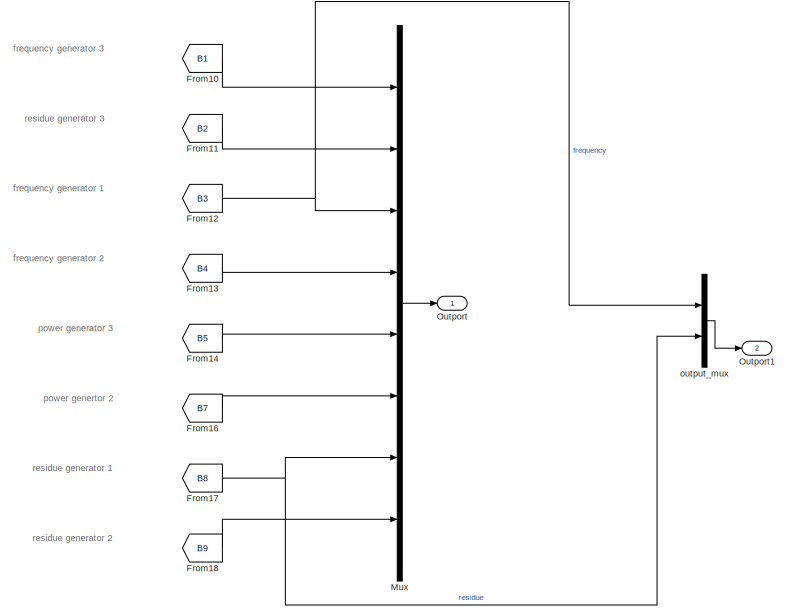
[diagram: root canvas - part 1/5, top right region]
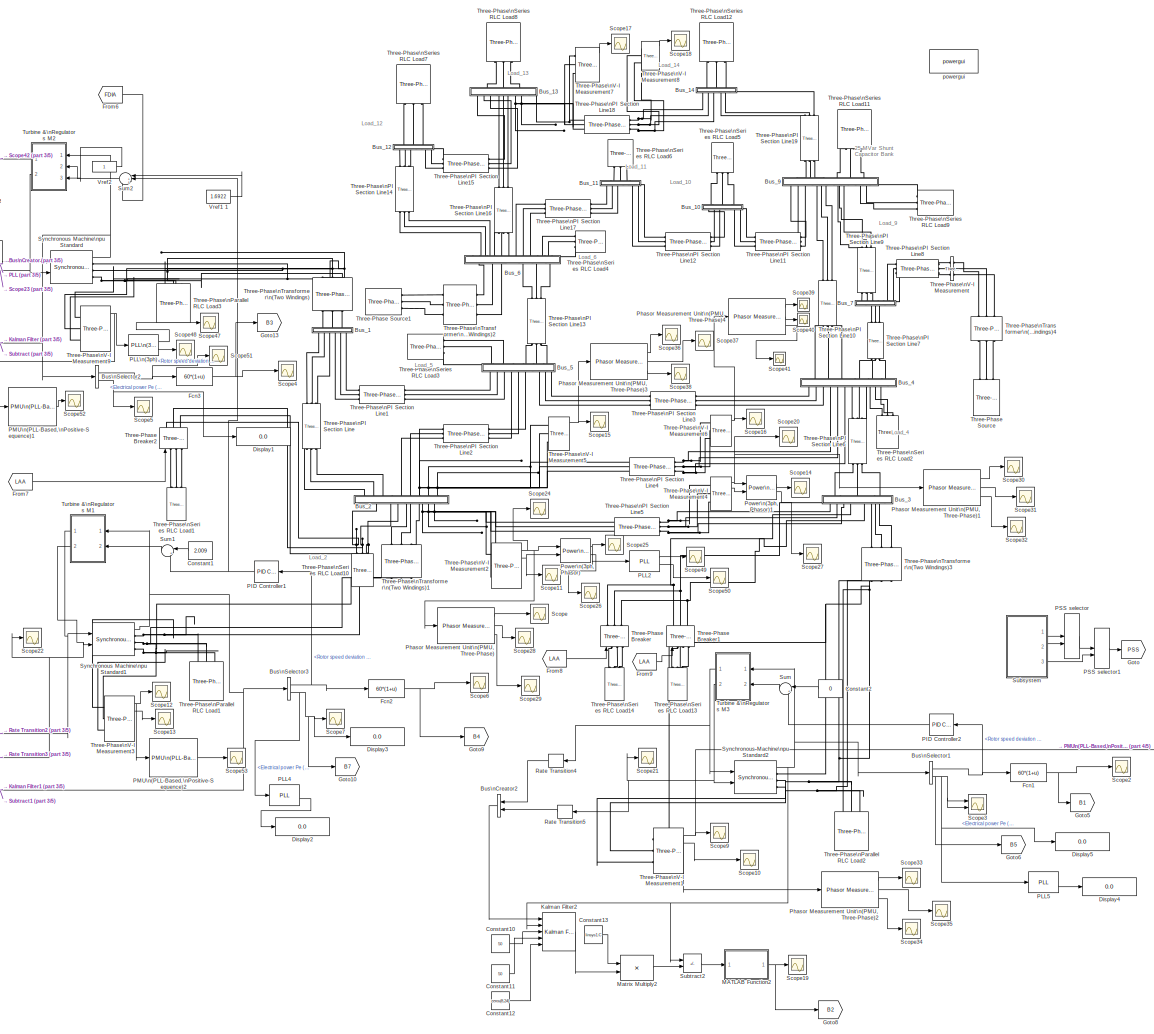
[diagram: root canvas - part 2/5, central region]
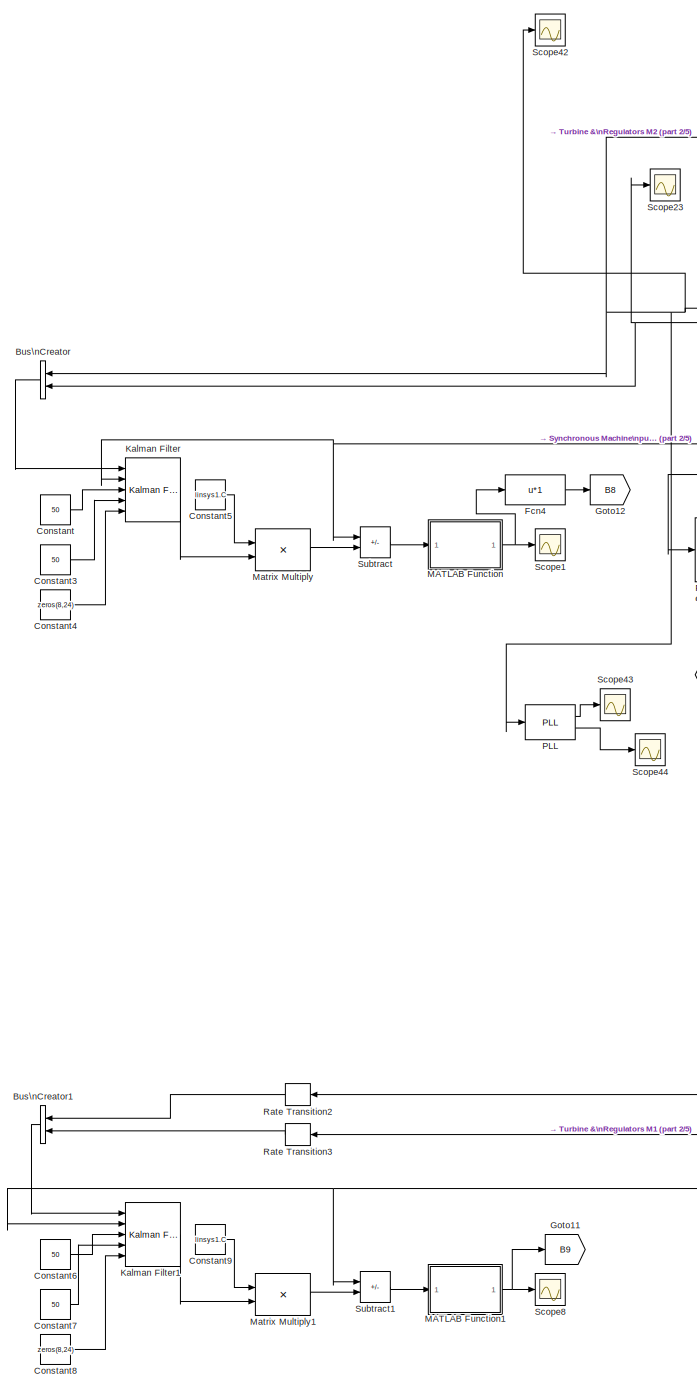
[diagram: root canvas - part 3/5, middle left region]
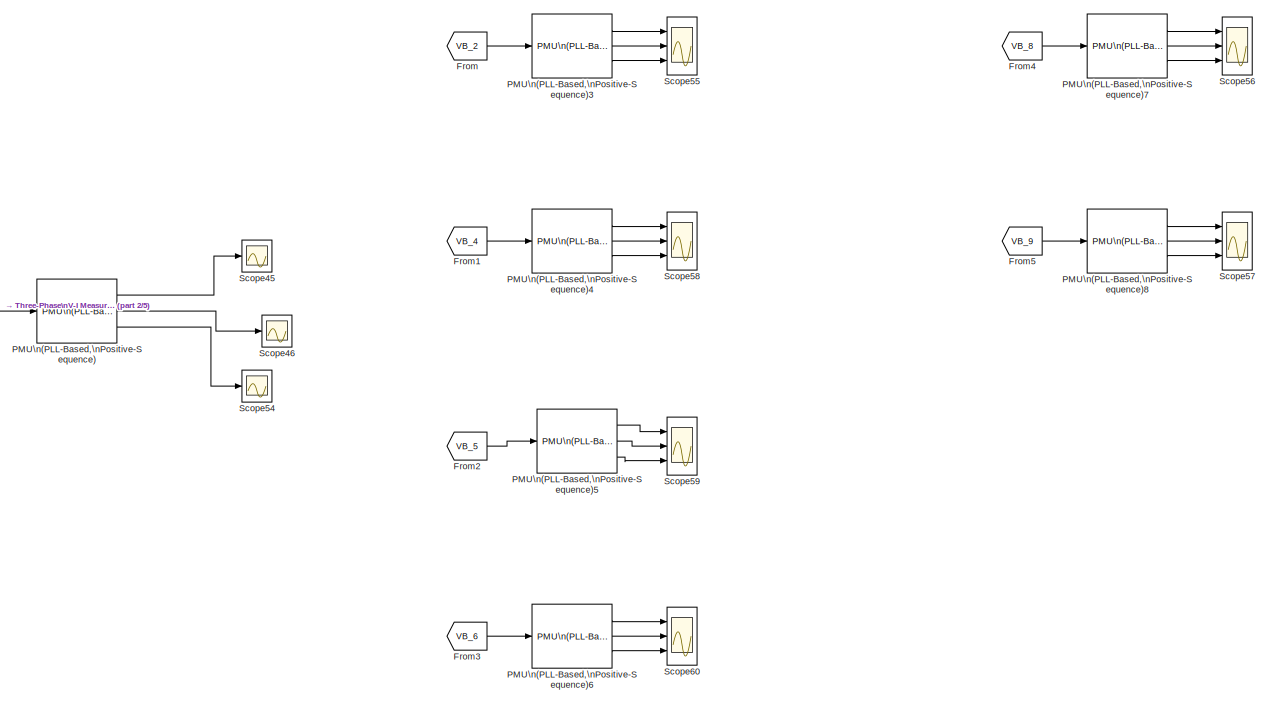
[diagram: root canvas - part 4/5, bottom right region]
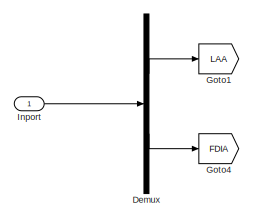
[diagram: root canvas - part 5/5, middle left region]
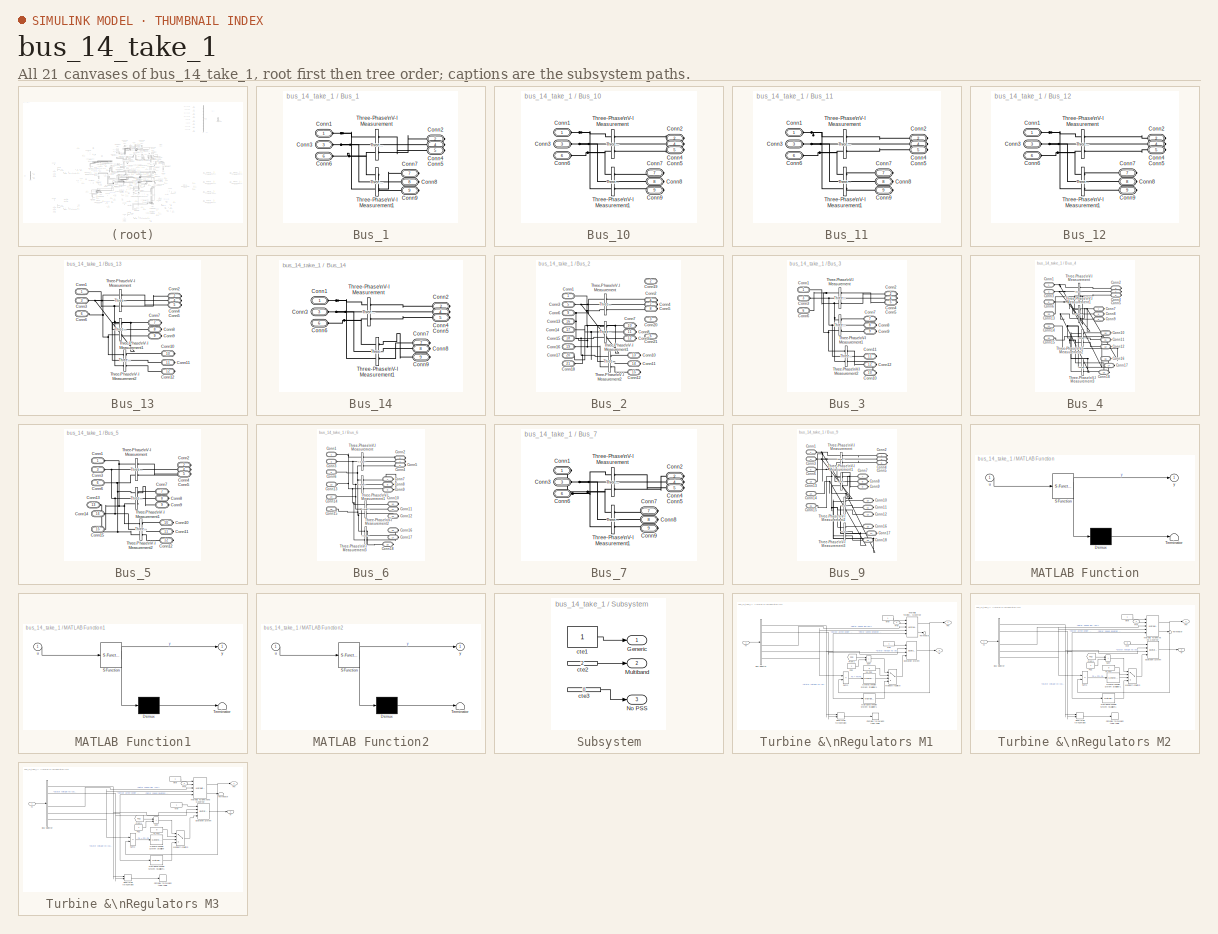
[diagram: thumbnail index - all 21 canvases of the model, root first then tree order]
MODEL bus_14_take_1
KIND model
BLOCK [BusCreator] Bus\nCreator
  DisplayOption = bar
  InheritFromInputs = on
  Inputs = 2
  NameLocation = top
  Ports = [2, 1]
  SID = 6
BLOCK [BusCreator] Bus\nCreator1
  DisplayOption = bar
  InheritFromInputs = on
  Inputs = 2
  NameLocation = top
  Ports = [2, 1]
  SID = 7
BLOCK [BusCreator] Bus\nCreator2
  DisplayOption = bar
  InheritFromInputs = on
  Inputs = 2
  NameLocation = top
  Ports = [2, 1]
  SID = 8
BLOCK [BusSelector] Bus\nSelector1
  OutputSignals = Mechanical.Rotor speed deviation  dw (pu),Mechanical.Electrical power  Pe (pu)
  Ports = [1, 2]
  SID = 9
BLOCK [BusSelector] Bus\nSelector2
  OutputSignals = Mechanical.Rotor speed deviation  dw (pu),Mechanical.Electrical power  Pe (pu)
  Ports = [1, 2]
  SID = 10
BLOCK [BusSelector] Bus\nSelector3
  OutputSignals = Mechanical.Rotor speed deviation  dw (pu),Mechanical.Electrical power  Pe (pu)
  Ports = [1, 2]
  SID = 11
BLOCK [SubSystem] Bus_1
  NameLocation = left
  Ports = [0, 0, 0, 0, 0, 3, 6]
  RequestExecContextInheritance = off
  SID = 12
BLOCK [PMIOPort] Bus_1/Conn1
  SID = 15
  Side = Left
BLOCK [PMIOPort] Bus_1/Conn2
  Port = 2
  SID = 16
  Side = Right
BLOCK [PMIOPort] Bus_1/Conn3
  Port = 3
  SID = 17
  Side = Left
BLOCK [PMIOPort] Bus_1/Conn4
  Port = 4
  SID = 18
  Side = Right
BLOCK [PMIOPort] Bus_1/Conn5
  Port = 5
  SID = 19
  Side = Right
BLOCK [PMIOPort] Bus_1/Conn6
  Port = 6
  SID = 20
  Side = Left
BLOCK [PMIOPort] Bus_1/Conn7
  Port = 7
  SID = 21
  Side = Right
BLOCK [PMIOPort] Bus_1/Conn8
  Port = 8
  SID = 22
  Side = Right
BLOCK [PMIOPort] Bus_1/Conn9
  Port = 9
  SID = 23
  Side = Right
BLOCK [Reference] Bus_1/Three-Phase\nV-I Measurement  REF=spsThreePhaseVIMeasurementLib/Three-Phase\nV-I Measurement
  CurrentMeasurement = yes
  Ipu = off
  LabelI = IB_1
  LabelV = VB_1
  OutputType = Complex
  PSBequivalent = 0
  Pbase = 100e6
  PhasorSimulation = off
  Ports = [0, 0, 0, 0, 0, 3, 3]
  RTWMemSecDataConstants = Inherit from model
  RTWMemSecDataInternal = Inherit from model
  RTWMemSecDataParameters = Inherit from model
  RTWMemSecFuncExecute = Inherit from model
  RTWMemSecFuncInitTerm = Inherit from model
  SID = 13
  SetLabelI = on
  SetLabelV = on
  SourceBlock = spsThreePhaseVIMeasurementLib/Three-Phase\nV-I Measurement
  SourceProductBaseCode = PS
  SourceType = Three-Phase VI Measurement
  Vbase = 500e3
  VoltageMeasurement = phase-to-phase
  Vpu = off
  VpuLL = off
BLOCK [Reference] Bus_1/Three-Phase\nV-I Measurement1  REF=spsThreePhaseVIMeasurementLib/Three-Phase\nV-I Measurement
  CurrentMeasurement = yes
  Ipu = off
  LabelI = I_B1
  LabelV = V_B1
  OutputType = Complex
  PSBequivalent = 0
  Pbase = 100e6
  PhasorSimulation = off
  Ports = [0, 0, 0, 0, 0, 3, 3]
  RTWMemSecDataConstants = Inherit from model
  RTWMemSecDataInternal = Inherit from model
  RTWMemSecDataParameters = Inherit from model
  RTWMemSecFuncExecute = Inherit from model
  RTWMemSecFuncInitTerm = Inherit from model
  SID = 14
  SetLabelI = on
  SetLabelV = on
  SourceBlock = spsThreePhaseVIMeasurementLib/Three-Phase\nV-I Measurement
  SourceProductBaseCode = PS
  SourceType = Three-Phase VI Measurement
  Vbase = 500e3
  VoltageMeasurement = phase-to-phase
  Vpu = off
  VpuLL = off
BLOCK [SubSystem] Bus_10
  NameLocation = left
  Ports = [0, 0, 0, 0, 0, 3, 6]
  RequestExecContextInheritance = off
  SID = 24
BLOCK [PMIOPort] Bus_10/Conn1
  SID = 27
  Side = Left
BLOCK [PMIOPort] Bus_10/Conn2
  Port = 2
  SID = 28
  Side = Right
BLOCK [PMIOPort] Bus_10/Conn3
  Port = 3
  SID = 29
  Side = Left
BLOCK [PMIOPort] Bus_10/Conn4
  Port = 4
  SID = 30
  Side = Right
BLOCK [PMIOPort] Bus_10/Conn5
  Port = 5
  SID = 31
  Side = Right
BLOCK [PMIOPort] Bus_10/Conn6
  Port = 6
  SID = 32
  Side = Left
BLOCK [PMIOPort] Bus_10/Conn7
  Port = 7
  SID = 33
  Side = Right
BLOCK [PMIOPort] Bus_10/Conn8
  Port = 8
  SID = 34
  Side = Right
BLOCK [PMIOPort] Bus_10/Conn9
  Port = 9
  SID = 35
  Side = Right
BLOCK [Reference] Bus_10/Three-Phase\nV-I Measurement  REF=spsThreePhaseVIMeasurementLib/Three-Phase\nV-I Measurement
  CurrentMeasurement = yes
  Ipu = off
  LabelI = IB_10
  LabelV = VB_10
  OutputType = Complex
  PSBequivalent = 0
  Pbase = 100e6
  PhasorSimulation = off
  Ports = [0, 0, 0, 0, 0, 3, 3]
  RTWMemSecDataConstants = Inherit from model
  RTWMemSecDataInternal = Inherit from model
  RTWMemSecDataParameters = Inherit from model
  RTWMemSecFuncExecute = Inherit from model
  RTWMemSecFuncInitTerm = Inherit from model
  SID = 25
  SetLabelI = on
  SetLabelV = on
  SourceBlock = spsThreePhaseVIMeasurementLib/Three-Phase\nV-I Measurement
  SourceProductBaseCode = PS
  SourceType = Three-Phase VI Measurement
  Vbase = 500e3
  VoltageMeasurement = phase-to-phase
  Vpu = off
  VpuLL = off
BLOCK [Reference] Bus_10/Three-Phase\nV-I Measurement1  REF=spsThreePhaseVIMeasurementLib/Three-Phase\nV-I Measurement
  CurrentMeasurement = yes
  Ipu = off
  LabelI = I_B10
  LabelV = V_B10
  OutputType = Complex
  PSBequivalent = 0
  Pbase = 100e6
  PhasorSimulation = off
  Ports = [0, 0, 0, 0, 0, 3, 3]
  RTWMemSecDataConstants = Inherit from model
  RTWMemSecDataInternal = Inherit from model
  RTWMemSecDataParameters = Inherit from model
  RTWMemSecFuncExecute = Inherit from model
  RTWMemSecFuncInitTerm = Inherit from model
  SID = 26
  SetLabelI = on
  SetLabelV = on
  SourceBlock = spsThreePhaseVIMeasurementLib/Three-Phase\nV-I Measurement
  SourceProductBaseCode = PS
  SourceType = Three-Phase VI Measurement
  Vbase = 500e3
  VoltageMeasurement = phase-to-phase
  Vpu = off
  VpuLL = off
BLOCK [SubSystem] Bus_11
  NameLocation = left
  Ports = [0, 0, 0, 0, 0, 3, 6]
  RequestExecContextInheritance = off
  SID = 36
BLOCK [PMIOPort] Bus_11/Conn1
  SID = 39
  Side = Left
BLOCK [PMIOPort] Bus_11/Conn2
  Port = 2
  SID = 40
  Side = Right
BLOCK [PMIOPort] Bus_11/Conn3
  Port = 3
  SID = 41
  Side = Left
BLOCK [PMIOPort] Bus_11/Conn4
  Port = 4
  SID = 42
  Side = Right
BLOCK [PMIOPort] Bus_11/Conn5
  Port = 5
  SID = 43
  Side = Right
BLOCK [PMIOPort] Bus_11/Conn6
  Port = 6
  SID = 44
  Side = Left
BLOCK [PMIOPort] Bus_11/Conn7
  Port = 7
  SID = 45
  Side = Right
BLOCK [PMIOPort] Bus_11/Conn8
  Port = 8
  SID = 46
  Side = Right
BLOCK [PMIOPort] Bus_11/Conn9
  Port = 9
  SID = 47
  Side = Right
BLOCK [Reference] Bus_11/Three-Phase\nV-I Measurement  REF=spsThreePhaseVIMeasurementLib/Three-Phase\nV-I Measurement
  CurrentMeasurement = yes
  Ipu = off
  LabelI = IB_11
  LabelV = VB_11
  OutputType = Complex
  PSBequivalent = 0
  Pbase = 100e6
  PhasorSimulation = off
  Ports = [0, 0, 0, 0, 0, 3, 3]
  RTWMemSecDataConstants = Inherit from model
  RTWMemSecDataInternal = Inherit from model
  RTWMemSecDataParameters = Inherit from model
  RTWMemSecFuncExecute = Inherit from model
  RTWMemSecFuncInitTerm = Inherit from model
  SID = 37
  SetLabelI = on
  SetLabelV = on
  SourceBlock = spsThreePhaseVIMeasurementLib/Three-Phase\nV-I Measurement
  SourceProductBaseCode = PS
  SourceType = Three-Phase VI Measurement
  Vbase = 500e3
  VoltageMeasurement = phase-to-phase
  Vpu = off
  VpuLL = off
BLOCK [Reference] Bus_11/Three-Phase\nV-I Measurement1  REF=spsThreePhaseVIMeasurementLib/Three-Phase\nV-I Measurement
  CurrentMeasurement = yes
  Ipu = off
  LabelI = I_B11
  LabelV = V_B11
  OutputType = Complex
  PSBequivalent = 0
  Pbase = 100e6
  PhasorSimulation = off
  Ports = [0, 0, 0, 0, 0, 3, 3]
  RTWMemSecDataConstants = Inherit from model
  RTWMemSecDataInternal = Inherit from model
  RTWMemSecDataParameters = Inherit from model
  RTWMemSecFuncExecute = Inherit from model
  RTWMemSecFuncInitTerm = Inherit from model
  SID = 38
  SetLabelI = on
  SetLabelV = on
  SourceBlock = spsThreePhaseVIMeasurementLib/Three-Phase\nV-I Measurement
  SourceProductBaseCode = PS
  SourceType = Three-Phase VI Measurement
  Vbase = 500e3
  VoltageMeasurement = phase-to-phase
  Vpu = off
  VpuLL = off
BLOCK [SubSystem] Bus_12
  NameLocation = left
  Ports = [0, 0, 0, 0, 0, 3, 6]
  RequestExecContextInheritance = off
  SID = 48
BLOCK [PMIOPort] Bus_12/Conn1
  SID = 51
  Side = Left
BLOCK [PMIOPort] Bus_12/Conn2
  Port = 2
  SID = 52
  Side = Right
BLOCK [PMIOPort] Bus_12/Conn3
  Port = 3
  SID = 53
  Side = Left
BLOCK [PMIOPort] Bus_12/Conn4
  Port = 4
  SID = 54
  Side = Right
BLOCK [PMIOPort] Bus_12/Conn5
  Port = 5
  SID = 55
  Side = Right
BLOCK [PMIOPort] Bus_12/Conn6
  Port = 6
  SID = 56
  Side = Left
BLOCK [PMIOPort] Bus_12/Conn7
  Port = 7
  SID = 57
  Side = Right
BLOCK [PMIOPort] Bus_12/Conn8
  Port = 8
  SID = 58
  Side = Right
BLOCK [PMIOPort] Bus_12/Conn9
  Port = 9
  SID = 59
  Side = Right
BLOCK [Reference] Bus_12/Three-Phase\nV-I Measurement  REF=spsThreePhaseVIMeasurementLib/Three-Phase\nV-I Measurement
  CurrentMeasurement = yes
  Ipu = off
  LabelI = IB_12
  LabelV = VB_12
  OutputType = Complex
  PSBequivalent = 0
  Pbase = 100e6
  PhasorSimulation = off
  Ports = [0, 0, 0, 0, 0, 3, 3]
  RTWMemSecDataConstants = Inherit from model
  RTWMemSecDataInternal = Inherit from model
  RTWMemSecDataParameters = Inherit from model
  RTWMemSecFuncExecute = Inherit from model
  RTWMemSecFuncInitTerm = Inherit from model
  SID = 49
  SetLabelI = on
  SetLabelV = on
  SourceBlock = spsThreePhaseVIMeasurementLib/Three-Phase\nV-I Measurement
  SourceProductBaseCode = PS
  SourceType = Three-Phase VI Measurement
  Vbase = 500e3
  VoltageMeasurement = phase-to-phase
  Vpu = off
  VpuLL = off
BLOCK [Reference] Bus_12/Three-Phase\nV-I Measurement1  REF=spsThreePhaseVIMeasurementLib/Three-Phase\nV-I Measurement
  CurrentMeasurement = yes
  Ipu = off
  LabelI = I_B12
  LabelV = V_B12
  OutputType = Complex
  PSBequivalent = 0
  Pbase = 100e6
  PhasorSimulation = off
  Ports = [0, 0, 0, 0, 0, 3, 3]
  RTWMemSecDataConstants = Inherit from model
  RTWMemSecDataInternal = Inherit from model
  RTWMemSecDataParameters = Inherit from model
  RTWMemSecFuncExecute = Inherit from model
  RTWMemSecFuncInitTerm = Inherit from model
  SID = 50
  SetLabelI = on
  SetLabelV = on
  SourceBlock = spsThreePhaseVIMeasurementLib/Three-Phase\nV-I Measurement
  SourceProductBaseCode = PS
  SourceType = Three-Phase VI Measurement
  Vbase = 500e3
  VoltageMeasurement = phase-to-phase
  Vpu = off
  VpuLL = off
BLOCK [SubSystem] Bus_13
  NameLocation = left
  Ports = [0, 0, 0, 0, 0, 3, 9]
  RequestExecContextInheritance = off
  SID = 60
BLOCK [PMIOPort] Bus_13/Conn1
  SID = 64
  Side = Left
BLOCK [PMIOPort] Bus_13/Conn10
  Port = 10
  SID = 73
  Side = Right
BLOCK [PMIOPort] Bus_13/Conn11
  Port = 11
  SID = 74
  Side = Right
BLOCK [PMIOPort] Bus_13/Conn12
  Port = 12
  SID = 75
  Side = Right
BLOCK [PMIOPort] Bus_13/Conn2
  Port = 2
  SID = 65
  Side = Right
BLOCK [PMIOPort] Bus_13/Conn3
  Port = 3
  SID = 66
  Side = Left
BLOCK [PMIOPort] Bus_13/Conn4
  Port = 4
  SID = 67
  Side = Right
BLOCK [PMIOPort] Bus_13/Conn5
  Port = 5
  SID = 68
  Side = Right
BLOCK [PMIOPort] Bus_13/Conn6
  Port = 6
  SID = 69
  Side = Left
BLOCK [PMIOPort] Bus_13/Conn7
  Port = 7
  SID = 70
  Side = Right
BLOCK [PMIOPort] Bus_13/Conn8
  Port = 8
  SID = 71
  Side = Right
BLOCK [PMIOPort] Bus_13/Conn9
  Port = 9
  SID = 72
  Side = Right
BLOCK [Reference] Bus_13/Three-Phase\nV-I Measurement  REF=spsThreePhaseVIMeasurementLib/Three-Phase\nV-I Measurement
  CurrentMeasurement = yes
  Ipu = off
  LabelI = IB_13
  LabelV = VB_13
  OutputType = Complex
  PSBequivalent = 0
  Pbase = 100e6
  PhasorSimulation = off
  Ports = [0, 0, 0, 0, 0, 3, 3]
  RTWMemSecDataConstants = Inherit from model
  RTWMemSecDataInternal = Inherit from model
  RTWMemSecDataParameters = Inherit from model
  RTWMemSecFuncExecute = Inherit from model
  RTWMemSecFuncInitTerm = Inherit from model
  SID = 61
  SetLabelI = on
  SetLabelV = on
  SourceBlock = spsThreePhaseVIMeasurementLib/Three-Phase\nV-I Measurement
  SourceProductBaseCode = PS
  SourceType = Three-Phase VI Measurement
  Vbase = 500e3
  VoltageMeasurement = phase-to-phase
  Vpu = off
  VpuLL = off
BLOCK [Reference] Bus_13/Three-Phase\nV-I Measurement1  REF=spsThreePhaseVIMeasurementLib/Three-Phase\nV-I Measurement
  CurrentMeasurement = yes
  Ipu = off
  LabelI = I_B13_13
  LabelV = V_B13_13
  OutputType = Complex
  PSBequivalent = 0
  Pbase = 100e6
  PhasorSimulation = off
  Ports = [0, 0, 0, 0, 0, 3, 3]
  RTWMemSecDataConstants = Inherit from model
  RTWMemSecDataInternal = Inherit from model
  RTWMemSecDataParameters = Inherit from model
  RTWMemSecFuncExecute = Inherit from model
  RTWMemSecFuncInitTerm = Inherit from model
  SID = 62
  SetLabelI = on
  SetLabelV = on
  SourceBlock = spsThreePhaseVIMeasurementLib/Three-Phase\nV-I Measurement
  SourceProductBaseCode = PS
  SourceType = Three-Phase VI Measurement
  Vbase = 500e3
  VoltageMeasurement = phase-to-phase
  Vpu = off
  VpuLL = off
BLOCK [Reference] Bus_13/Three-Phase\nV-I Measurement2  REF=spsThreePhaseVIMeasurementLib/Three-Phase\nV-I Measurement
  CurrentMeasurement = yes
  Ipu = off
  LabelI = I_B13
  LabelV = V_B13
  OutputType = Complex
  PSBequivalent = 0
  Pbase = 100e6
  PhasorSimulation = off
  Ports = [0, 0, 0, 0, 0, 3, 3]
  RTWMemSecDataConstants = Inherit from model
  RTWMemSecDataInternal = Inherit from model
  RTWMemSecDataParameters = Inherit from model
  RTWMemSecFuncExecute = Inherit from model
  RTWMemSecFuncInitTerm = Inherit from model
  SID = 63
  SetLabelI = on
  SetLabelV = on
  SourceBlock = spsThreePhaseVIMeasurementLib/Three-Phase\nV-I Measurement
  SourceProductBaseCode = PS
  SourceType = Three-Phase VI Measurement
  Vbase = 500e3
  VoltageMeasurement = phase-to-phase
  Vpu = off
  VpuLL = off
BLOCK [SubSystem] Bus_14
  NameLocation = left
  Ports = [0, 0, 0, 0, 0, 3, 6]
  RequestExecContextInheritance = off
  SID = 76
BLOCK [PMIOPort] Bus_14/Conn1
  SID = 79
  Side = Left
BLOCK [PMIOPort] Bus_14/Conn2
  Port = 2
  SID = 80
  Side = Right
BLOCK [PMIOPort] Bus_14/Conn3
  Port = 3
  SID = 81
  Side = Left
BLOCK [PMIOPort] Bus_14/Conn4
  Port = 4
  SID = 82
  Side = Right
BLOCK [PMIOPort] Bus_14/Conn5
  Port = 5
  SID = 83
  Side = Right
BLOCK [PMIOPort] Bus_14/Conn6
  Port = 6
  SID = 84
  Side = Left
BLOCK [PMIOPort] Bus_14/Conn7
  Port = 7
  SID = 85
  Side = Right
BLOCK [PMIOPort] Bus_14/Conn8
  Port = 8
  SID = 86
  Side = Right
BLOCK [PMIOPort] Bus_14/Conn9
  Port = 9
  SID = 87
  Side = Right
BLOCK [Reference] Bus_14/Three-Phase\nV-I Measurement  REF=spsThreePhaseVIMeasurementLib/Three-Phase\nV-I Measurement
  CurrentMeasurement = yes
  Ipu = off
  LabelI = IB_14
  LabelV = VB_14
  OutputType = Complex
  PSBequivalent = 0
  Pbase = 100e6
  PhasorSimulation = off
  Ports = [0, 0, 0, 0, 0, 3, 3]
  RTWMemSecDataConstants = Inherit from model
  RTWMemSecDataInternal = Inherit from model
  RTWMemSecDataParameters = Inherit from model
  RTWMemSecFuncExecute = Inherit from model
  RTWMemSecFuncInitTerm = Inherit from model
  SID = 77
  SetLabelI = on
  SetLabelV = on
  SourceBlock = spsThreePhaseVIMeasurementLib/Three-Phase\nV-I Measurement
  SourceProductBaseCode = PS
  SourceType = Three-Phase VI Measurement
  Vbase = 500e3
  VoltageMeasurement = phase-to-phase
  Vpu = off
  VpuLL = off
BLOCK [Reference] Bus_14/Three-Phase\nV-I Measurement1  REF=spsThreePhaseVIMeasurementLib/Three-Phase\nV-I Measurement
  CurrentMeasurement = yes
  Ipu = off
  LabelI = I_B14
  LabelV = V_B14
  OutputType = Complex
  PSBequivalent = 0
  Pbase = 100e6
  PhasorSimulation = off
  Ports = [0, 0, 0, 0, 0, 3, 3]
  RTWMemSecDataConstants = Inherit from model
  RTWMemSecDataInternal = Inherit from model
  RTWMemSecDataParameters = Inherit from model
  RTWMemSecFuncExecute = Inherit from model
  RTWMemSecFuncInitTerm = Inherit from model
  SID = 78
  SetLabelI = on
  SetLabelV = on
  SourceBlock = spsThreePhaseVIMeasurementLib/Three-Phase\nV-I Measurement
  SourceProductBaseCode = PS
  SourceType = Three-Phase VI Measurement
  Vbase = 500e3
  VoltageMeasurement = phase-to-phase
  Vpu = off
  VpuLL = off
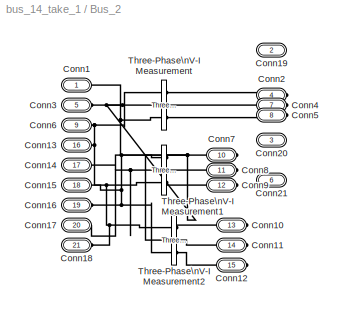
BLOCK [SubSystem] Bus_2
  NameLocation = left
  Ports = [0, 0, 0, 0, 0, 9, 12]
  RequestExecContextInheritance = off
  SID = 88
BLOCK [PMIOPort] Bus_2/Conn1
  SID = 92
  Side = Left
BLOCK [PMIOPort] Bus_2/Conn10
  Port = 13
  SID = 104
  Side = Right
BLOCK [PMIOPort] Bus_2/Conn11
  Port = 14
  SID = 105
  Side = Right
BLOCK [PMIOPort] Bus_2/Conn12
  Port = 15
  SID = 106
  Side = Right
BLOCK [PMIOPort] Bus_2/Conn13
  Port = 16
  SID = 107
  Side = Left
BLOCK [PMIOPort] Bus_2/Conn14
  Port = 17
  SID = 108
  Side = Left
BLOCK [PMIOPort] Bus_2/Conn15
  Port = 18
  SID = 109
  Side = Left
BLOCK [PMIOPort] Bus_2/Conn16
  Port = 19
  SID = 110
  Side = Left
BLOCK [PMIOPort] Bus_2/Conn17
  Port = 20
  SID = 111
  Side = Left
BLOCK [PMIOPort] Bus_2/Conn18
  Port = 21
  SID = 112
  Side = Left
BLOCK [PMIOPort] Bus_2/Conn19
  Port = 2
  SID = 93
  Side = Right
BLOCK [PMIOPort] Bus_2/Conn2
  Port = 4
  SID = 95
  Side = Right
BLOCK [PMIOPort] Bus_2/Conn20
  Port = 3
  SID = 94
  Side = Right
BLOCK [PMIOPort] Bus_2/Conn21
  Port = 6
  SID = 97
  Side = Right
BLOCK [PMIOPort] Bus_2/Conn3
  Port = 5
  SID = 96
  Side = Left
BLOCK [PMIOPort] Bus_2/Conn4
  Port = 7
  SID = 98
  Side = Right
BLOCK [PMIOPort] Bus_2/Conn5
  Port = 8
  SID = 99
  Side = Right
BLOCK [PMIOPort] Bus_2/Conn6
  Port = 9
  SID = 100
  Side = Left
BLOCK [PMIOPort] Bus_2/Conn7
  Port = 10
  SID = 101
  Side = Right
BLOCK [PMIOPort] Bus_2/Conn8
  Port = 11
  SID = 102
  Side = Right
BLOCK [PMIOPort] Bus_2/Conn9
  Port = 12
  SID = 103
  Side = Right
BLOCK [Reference] Bus_2/Three-Phase\nV-I Measurement  REF=spsThreePhaseVIMeasurementLib/Three-Phase\nV-I Measurement
  CurrentMeasurement = yes
  Ipu = off
  LabelI = IB_2
  LabelV = VB_2
  OutputType = Complex
  PSBequivalent = 0
  Pbase = 100e6
  PhasorSimulation = off
  Ports = [0, 0, 0, 0, 0, 3, 3]
  RTWMemSecDataConstants = Inherit from model
  RTWMemSecDataInternal = Inherit from model
  RTWMemSecDataParameters = Inherit from model
  RTWMemSecFuncExecute = Inherit from model
  RTWMemSecFuncInitTerm = Inherit from model
  SID = 89
  SetLabelI = on
  SetLabelV = on
  SourceBlock = spsThreePhaseVIMeasurementLib/Three-Phase\nV-I Measurement
  SourceProductBaseCode = PS
  SourceType = Three-Phase VI Measurement
  Vbase = 500e3
  VoltageMeasurement = phase-to-phase
  Vpu = off
  VpuLL = off
BLOCK [Reference] Bus_2/Three-Phase\nV-I Measurement1  REF=spsThreePhaseVIMeasurementLib/Three-Phase\nV-I Measurement
  CurrentMeasurement = yes
  Ipu = off
  LabelI = I_B22
  LabelV = V_B22
  OutputType = Complex
  PSBequivalent = 0
  Pbase = 100e6
  PhasorSimulation = off
  Ports = [0, 0, 0, 0, 0, 3, 3]
  RTWMemSecDataConstants = Inherit from model
  RTWMemSecDataInternal = Inherit from model
  RTWMemSecDataParameters = Inherit from model
  RTWMemSecFuncExecute = Inherit from model
  RTWMemSecFuncInitTerm = Inherit from model
  SID = 90
  SetLabelI = on
  SetLabelV = on
  SourceBlock = spsThreePhaseVIMeasurementLib/Three-Phase\nV-I Measurement
  SourceProductBaseCode = PS
  SourceType = Three-Phase VI Measurement
  Vbase = 500e3
  VoltageMeasurement = phase-to-phase
  Vpu = off
  VpuLL = off
BLOCK [Reference] Bus_2/Three-Phase\nV-I Measurement2  REF=spsThreePhaseVIMeasurementLib/Three-Phase\nV-I Measurement
  CurrentMeasurement = yes
  Ipu = off
  LabelI = I_B2
  LabelV = V_B2
  OutputType = Complex
  PSBequivalent = 0
  Pbase = 100e6
  PhasorSimulation = off
  Ports = [0, 0, 0, 0, 0, 3, 3]
  RTWMemSecDataConstants = Inherit from model
  RTWMemSecDataInternal = Inherit from model
  RTWMemSecDataParameters = Inherit from model
  RTWMemSecFuncExecute = Inherit from model
  RTWMemSecFuncInitTerm = Inherit from model
  SID = 91
  SetLabelI = on
  SetLabelV = on
  SourceBlock = spsThreePhaseVIMeasurementLib/Three-Phase\nV-I Measurement
  SourceProductBaseCode = PS
  SourceType = Three-Phase VI Measurement
  Vbase = 500e3
  VoltageMeasurement = phase-to-phase
  Vpu = off
  VpuLL = off
BLOCK [SubSystem] Bus_3
  NameLocation = left
  Ports = [0, 0, 0, 0, 0, 3, 9]
  RequestExecContextInheritance = off
  SID = 113
BLOCK [PMIOPort] Bus_3/Conn1
  SID = 117
  Side = Left
BLOCK [PMIOPort] Bus_3/Conn10
  Port = 10
  SID = 126
  Side = Right
BLOCK [PMIOPort] Bus_3/Conn11
  Port = 11
  SID = 127
  Side = Right
BLOCK [PMIOPort] Bus_3/Conn12
  Port = 12
  SID = 128
  Side = Right
BLOCK [PMIOPort] Bus_3/Conn2
  Port = 2
  SID = 118
  Side = Right
BLOCK [PMIOPort] Bus_3/Conn3
  Port = 3
  SID = 119
  Side = Left
BLOCK [PMIOPort] Bus_3/Conn4
  Port = 4
  SID = 120
  Side = Right
BLOCK [PMIOPort] Bus_3/Conn5
  Port = 5
  SID = 121
  Side = Right
BLOCK [PMIOPort] Bus_3/Conn6
  Port = 6
  SID = 122
  Side = Left
BLOCK [PMIOPort] Bus_3/Conn7
  Port = 7
  SID = 123
  Side = Right
BLOCK [PMIOPort] Bus_3/Conn8
  Port = 8
  SID = 124
  Side = Right
BLOCK [PMIOPort] Bus_3/Conn9
  Port = 9
  SID = 125
  Side = Right
BLOCK [Reference] Bus_3/Three-Phase\nV-I Measurement  REF=spsThreePhaseVIMeasurementLib/Three-Phase\nV-I Measurement
  CurrentMeasurement = yes
  Ipu = off
  LabelI = IB_3
  LabelV = VB_3
  OutputType = Complex
  PSBequivalent = 0
  Pbase = 100e6
  PhasorSimulation = off
  Ports = [0, 0, 0, 0, 0, 3, 3]
  RTWMemSecDataConstants = Inherit from model
  RTWMemSecDataInternal = Inherit from model
  RTWMemSecDataParameters = Inherit from model
  RTWMemSecFuncExecute = Inherit from model
  RTWMemSecFuncInitTerm = Inherit from model
  SID = 114
  SetLabelI = on
  SetLabelV = on
  SourceBlock = spsThreePhaseVIMeasurementLib/Three-Phase\nV-I Measurement
  SourceProductBaseCode = PS
  SourceType = Three-Phase VI Measurement
  Vbase = 500e3
  VoltageMeasurement = phase-to-phase
  Vpu = off
  VpuLL = off
BLOCK [Reference] Bus_3/Three-Phase\nV-I Measurement1  REF=spsThreePhaseVIMeasurementLib/Three-Phase\nV-I Measurement
  CurrentMeasurement = yes
  Ipu = off
  LabelI = I_B33
  LabelV = V_B33
  OutputType = Complex
  PSBequivalent = 0
  Pbase = 100e6
  PhasorSimulation = off
  Ports = [0, 0, 0, 0, 0, 3, 3]
  RTWMemSecDataConstants = Inherit from model
  RTWMemSecDataInternal = Inherit from model
  RTWMemSecDataParameters = Inherit from model
  RTWMemSecFuncExecute = Inherit from model
  RTWMemSecFuncInitTerm = Inherit from model
  SID = 115
  SetLabelI = on
  SetLabelV = on
  SourceBlock = spsThreePhaseVIMeasurementLib/Three-Phase\nV-I Measurement
  SourceProductBaseCode = PS
  SourceType = Three-Phase VI Measurement
  Vbase = 500e3
  VoltageMeasurement = phase-to-phase
  Vpu = off
  VpuLL = off
BLOCK [Reference] Bus_3/Three-Phase\nV-I Measurement2  REF=spsThreePhaseVIMeasurementLib/Three-Phase\nV-I Measurement
  CurrentMeasurement = yes
  Ipu = off
  LabelI = I_B3
  LabelV = V_B3
  OutputType = Complex
  PSBequivalent = 0
  Pbase = 100e6
  PhasorSimulation = off
  Ports = [0, 0, 0, 0, 0, 3, 3]
  RTWMemSecDataConstants = Inherit from model
  RTWMemSecDataInternal = Inherit from model
  RTWMemSecDataParameters = Inherit from model
  RTWMemSecFuncExecute = Inherit from model
  RTWMemSecFuncInitTerm = Inherit from model
  SID = 116
  SetLabelI = on
  SetLabelV = on
  SourceBlock = spsThreePhaseVIMeasurementLib/Three-Phase\nV-I Measurement
  SourceProductBaseCode = PS
  SourceType = Three-Phase VI Measurement
  Vbase = 500e3
  VoltageMeasurement = phase-to-phase
  Vpu = off
  VpuLL = off
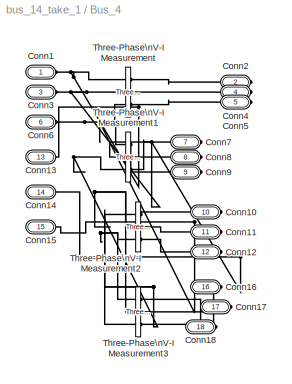
BLOCK [SubSystem] Bus_4
  NameLocation = left
  Ports = [0, 0, 0, 0, 0, 6, 12]
  RequestExecContextInheritance = off
  SID = 129
BLOCK [PMIOPort] Bus_4/Conn1
  SID = 134
  Side = Left
BLOCK [PMIOPort] Bus_4/Conn10
  Port = 10
  SID = 143
  Side = Right
BLOCK [PMIOPort] Bus_4/Conn11
  Port = 11
  SID = 144
  Side = Right
BLOCK [PMIOPort] Bus_4/Conn12
  Port = 12
  SID = 145
  Side = Right
BLOCK [PMIOPort] Bus_4/Conn13
  Port = 13
  SID = 146
  Side = Left
BLOCK [PMIOPort] Bus_4/Conn14
  Port = 14
  SID = 147
  Side = Left
BLOCK [PMIOPort] Bus_4/Conn15
  Port = 15
  SID = 148
  Side = Left
BLOCK [PMIOPort] Bus_4/Conn16
  Port = 16
  SID = 149
  Side = Right
BLOCK [PMIOPort] Bus_4/Conn17
  Port = 17
  SID = 150
  Side = Right
BLOCK [PMIOPort] Bus_4/Conn18
  Port = 18
  SID = 151
  Side = Right
BLOCK [PMIOPort] Bus_4/Conn2
  Port = 2
  SID = 135
  Side = Right
BLOCK [PMIOPort] Bus_4/Conn3
  Port = 3
  SID = 136
  Side = Left
BLOCK [PMIOPort] Bus_4/Conn4
  Port = 4
  SID = 137
  Side = Right
BLOCK [PMIOPort] Bus_4/Conn5
  Port = 5
  SID = 138
  Side = Right
BLOCK [PMIOPort] Bus_4/Conn6
  Port = 6
  SID = 139
  Side = Left
BLOCK [PMIOPort] Bus_4/Conn7
  Port = 7
  SID = 140
  Side = Right
BLOCK [PMIOPort] Bus_4/Conn8
  Port = 8
  SID = 141
  Side = Right
BLOCK [PMIOPort] Bus_4/Conn9
  Port = 9
  SID = 142
  Side = Right
BLOCK [Reference] Bus_4/Three-Phase\nV-I Measurement  REF=spsThreePhaseVIMeasurementLib/Three-Phase\nV-I Measurement
  CurrentMeasurement = yes
  Ipu = off
  LabelI = IB_4
  LabelV = VB_4
  OutputType = Complex
  PSBequivalent = 0
  Pbase = 100e6
  PhasorSimulation = off
  Ports = [0, 0, 0, 0, 0, 3, 3]
  RTWMemSecDataConstants = Inherit from model
  RTWMemSecDataInternal = Inherit from model
  RTWMemSecDataParameters = Inherit from model
  RTWMemSecFuncExecute = Inherit from model
  RTWMemSecFuncInitTerm = Inherit from model
  SID = 130
  SetLabelI = on
  SetLabelV = on
  SourceBlock = spsThreePhaseVIMeasurementLib/Three-Phase\nV-I Measurement
  SourceProductBaseCode = PS
  SourceType = Three-Phase VI Measurement
  Vbase = 500e3
  VoltageMeasurement = phase-to-phase
  Vpu = off
  VpuLL = off
BLOCK [Reference] Bus_4/Three-Phase\nV-I Measurement1  REF=spsThreePhaseVIMeasurementLib/Three-Phase\nV-I Measurement
  CurrentMeasurement = yes
  Ipu = off
  LabelI = I_B44
  LabelV = V_B44
  OutputType = Complex
  PSBequivalent = 0
  Pbase = 100e6
  PhasorSimulation = off
  Ports = [0, 0, 0, 0, 0, 3, 3]
  RTWMemSecDataConstants = Inherit from model
  RTWMemSecDataInternal = Inherit from model
  RTWMemSecDataParameters = Inherit from model
  RTWMemSecFuncExecute = Inherit from model
  RTWMemSecFuncInitTerm = Inherit from model
  SID = 131
  SetLabelI = on
  SetLabelV = on
  SourceBlock = spsThreePhaseVIMeasurementLib/Three-Phase\nV-I Measurement
  SourceProductBaseCode = PS
  SourceType = Three-Phase VI Measurement
  Vbase = 500e3
  VoltageMeasurement = phase-to-phase
  Vpu = off
  VpuLL = off
BLOCK [Reference] Bus_4/Three-Phase\nV-I Measurement2  REF=spsThreePhaseVIMeasurementLib/Three-Phase\nV-I Measurement
  CurrentMeasurement = yes
  Ipu = off
  LabelI = I_B4
  LabelV = V_B4
  OutputType = Complex
  PSBequivalent = 0
  Pbase = 100e6
  PhasorSimulation = off
  Ports = [0, 0, 0, 0, 0, 3, 3]
  RTWMemSecDataConstants = Inherit from model
  RTWMemSecDataInternal = Inherit from model
  RTWMemSecDataParameters = Inherit from model
  RTWMemSecFuncExecute = Inherit from model
  RTWMemSecFuncInitTerm = Inherit from model
  SID = 132
  SetLabelI = on
  SetLabelV = on
  SourceBlock = spsThreePhaseVIMeasurementLib/Three-Phase\nV-I Measurement
  SourceProductBaseCode = PS
  SourceType = Three-Phase VI Measurement
  Vbase = 500e3
  VoltageMeasurement = phase-to-phase
  Vpu = off
  VpuLL = off
BLOCK [Reference] Bus_4/Three-Phase\nV-I Measurement3  REF=spsThreePhaseVIMeasurementLib/Three-Phase\nV-I Measurement
  CurrentMeasurement = yes
  Ipu = off
  LabelI = I_B4_4
  LabelV = V_B4_4
  OutputType = Complex
  PSBequivalent = 0
  Pbase = 100e6
  PhasorSimulation = off
  Ports = [0, 0, 0, 0, 0, 3, 3]
  RTWMemSecDataConstants = Inherit from model
  RTWMemSecDataInternal = Inherit from model
  RTWMemSecDataParameters = Inherit from model
  RTWMemSecFuncExecute = Inherit from model
  RTWMemSecFuncInitTerm = Inherit from model
  SID = 133
  SetLabelI = on
  SetLabelV = on
  SourceBlock = spsThreePhaseVIMeasurementLib/Three-Phase\nV-I Measurement
  SourceProductBaseCode = PS
  SourceType = Three-Phase VI Measurement
  Vbase = 500e3
  VoltageMeasurement = phase-to-phase
  Vpu = off
  VpuLL = off
BLOCK [SubSystem] Bus_5
  NameLocation = left
  Ports = [0, 0, 0, 0, 0, 6, 9]
  RequestExecContextInheritance = off
  SID = 152
BLOCK [PMIOPort] Bus_5/Conn1
  SID = 156
  Side = Left
BLOCK [PMIOPort] Bus_5/Conn10
  Port = 10
  SID = 165
  Side = Right
BLOCK [PMIOPort] Bus_5/Conn11
  Port = 11
  SID = 166
  Side = Right
BLOCK [PMIOPort] Bus_5/Conn12
  Port = 12
  SID = 167
  Side = Right
BLOCK [PMIOPort] Bus_5/Conn13
  Port = 13
  SID = 168
  Side = Left
BLOCK [PMIOPort] Bus_5/Conn14
  Port = 14
  SID = 169
  Side = Left
BLOCK [PMIOPort] Bus_5/Conn15
  Port = 15
  SID = 170
  Side = Left
BLOCK [PMIOPort] Bus_5/Conn2
  Port = 2
  SID = 157
  Side = Right
BLOCK [PMIOPort] Bus_5/Conn3
  Port = 3
  SID = 158
  Side = Left
BLOCK [PMIOPort] Bus_5/Conn4
  Port = 4
  SID = 159
  Side = Right
BLOCK [PMIOPort] Bus_5/Conn5
  Port = 5
  SID = 160
  Side = Right
BLOCK [PMIOPort] Bus_5/Conn6
  Port = 6
  SID = 161
  Side = Left
BLOCK [PMIOPort] Bus_5/Conn7
  Port = 7
  SID = 162
  Side = Right
BLOCK [PMIOPort] Bus_5/Conn8
  Port = 8
  SID = 163
  Side = Right
BLOCK [PMIOPort] Bus_5/Conn9
  Port = 9
  SID = 164
  Side = Right
BLOCK [Reference] Bus_5/Three-Phase\nV-I Measurement  REF=spsThreePhaseVIMeasurementLib/Three-Phase\nV-I Measurement
  CurrentMeasurement = yes
  Ipu = off
  LabelI = IB_5
  LabelV = VB_5
  OutputType = Complex
  PSBequivalent = 0
  Pbase = 100e6
  PhasorSimulation = off
  Ports = [0, 0, 0, 0, 0, 3, 3]
  RTWMemSecDataConstants = Inherit from model
  RTWMemSecDataInternal = Inherit from model
  RTWMemSecDataParameters = Inherit from model
  RTWMemSecFuncExecute = Inherit from model
  RTWMemSecFuncInitTerm = Inherit from model
  SID = 153
  SetLabelI = on
  SetLabelV = on
  SourceBlock = spsThreePhaseVIMeasurementLib/Three-Phase\nV-I Measurement
  SourceProductBaseCode = PS
  SourceType = Three-Phase VI Measurement
  Vbase = 500e3
  VoltageMeasurement = phase-to-phase
  Vpu = off
  VpuLL = off
BLOCK [Reference] Bus_5/Three-Phase\nV-I Measurement1  REF=spsThreePhaseVIMeasurementLib/Three-Phase\nV-I Measurement
  CurrentMeasurement = yes
  Ipu = off
  LabelI = I_B55
  LabelV = V_B55
  OutputType = Complex
  PSBequivalent = 0
  Pbase = 100e6
  PhasorSimulation = off
  Ports = [0, 0, 0, 0, 0, 3, 3]
  RTWMemSecDataConstants = Inherit from model
  RTWMemSecDataInternal = Inherit from model
  RTWMemSecDataParameters = Inherit from model
  RTWMemSecFuncExecute = Inherit from model
  RTWMemSecFuncInitTerm = Inherit from model
  SID = 154
  SetLabelI = on
  SetLabelV = on
  SourceBlock = spsThreePhaseVIMeasurementLib/Three-Phase\nV-I Measurement
  SourceProductBaseCode = PS
  SourceType = Three-Phase VI Measurement
  Vbase = 500e3
  VoltageMeasurement = phase-to-phase
  Vpu = off
  VpuLL = off
BLOCK [Reference] Bus_5/Three-Phase\nV-I Measurement2  REF=spsThreePhaseVIMeasurementLib/Three-Phase\nV-I Measurement
  CurrentMeasurement = yes
  Ipu = off
  LabelI = I_B5
  LabelV = V_B5
  OutputType = Complex
  PSBequivalent = 0
  Pbase = 100e6
  PhasorSimulation = off
  Ports = [0, 0, 0, 0, 0, 3, 3]
  RTWMemSecDataConstants = Inherit from model
  RTWMemSecDataInternal = Inherit from model
  RTWMemSecDataParameters = Inherit from model
  RTWMemSecFuncExecute = Inherit from model
  RTWMemSecFuncInitTerm = Inherit from model
  SID = 155
  SetLabelI = on
  SetLabelV = on
  SourceBlock = spsThreePhaseVIMeasurementLib/Three-Phase\nV-I Measurement
  SourceProductBaseCode = PS
  SourceType = Three-Phase VI Measurement
  Vbase = 500e3
  VoltageMeasurement = phase-to-phase
  Vpu = off
  VpuLL = off
BLOCK [SubSystem] Bus_6
  NameLocation = right
  Ports = [0, 0, 0, 0, 0, 6, 12]
  RequestExecContextInheritance = off
  SID = 171
BLOCK [PMIOPort] Bus_6/Conn1
  SID = 176
  Side = Left
BLOCK [PMIOPort] Bus_6/Conn10
  Port = 10
  SID = 185
  Side = Right
BLOCK [PMIOPort] Bus_6/Conn11
  Port = 11
  SID = 186
  Side = Right
BLOCK [PMIOPort] Bus_6/Conn12
  Port = 12
  SID = 187
  Side = Right
BLOCK [PMIOPort] Bus_6/Conn13
  Port = 13
  SID = 188
  Side = Left
BLOCK [PMIOPort] Bus_6/Conn14
  Port = 14
  SID = 189
  Side = Left
BLOCK [PMIOPort] Bus_6/Conn15
  Port = 15
  SID = 190
  Side = Left
BLOCK [PMIOPort] Bus_6/Conn16
  Port = 16
  SID = 191
  Side = Right
BLOCK [PMIOPort] Bus_6/Conn17
  Port = 17
  SID = 192
  Side = Right
BLOCK [PMIOPort] Bus_6/Conn18
  Port = 18
  SID = 193
  Side = Right
BLOCK [PMIOPort] Bus_6/Conn2
  Port = 2
  SID = 177
  Side = Right
BLOCK [PMIOPort] Bus_6/Conn3
  Port = 3
  SID = 178
  Side = Left
BLOCK [PMIOPort] Bus_6/Conn4
  Port = 4
  SID = 179
  Side = Right
BLOCK [PMIOPort] Bus_6/Conn5
  Port = 5
  SID = 180
  Side = Right
BLOCK [PMIOPort] Bus_6/Conn6
  Port = 6
  SID = 181
  Side = Left
BLOCK [PMIOPort] Bus_6/Conn7
  Port = 7
  SID = 182
  Side = Right
BLOCK [PMIOPort] Bus_6/Conn8
  Port = 8
  SID = 183
  Side = Right
BLOCK [PMIOPort] Bus_6/Conn9
  Port = 9
  SID = 184
  Side = Right
BLOCK [Reference] Bus_6/Three-Phase\nV-I Measurement  REF=spsThreePhaseVIMeasurementLib/Three-Phase\nV-I Measurement
  CurrentMeasurement = yes
  Ipu = off
  LabelI = IB_6
  LabelV = VB_6
  OutputType = Complex
  PSBequivalent = 0
  Pbase = 100e6
  PhasorSimulation = off
  Ports = [0, 0, 0, 0, 0, 3, 3]
  RTWMemSecDataConstants = Inherit from model
  RTWMemSecDataInternal = Inherit from model
  RTWMemSecDataParameters = Inherit from model
  RTWMemSecFuncExecute = Inherit from model
  RTWMemSecFuncInitTerm = Inherit from model
  SID = 172
  SetLabelI = on
  SetLabelV = on
  SourceBlock = spsThreePhaseVIMeasurementLib/Three-Phase\nV-I Measurement
  SourceProductBaseCode = PS
  SourceType = Three-Phase VI Measurement
  Vbase = 500e3
  VoltageMeasurement = phase-to-phase
  Vpu = off
  VpuLL = off
BLOCK [Reference] Bus_6/Three-Phase\nV-I Measurement1  REF=spsThreePhaseVIMeasurementLib/Three-Phase\nV-I Measurement
  CurrentMeasurement = yes
  Ipu = off
  LabelI = I_B66
  LabelV = V_B66
  OutputType = Complex
  PSBequivalent = 0
  Pbase = 100e6
  PhasorSimulation = off
  Ports = [0, 0, 0, 0, 0, 3, 3]
  RTWMemSecDataConstants = Inherit from model
  RTWMemSecDataInternal = Inherit from model
  RTWMemSecDataParameters = Inherit from model
  RTWMemSecFuncExecute = Inherit from model
  RTWMemSecFuncInitTerm = Inherit from model
  SID = 173
  SetLabelI = on
  SetLabelV = on
  SourceBlock = spsThreePhaseVIMeasurementLib/Three-Phase\nV-I Measurement
  SourceProductBaseCode = PS
  SourceType = Three-Phase VI Measurement
  Vbase = 500e3
  VoltageMeasurement = phase-to-phase
  Vpu = off
  VpuLL = off
BLOCK [Reference] Bus_6/Three-Phase\nV-I Measurement2  REF=spsThreePhaseVIMeasurementLib/Three-Phase\nV-I Measurement
  CurrentMeasurement = yes
  Ipu = off
  LabelI = I_B6
  LabelV = V_B6
  OutputType = Complex
  PSBequivalent = 0
  Pbase = 100e6
  PhasorSimulation = off
  Ports = [0, 0, 0, 0, 0, 3, 3]
  RTWMemSecDataConstants = Inherit from model
  RTWMemSecDataInternal = Inherit from model
  RTWMemSecDataParameters = Inherit from model
  RTWMemSecFuncExecute = Inherit from model
  RTWMemSecFuncInitTerm = Inherit from model
  SID = 174
  SetLabelI = on
  SetLabelV = on
  SourceBlock = spsThreePhaseVIMeasurementLib/Three-Phase\nV-I Measurement
  SourceProductBaseCode = PS
  SourceType = Three-Phase VI Measurement
  Vbase = 500e3
  VoltageMeasurement = phase-to-phase
  Vpu = off
  VpuLL = off
BLOCK [Reference] Bus_6/Three-Phase\nV-I Measurement3  REF=spsThreePhaseVIMeasurementLib/Three-Phase\nV-I Measurement
  CurrentMeasurement = yes
  Ipu = off
  LabelI = I_B6_6
  LabelV = V_B6_6
  OutputType = Complex
  PSBequivalent = 0
  Pbase = 100e6
  PhasorSimulation = off
  Ports = [0, 0, 0, 0, 0, 3, 3]
  RTWMemSecDataConstants = Inherit from model
  RTWMemSecDataInternal = Inherit from model
  RTWMemSecDataParameters = Inherit from model
  RTWMemSecFuncExecute = Inherit from model
  RTWMemSecFuncInitTerm = Inherit from model
  SID = 175
  SetLabelI = on
  SetLabelV = on
  SourceBlock = spsThreePhaseVIMeasurementLib/Three-Phase\nV-I Measurement
  SourceProductBaseCode = PS
  SourceType = Three-Phase VI Measurement
  Vbase = 500e3
  VoltageMeasurement = phase-to-phase
  Vpu = off
  VpuLL = off
BLOCK [SubSystem] Bus_7
  NameLocation = right
  Ports = [0, 0, 0, 0, 0, 3, 6]
  RequestExecContextInheritance = off
  SID = 194
BLOCK [PMIOPort] Bus_7/Conn1
  SID = 197
  Side = Left
BLOCK [PMIOPort] Bus_7/Conn2
  Port = 2
  SID = 198
  Side = Right
BLOCK [PMIOPort] Bus_7/Conn3
  Port = 3
  SID = 199
  Side = Left
BLOCK [PMIOPort] Bus_7/Conn4
  Port = 4
  SID = 200
  Side = Right
BLOCK [PMIOPort] Bus_7/Conn5
  Port = 5
  SID = 201
  Side = Right
BLOCK [PMIOPort] Bus_7/Conn6
  Port = 6
  SID = 202
  Side = Left
BLOCK [PMIOPort] Bus_7/Conn7
  Port = 7
  SID = 203
  Side = Right
BLOCK [PMIOPort] Bus_7/Conn8
  Port = 8
  SID = 204
  Side = Right
BLOCK [PMIOPort] Bus_7/Conn9
  Port = 9
  SID = 205
  Side = Right
BLOCK [Reference] Bus_7/Three-Phase\nV-I Measurement  REF=spsThreePhaseVIMeasurementLib/Three-Phase\nV-I Measurement
  CurrentMeasurement = yes
  Ipu = off
  LabelI = IB_7
  LabelV = VB_7
  OutputType = Complex
  PSBequivalent = 0
  Pbase = 100e6
  PhasorSimulation = off
  Ports = [0, 0, 0, 0, 0, 3, 3]
  RTWMemSecDataConstants = Inherit from model
  RTWMemSecDataInternal = Inherit from model
  RTWMemSecDataParameters = Inherit from model
  RTWMemSecFuncExecute = Inherit from model
  RTWMemSecFuncInitTerm = Inherit from model
  SID = 195
  SetLabelI = on
  SetLabelV = on
  SourceBlock = spsThreePhaseVIMeasurementLib/Three-Phase\nV-I Measurement
  SourceProductBaseCode = PS
  SourceType = Three-Phase VI Measurement
  Vbase = 500e3
  VoltageMeasurement = phase-to-phase
  Vpu = off
  VpuLL = off
BLOCK [Reference] Bus_7/Three-Phase\nV-I Measurement1  REF=spsThreePhaseVIMeasurementLib/Three-Phase\nV-I Measurement
  CurrentMeasurement = yes
  Ipu = off
  LabelI = I_B7
  LabelV = V_B7
  OutputType = Complex
  PSBequivalent = 0
  Pbase = 100e6
  PhasorSimulation = off
  Ports = [0, 0, 0, 0, 0, 3, 3]
  RTWMemSecDataConstants = Inherit from model
  RTWMemSecDataInternal = Inherit from model
  RTWMemSecDataParameters = Inherit from model
  RTWMemSecFuncExecute = Inherit from model
  RTWMemSecFuncInitTerm = Inherit from model
  SID = 196
  SetLabelI = on
  SetLabelV = on
  SourceBlock = spsThreePhaseVIMeasurementLib/Three-Phase\nV-I Measurement
  SourceProductBaseCode = PS
  SourceType = Three-Phase VI Measurement
  Vbase = 500e3
  VoltageMeasurement = phase-to-phase
  Vpu = off
  VpuLL = off
BLOCK [SubSystem] Bus_9
  NameLocation = left
  Ports = [0, 0, 0, 0, 0, 6, 12]
  RequestExecContextInheritance = off
  SID = 206
BLOCK [PMIOPort] Bus_9/Conn1
  SID = 211
  Side = Left
BLOCK [PMIOPort] Bus_9/Conn10
  Port = 10
  SID = 220
  Side = Right
BLOCK [PMIOPort] Bus_9/Conn11
  Port = 11
  SID = 221
  Side = Right
BLOCK [PMIOPort] Bus_9/Conn12
  Port = 12
  SID = 222
  Side = Right
BLOCK [PMIOPort] Bus_9/Conn13
  Port = 13
  SID = 223
  Side = Left
BLOCK [PMIOPort] Bus_9/Conn14
  Port = 14
  SID = 224
  Side = Left
BLOCK [PMIOPort] Bus_9/Conn15
  Port = 15
  SID = 225
  Side = Left
BLOCK [PMIOPort] Bus_9/Conn16
  Port = 16
  SID = 226
  Side = Right
BLOCK [PMIOPort] Bus_9/Conn17
  Port = 17
  SID = 227
  Side = Right
BLOCK [PMIOPort] Bus_9/Conn18
  Port = 18
  SID = 228
  Side = Right
BLOCK [PMIOPort] Bus_9/Conn2
  Port = 2
  SID = 212
  Side = Right
BLOCK [PMIOPort] Bus_9/Conn3
  Port = 3
  SID = 213
  Side = Left
BLOCK [PMIOPort] Bus_9/Conn4
  Port = 4
  SID = 214
  Side = Right
BLOCK [PMIOPort] Bus_9/Conn5
  Port = 5
  SID = 215
  Side = Right
BLOCK [PMIOPort] Bus_9/Conn6
  Port = 6
  SID = 216
  Side = Left
BLOCK [PMIOPort] Bus_9/Conn7
  Port = 7
  SID = 217
  Side = Right
BLOCK [PMIOPort] Bus_9/Conn8
  Port = 8
  SID = 218
  Side = Right
BLOCK [PMIOPort] Bus_9/Conn9
  Port = 9
  SID = 219
  Side = Right
BLOCK [Reference] Bus_9/Three-Phase\nV-I Measurement  REF=spsThreePhaseVIMeasurementLib/Three-Phase\nV-I Measurement
  CurrentMeasurement = yes
  Ipu = off
  LabelI = IB_9
  LabelV = VB_9
  OutputType = Complex
  PSBequivalent = 0
  Pbase = 100e6
  PhasorSimulation = off
  Ports = [0, 0, 0, 0, 0, 3, 3]
  RTWMemSecDataConstants = Inherit from model
  RTWMemSecDataInternal = Inherit from model
  RTWMemSecDataParameters = Inherit from model
  RTWMemSecFuncExecute = Inherit from model
  RTWMemSecFuncInitTerm = Inherit from model
  SID = 207
  SetLabelI = on
  SetLabelV = on
  SourceBlock = spsThreePhaseVIMeasurementLib/Three-Phase\nV-I Measurement
  SourceProductBaseCode = PS
  SourceType = Three-Phase VI Measurement
  Vbase = 500e3
  VoltageMeasurement = phase-to-phase
  Vpu = off
  VpuLL = off
BLOCK [Reference] Bus_9/Three-Phase\nV-I Measurement1  REF=spsThreePhaseVIMeasurementLib/Three-Phase\nV-I Measurement
  CurrentMeasurement = yes
  Ipu = off
  LabelI = I_B9_9
  LabelV = V_B9_9
  OutputType = Complex
  PSBequivalent = 0
  Pbase = 100e6
  PhasorSimulation = off
  Ports = [0, 0, 0, 0, 0, 3, 3]
  RTWMemSecDataConstants = Inherit from model
  RTWMemSecDataInternal = Inherit from model
  RTWMemSecDataParameters = Inherit from model
  RTWMemSecFuncExecute = Inherit from model
  RTWMemSecFuncInitTerm = Inherit from model
  SID = 208
  SetLabelI = on
  SetLabelV = on
  SourceBlock = spsThreePhaseVIMeasurementLib/Three-Phase\nV-I Measurement
  SourceProductBaseCode = PS
  SourceType = Three-Phase VI Measurement
  Vbase = 500e3
  VoltageMeasurement = phase-to-phase
  Vpu = off
  VpuLL = off
BLOCK [Reference] Bus_9/Three-Phase\nV-I Measurement2  REF=spsThreePhaseVIMeasurementLib/Three-Phase\nV-I Measurement
  CurrentMeasurement = yes
  Ipu = off
  LabelI = I_B9
  LabelV = V_B9
  OutputType = Complex
  PSBequivalent = 0
  Pbase = 100e6
  PhasorSimulation = off
  Ports = [0, 0, 0, 0, 0, 3, 3]
  RTWMemSecDataConstants = Inherit from model
  RTWMemSecDataInternal = Inherit from model
  RTWMemSecDataParameters = Inherit from model
  RTWMemSecFuncExecute = Inherit from model
  RTWMemSecFuncInitTerm = Inherit from model
  SID = 209
  SetLabelI = on
  SetLabelV = on
  SourceBlock = spsThreePhaseVIMeasurementLib/Three-Phase\nV-I Measurement
  SourceProductBaseCode = PS
  SourceType = Three-Phase VI Measurement
  Vbase = 500e3
  VoltageMeasurement = phase-to-phase
  Vpu = off
  VpuLL = off
BLOCK [Reference] Bus_9/Three-Phase\nV-I Measurement3  REF=spsThreePhaseVIMeasurementLib/Three-Phase\nV-I Measurement
  CurrentMeasurement = yes
  Ipu = off
  LabelI = I_B9__9
  LabelV = V_B9__9
  OutputType = Complex
  PSBequivalent = 0
  Pbase = 100e6
  PhasorSimulation = off
  Ports = [0, 0, 0, 0, 0, 3, 3]
  RTWMemSecDataConstants = Inherit from model
  RTWMemSecDataInternal = Inherit from model
  RTWMemSecDataParameters = Inherit from model
  RTWMemSecFuncExecute = Inherit from model
  RTWMemSecFuncInitTerm = Inherit from model
  SID = 210
  SetLabelI = on
  SetLabelV = on
  SourceBlock = spsThreePhaseVIMeasurementLib/Three-Phase\nV-I Measurement
  SourceProductBaseCode = PS
  SourceType = Three-Phase VI Measurement
  Vbase = 500e3
  VoltageMeasurement = phase-to-phase
  Vpu = off
  VpuLL = off
BLOCK [Constant] Constant
  SID = 229
  Value = 50
BLOCK [Constant] Constant1
  NameLocation = top
  SID = 230
  Value = 2.009
BLOCK [Constant] Constant10
  SID = 231
  Value = 50
BLOCK [Constant] Constant11
  SID = 232
  Value = 50
BLOCK [Constant] Constant12
  SID = 233
  Value = zeros(8,24)
BLOCK [Constant] Constant13
  SID = 234
  Value = linsys1.C
BLOCK [Constant] Constant2
  NameLocation = top
  SID = 235
  Value = 0
BLOCK [Constant] Constant3
  SID = 236
  Value = 50
BLOCK [Constant] Constant4
  SID = 237
  Value = zeros(8,24)
BLOCK [Constant] Constant5
  SID = 238
  Value = linsys1.C
BLOCK [Constant] Constant6
  SID = 239
  Value = 50
BLOCK [Constant] Constant7
  SID = 240
  Value = 50
BLOCK [Constant] Constant8
  SID = 241
  Value = zeros(8,24)
BLOCK [Constant] Constant9
  SID = 242
  Value = linsys1.C
BLOCK [Demux] Demux
  Outputs = 2
  Ports = [1, 2]
  SID = 518
BLOCK [Display] Display1
  Decimation = 1
  Ports = [1]
  SID = 243
BLOCK [Display] Display2
  Decimation = 1
  Ports = [1]
  SID = 244
BLOCK [Display] Display3
  Decimation = 1
  Ports = [1]
  SID = 245
BLOCK [Display] Display4
  Commented = on
  Decimation = 1
  Ports = [1]
  SID = 246
BLOCK [Display] Display5
  Decimation = 1
  Ports = [1]
  SID = 247
BLOCK [Fcn] Fcn1
  Expr = 60*(1+u)
  SID = 248
BLOCK [Fcn] Fcn2
  Expr = 60*(1+u)
  SID = 249
BLOCK [Fcn] Fcn3
  Expr = 60*(1+u)
  SID = 250
BLOCK [Fcn] Fcn4
  Expr = u*1
  SID = 517
BLOCK [From] From
  Commented = on
  GotoTag = VB_2
  SID = 251
  TagVisibility = global
BLOCK [From] From1
  Commented = on
  GotoTag = VB_4
  SID = 252
  TagVisibility = global
BLOCK [From] From10
  GotoTag = B1
  SID = 543
BLOCK [From] From11
  GotoTag = B2
  SID = 544
BLOCK [From] From12
  GotoTag = B3
  SID = 545
BLOCK [From] From13
  GotoTag = B4
  SID = 546
BLOCK [From] From14
  GotoTag = B5
  SID = 547
BLOCK [From] From16
  GotoTag = B7
  SID = 549
BLOCK [From] From17
  GotoTag = B8
  SID = 550
BLOCK [From] From18
  GotoTag = B9
  SID = 551
BLOCK [From] From2
  Commented = on
  GotoTag = VB_5
  SID = 253
  TagVisibility = global
BLOCK [From] From3
  Commented = on
  GotoTag = VB_6
  SID = 254
  TagVisibility = global
BLOCK [From] From4
  Commented = on
  GotoTag = VB_8
  SID = 255
  TagVisibility = global
BLOCK [From] From5
  Commented = on
  GotoTag = VB_9
  SID = 256
  TagVisibility = global
BLOCK [From] From6
  GotoTag = FDIA
  SID = 524
BLOCK [From] From7
  GotoTag = LAA
  SID = 526
BLOCK [From] From8
  GotoTag = LAA
  SID = 527
BLOCK [From] From9
  GotoTag = LAA
  SID = 528
BLOCK [Goto] Goto
  GotoTag = PSS
  SID = 257
  TagVisibility = global
BLOCK [Goto] Goto1
  GotoTag = LAA
  SID = 520
BLOCK [Goto] Goto10
  GotoTag = B7
  SID = 537
BLOCK [Goto] Goto11
  GotoTag = B9
  SID = 538
BLOCK [Goto] Goto12
  GotoTag = B8
  SID = 539
BLOCK [Goto] Goto13
  GotoTag = B3
  SID = 540
BLOCK [Goto] Goto4
  GotoTag = FDIA
  SID = 523
BLOCK [Goto] Goto5
  GotoTag = B1
  SID = 532
BLOCK [Goto] Goto6
  GotoTag = B5
  SID = 533
BLOCK [Goto] Goto8
  GotoTag = B2
  SID = 535
BLOCK [Goto] Goto9
  GotoTag = B4
  SID = 536
BLOCK [Inport] Inport
  SID = 529
BLOCK [Reference] Kalman Filter  REF=ctrlSharedLib/Kalman Filter
  A = linsys1.A
  AddEnablePort = off
  AddInputPort = on
  B = linsys1.B
  C = linsys1.C
  D = linsys1.D
  ExternalReset = None
  G = 1
  H = 0
  InitialEstimateSource = Dialog
  ModelSource = Individual A, B, C, D matrices
  ModelSourceVariable = ss(0.95,1,1,0,1)
  N = 0
  NumberOfInputs = 1
  NumberOfOutputs = 1
  NumberOfProcessNoiseInputs = 1
  NumberOfStates = 1
  OutputEstimatedY = off
  OutputP = off
  P0 = 10
  Ports = [5, 1]
  Q = 0.05
  R = 1
  RTWMemSecDataConstants = Inherit from model
  RTWMemSecDataInternal = Inherit from model
  RTWMemSecDataParameters = Inherit from model
  RTWMemSecFuncExecute = Inherit from model
  RTWMemSecFuncInitTerm = Inherit from model
  SID = 258
  SourceBlock = ctrlSharedLib/Kalman Filter
  SourceProductBaseCode = CT,ID
  SourceType = ctrlKalmanFilter
  TimeDomain = Discrete-Time
  TimeInvariantG = on
  TimeInvariantH = on
  TimeInvariantN = off
  TimeInvariantQ = off
  TimeInvariantR = off
  Ts = -1
  UseCurrentEstimator = on
  UseGH = off
  UseK = off
  X0 = 0
BLOCK [Reference] Kalman Filter1  REF=ctrlSharedLib/Kalman Filter
  A = linsys1.A
  AddEnablePort = off
  AddInputPort = on
  B = linsys1.B
  C = linsys1.C
  D = linsys1.D
  ExternalReset = None
  G = 1
  H = 0
  InitialEstimateSource = Dialog
  ModelSource = Individual A, B, C, D matrices
  ModelSourceVariable = ss(0.95,1,1,0,1)
  N = 0
  NumberOfInputs = 1
  NumberOfOutputs = 1
  NumberOfProcessNoiseInputs = 1
  NumberOfStates = 1
  OutputEstimatedY = off
  OutputP = off
  P0 = 10
  Ports = [5, 1]
  Q = 0.05
  R = 1
  RTWMemSecDataConstants = Inherit from model
  RTWMemSecDataInternal = Inherit from model
  RTWMemSecDataParameters = Inherit from model
  RTWMemSecFuncExecute = Inherit from model
  RTWMemSecFuncInitTerm = Inherit from model
  SID = 259
  SourceBlock = ctrlSharedLib/Kalman Filter
  SourceProductBaseCode = CT,ID
  SourceType = ctrlKalmanFilter
  TimeDomain = Discrete-Time
  TimeInvariantG = on
  TimeInvariantH = on
  TimeInvariantN = off
  TimeInvariantQ = off
  TimeInvariantR = off
  Ts = -1
  UseCurrentEstimator = on
  UseGH = off
  UseK = off
  X0 = 0
BLOCK [Reference] Kalman Filter2  REF=ctrlSharedLib/Kalman Filter
  A = linsys1.A
  AddEnablePort = off
  AddInputPort = on
  B = linsys1.B
  C = linsys1.C
  D = linsys1.D
  ExternalReset = None
  G = 1
  H = 0
  InitialEstimateSource = Dialog
  ModelSource = Individual A, B, C, D matrices
  ModelSourceVariable = ss(0.95,1,1,0,1)
  N = 0
  NumberOfInputs = 1
  NumberOfOutputs = 1
  NumberOfProcessNoiseInputs = 1
  NumberOfStates = 1
  OutputEstimatedY = off
  OutputP = off
  P0 = 10
  Ports = [5, 1]
  Q = 0.05
  R = 1
  RTWMemSecDataConstants = Inherit from model
  RTWMemSecDataInternal = Inherit from model
  RTWMemSecDataParameters = Inherit from model
  RTWMemSecFuncExecute = Inherit from model
  RTWMemSecFuncInitTerm = Inherit from model
  SID = 260
  SourceBlock = ctrlSharedLib/Kalman Filter
  SourceProductBaseCode = CT,ID
  SourceType = ctrlKalmanFilter
  TimeDomain = Discrete-Time
  TimeInvariantG = on
  TimeInvariantH = on
  TimeInvariantN = off
  TimeInvariantQ = off
  TimeInvariantR = off
  Ts = -1
  UseCurrentEstimator = on
  UseGH = off
  UseK = off
  X0 = 0
BLOCK [SubSystem] MATLAB Function
  ErrorFcn = Stateflow.Translate.translate
  PermitHierarchicalResolution = ExplicitOnly
  Ports = [1, 1]
  RequestExecContextInheritance = off
  SFBlockType = MATLAB Function
  SID = 261
  TreatAsAtomicUnit = on
BLOCK [Demux] MATLAB Function/ Demux 
  Outputs = 1
  Ports = [1, 1]
  SID = 261::35
BLOCK [S-Function] MATLAB Function/ SFunction 
  EnableBusSupport = on
  FunctionName = sf_sfun
  PortCounts = [1 2]
  Ports = [1, 2]
  SFcnIsStateOwnerBlock = off
  SFunctionDeploymentMode = off
  SID = 261::34
  Tag = Stateflow S-Function 2
BLOCK [Terminator] MATLAB Function/ Terminator 
  SID = 261::36
BLOCK [Inport] MATLAB Function/u
  SID = 261::1
BLOCK [Outport] MATLAB Function/y
  SID = 261::5
  VectorParamsAs1DForOutWhenUnconnected = off
BLOCK [SubSystem] MATLAB Function1
  ErrorFcn = Stateflow.Translate.translate
  PermitHierarchicalResolution = ExplicitOnly
  Ports = [1, 1]
  RequestExecContextInheritance = off
  SFBlockType = MATLAB Function
  SID = 262
  TreatAsAtomicUnit = on
BLOCK [Demux] MATLAB Function1/ Demux 
  Outputs = 1
  Ports = [1, 1]
  SID = 262::35
BLOCK [S-Function] MATLAB Function1/ SFunction 
  EnableBusSupport = on
  FunctionName = sf_sfun
  PortCounts = [1 2]
  Ports = [1, 2]
  SFcnIsStateOwnerBlock = off
  SFunctionDeploymentMode = off
  SID = 262::34
  Tag = Stateflow S-Function 1
BLOCK [Terminator] MATLAB Function1/ Terminator 
  SID = 262::36
BLOCK [Inport] MATLAB Function1/u
  SID = 262::1
BLOCK [Outport] MATLAB Function1/y
  SID = 262::5
  VectorParamsAs1DForOutWhenUnconnected = off
BLOCK [SubSystem] MATLAB Function2
  ErrorFcn = Stateflow.Translate.translate
  PermitHierarchicalResolution = ExplicitOnly
  Ports = [1, 1]
  RequestExecContextInheritance = off
  SFBlockType = MATLAB Function
  SID = 263
  TreatAsAtomicUnit = on
BLOCK [Demux] MATLAB Function2/ Demux 
  Outputs = 1
  Ports = [1, 1]
  SID = 263::35
BLOCK [S-Function] MATLAB Function2/ SFunction 
  EnableBusSupport = on
  FunctionName = sf_sfun
  PortCounts = [1 2]
  Ports = [1, 2]
  SFcnIsStateOwnerBlock = off
  SFunctionDeploymentMode = off
  SID = 263::34
  Tag = Stateflow S-Function 5
BLOCK [Terminator] MATLAB Function2/ Terminator 
  SID = 263::36
BLOCK [Inport] MATLAB Function2/u
  SID = 263::1
BLOCK [Outport] MATLAB Function2/y
  SID = 263::5
  VectorParamsAs1DForOutWhenUnconnected = off
BLOCK [Product] Matrix Multiply
  Multiplication = Matrix(*)
  Ports = [2, 1]
  SID = 264
BLOCK [Product] Matrix Multiply1
  Multiplication = Matrix(*)
  Ports = [2, 1]
  SID = 265
BLOCK [Product] Matrix Multiply2
  Multiplication = Matrix(*)
  Ports = [2, 1]
  SID = 266
BLOCK [Mux] Mux
  DisplayOption = bar
  Inputs = 8
  Ports = [8, 1]
  SID = 542
BLOCK [Outport] Outport
  SID = 552
BLOCK [Outport] Outport1
  Port = 2
  SID = 567
BLOCK [Reference] PID Controller1  REF=pid_lib/PID Controller
  AWVariant = Passthrough
  AntiWindupMode = none
  Controller = PID
  ControllerParametersSource = internal
  D = 0
  DGainOutDataTypeStr = Inherit: Inherit via internal rule
  DOutMax = []
  DOutMin = []
  DParamDataTypeStr = Inherit: Inherit via internal rule
  DParamMax = []
  DParamMin = []
  DProdOutDataTypeStr = Inherit: Inherit via internal rule
  DVariant = InternalParameters
  DerivativeFilterVariant = ForwardEulerFilter
  DifferentiatorICPrevScaledInput = 0
  DifferentiatorOutDataTypeStr = Inherit: Inherit via internal rule
  DifferentiatorOutMax = []
  DifferentiatorOutMin = []
  DivideOutDataTypeStr = Inherit: Inherit via internal rule
  DivideOutMax = []
  DivideOutMin = []
  ExternalReset = none
  ExternalResetVariant = Disabled
  ExternalSaturationOutDataTypeStr = Inherit: Same as second input
  FdbkBlocksVariant = Forward
  FilterContinuousStateAttributes = ''
  FilterDiffDenAccumDataTypeStr = Inherit: Inherit via internal rule
  FilterDiffDenProductOutputDataTypeStr = Inherit: Inherit via internal rule
  FilterDiffNumAccumDataTypeStr = Inherit: Inherit via internal rule
  FilterDiffNumProductOutputDataTypeStr = Inherit: Inherit via internal rule
  FilterDiffOutCoefDataTypeStr = Inherit: Inherit via internal rule
  FilterDiffOutCoefMax = []
  FilterDiffOutCoefMin = []
  FilterICVariant = InternalICsFilter
  FilterMethod = Forward Euler
  FilterOutDataTypeStr = Inherit: Inherit via internal rule
  FilterOutMax = []
  FilterOutMin = []
  FilterRTWStateStorageClass = Auto
  FilterStateMustResolveToSignalObject = off
  Form = Parallel
  I = 10
  IGainOutDataTypeStr = Inherit: Inherit via internal rule
  IOutMax = []
  IOutMin = []
  IParamDataTypeStr = Inherit: Inherit via internal rule
  IParamMax = []
  IParamMin = []
  IProdOutDataTypeStr = Inherit: Inherit via internal rule
  IVariant = InternalParameters
  IdealPFdbkVariant = Disabled
  IdealPVariant = Disabled
  IgnoreLimit = off
  InitialConditionForFilter = 0
  InitialConditionForIntegrator = 0
  InitialConditionSetting = Auto
  InitialConditionSource = internal
  IntegratorContinuousStateAttributes = ''
  IntegratorICVariant = InternalICs
  IntegratorMethod = Forward Euler
  IntegratorOutDataTypeStr = Inherit: Inherit via internal rule
  IntegratorOutMax = []
  IntegratorOutMin = []
  IntegratorRTWStateStorageClass = Auto
  IntegratorStateMustResolveToSignalObject = off
  IntegratorVariant = Discrete
  Kb = 1
  KbOutDataTypeStr = Inherit: Inherit via internal rule
  KbOutMax = []
  KbOutMin = []
  KbParamDataTypeStr = Inherit: Inherit via internal rule
  KbParamMax = []
  KbParamMin = []
  Kt = 1
  KtOutDataTypeStr = Inherit: Inherit via internal rule
  KtOutMax = []
  KtOutMin = []
  KtParamDataTypeStr = Inherit: Inherit via internal rule
  KtParamMax = []
  KtParamMin = []
  LimitOutput = off
  LinearizeAsGain = on
  LockScale = off
  LowerSaturationLimit = -inf
  N = 100
  NCopyVariant = Disabled
  NGainOutDataTypeStr = Inherit: Inherit via internal rule
  NOutMax = []
  NOutMin = []
  NParamDataTypeStr = Inherit: Inherit via internal rule
  NParamMax = []
  NParamMin = []
  NProdOutDataTypeStr = Inherit: Inherit via internal rule
  NTsProdOutDataTypeStr = Inherit: Inherit via internal rule
  NTsProdOutMax = []
  NTsProdOutMin = []
  NVariant = InternalParameters
  NameLocation = top
  P = -2.009
  PCopyVariant = Disabled
  PGainOutDataTypeStr = Inherit: Inherit via internal rule
  POutMax = []
  POutMin = []
  PParamDataTypeStr = Inherit: Inherit via internal rule
  PParamMax = []
  PParamMin = []
  PProdOutDataTypeStr = Inherit: Inherit via internal rule
  ParallelPVariant = InternalParameters
  Ports = [1, 1]
  RTWMemSecDataConstants = Inherit from model
  RTWMemSecDataInternal = Inherit from model
  RTWMemSecDataParameters = Inherit from model
  RTWMemSecFuncExecute = Inherit from model
  RTWMemSecFuncInitTerm = Inherit from model
  ReciprocalOutDataTypeStr = Inherit: Inherit via internal rule
  ReciprocalOutMax = []
  ReciprocalOutMin = []
  RndMeth = Floor
  SID = 267
  SampleTime = -1
  SatFdbkVariant = Disabled
  SatLimitsSource = internal
  SatVariant = Disabled
  SaturateOnIntegerOverflow = off
  SaturationOutDataTypeStr = Inherit: Same as input
  SaturationOutMax = []
  SaturationOutMin = []
  SourceBlock = pid_lib/PID Controller
  SourceProductBaseCode = SL
  SourceType = PID 1dof
  SumAccumDataTypeStr = Inherit: Inherit via internal rule
  SumDAccumDataTypeStr = Inherit: Inherit via internal rule
  SumDOutDataTypeStr = Inherit: Inherit via internal rule
  SumDOutMax = []
  SumDOutMin = []
  SumDenAccumDataTypeStr = Inherit: Inherit via internal rule
  SumDenOutDataTypeStr = Inherit: Inherit via internal rule
  SumDenOutMax = []
  SumDenOutMin = []
  SumFdbkVariant = Disabled
  SumI1AccumDataTypeStr = Inherit: Inherit via internal rule
  SumI1OutDataTypeStr = Inherit: Inherit via internal rule
  SumI1OutMax = []
  SumI1OutMin = []
  SumI2AccumDataTypeStr = Inherit: Inherit via internal rule
  SumI2OutDataTypeStr = Inherit: Inherit via internal rule
  SumI2OutMax = []
  SumI2OutMin = []
  SumI3AccumDataTypeStr = Inherit: Inherit via internal rule
  SumI3OutDataTypeStr = Inherit: Inherit via internal rule
  SumI3OutMax = []
  SumI3OutMin = []
  SumI4AccumDataTypeStr = Inherit: Inherit via internal rule
  SumI4OutDataTypeStr = Inherit: Inherit via internal rule
  SumI4OutMax = []
  SumI4OutMin = []
  SumNumAccumDataTypeStr = Inherit: Inherit via internal rule
  SumNumOutDataTypeStr = Inherit: Inherit via internal rule
  SumNumOutMax = []
  SumNumOutMin = []
  SumOutDataTypeStr = Inherit: Inherit via internal rule
  SumOutMax = []
  SumOutMin = []
  SumVariant = Sum_PID
  TRSumVariant = Passthrough
  TRVariant = Disabled
  TimeDomain = Discrete-time
  TrackingMode = off
  TsampFilterVariant = InternalTs
  TsampIntegralVariant = Passthrough
  TsampNgainVariant = Passthrough
  TunerSelectOption = Frequency Response Based
  UdiffTsProdOutDataTypeStr = Inherit: Inherit via internal rule
  UdiffTsProdOutMax = []
  UdiffTsProdOutMin = []
  UintegralTsProdOutDataTypeStr = Inherit: Inherit via internal rule
  UintegralTsProdOutMax = []
  UintegralTsProdOutMin = []
  UngainTsProdOutDataTypeStr = Inherit: Inherit via internal rule
  UngainTsProdOutMax = []
  UngainTsProdOutMin = []
  UpperSaturationLimit = inf
  UseExternalTs = off
  UseFilter = on
  ZeroCross = on
BLOCK [Reference] PID Controller2  REF=pid_lib/PID Controller
  AWVariant = Passthrough
  AntiWindupMode = none
  Controller = PID
  ControllerParametersSource = internal
  D = 0
  DGainOutDataTypeStr = Inherit: Inherit via internal rule
  DOutMax = []
  DOutMin = []
  DParamDataTypeStr = Inherit: Inherit via internal rule
  DParamMax = []
  DParamMin = []
  DProdOutDataTypeStr = Inherit: Inherit via internal rule
  DVariant = InternalParameters
  DerivativeFilterVariant = ForwardEulerFilter
  DifferentiatorICPrevScaledInput = 0
  DifferentiatorOutDataTypeStr = Inherit: Inherit via internal rule
  DifferentiatorOutMax = []
  DifferentiatorOutMin = []
  DivideOutDataTypeStr = Inherit: Inherit via internal rule
  DivideOutMax = []
  DivideOutMin = []
  ExternalReset = none
  ExternalResetVariant = Disabled
  ExternalSaturationOutDataTypeStr = Inherit: Same as second input
  FdbkBlocksVariant = Forward
  FilterContinuousStateAttributes = ''
  FilterDiffDenAccumDataTypeStr = Inherit: Inherit via internal rule
  FilterDiffDenProductOutputDataTypeStr = Inherit: Inherit via internal rule
  FilterDiffNumAccumDataTypeStr = Inherit: Inherit via internal rule
  FilterDiffNumProductOutputDataTypeStr = Inherit: Inherit via internal rule
  FilterDiffOutCoefDataTypeStr = Inherit: Inherit via internal rule
  FilterDiffOutCoefMax = []
  FilterDiffOutCoefMin = []
  FilterICVariant = InternalICsFilter
  FilterMethod = Forward Euler
  FilterOutDataTypeStr = Inherit: Inherit via internal rule
  FilterOutMax = []
  FilterOutMin = []
  FilterRTWStateStorageClass = Auto
  FilterStateMustResolveToSignalObject = off
  Form = Parallel
  I = 10
  IGainOutDataTypeStr = Inherit: Inherit via internal rule
  IOutMax = []
  IOutMin = []
  IParamDataTypeStr = Inherit: Inherit via internal rule
  IParamMax = []
  IParamMin = []
  IProdOutDataTypeStr = Inherit: Inherit via internal rule
  IVariant = InternalParameters
  IdealPFdbkVariant = Disabled
  IdealPVariant = Disabled
  IgnoreLimit = off
  InitialConditionForFilter = 0
  InitialConditionForIntegrator = 0
  InitialConditionSetting = Auto
  InitialConditionSource = internal
  IntegratorContinuousStateAttributes = ''
  IntegratorICVariant = InternalICs
  IntegratorMethod = Forward Euler
  IntegratorOutDataTypeStr = Inherit: Inherit via internal rule
  IntegratorOutMax = []
  IntegratorOutMin = []
  IntegratorRTWStateStorageClass = Auto
  IntegratorStateMustResolveToSignalObject = off
  IntegratorVariant = Discrete
  Kb = 1
  KbOutDataTypeStr = Inherit: Inherit via internal rule
  KbOutMax = []
  KbOutMin = []
  KbParamDataTypeStr = Inherit: Inherit via internal rule
  KbParamMax = []
  KbParamMin = []
  Kt = 1
  KtOutDataTypeStr = Inherit: Inherit via internal rule
  KtOutMax = []
  KtOutMin = []
  KtParamDataTypeStr = Inherit: Inherit via internal rule
  KtParamMax = []
  KtParamMin = []
  LimitOutput = off
  LinearizeAsGain = on
  LockScale = off
  LowerSaturationLimit = -inf
  N = 100
  NCopyVariant = Disabled
  NGainOutDataTypeStr = Inherit: Inherit via internal rule
  NOutMax = []
  NOutMin = []
  NParamDataTypeStr = Inherit: Inherit via internal rule
  NParamMax = []
  NParamMin = []
  NProdOutDataTypeStr = Inherit: Inherit via internal rule
  NTsProdOutDataTypeStr = Inherit: Inherit via internal rule
  NTsProdOutMax = []
  NTsProdOutMin = []
  NVariant = InternalParameters
  NameLocation = top
  P = -2
  PCopyVariant = Disabled
  PGainOutDataTypeStr = Inherit: Inherit via internal rule
  POutMax = []
  POutMin = []
  PParamDataTypeStr = Inherit: Inherit via internal rule
  PParamMax = []
  PParamMin = []
  PProdOutDataTypeStr = Inherit: Inherit via internal rule
  ParallelPVariant = InternalParameters
  Ports = [1, 1]
  RTWMemSecDataConstants = Inherit from model
  RTWMemSecDataInternal = Inherit from model
  RTWMemSecDataParameters = Inherit from model
  RTWMemSecFuncExecute = Inherit from model
  RTWMemSecFuncInitTerm = Inherit from model
  ReciprocalOutDataTypeStr = Inherit: Inherit via internal rule
  ReciprocalOutMax = []
  ReciprocalOutMin = []
  RndMeth = Floor
  SID = 268
  SampleTime = -1
  SatFdbkVariant = Disabled
  SatLimitsSource = internal
  SatVariant = Disabled
  SaturateOnIntegerOverflow = off
  SaturationOutDataTypeStr = Inherit: Same as input
  SaturationOutMax = []
  SaturationOutMin = []
  SourceBlock = pid_lib/PID Controller
  SourceProductBaseCode = SL
  SourceType = PID 1dof
  SumAccumDataTypeStr = Inherit: Inherit via internal rule
  SumDAccumDataTypeStr = Inherit: Inherit via internal rule
  SumDOutDataTypeStr = Inherit: Inherit via internal rule
  SumDOutMax = []
  SumDOutMin = []
  SumDenAccumDataTypeStr = Inherit: Inherit via internal rule
  SumDenOutDataTypeStr = Inherit: Inherit via internal rule
  SumDenOutMax = []
  SumDenOutMin = []
  SumFdbkVariant = Disabled
  SumI1AccumDataTypeStr = Inherit: Inherit via internal rule
  SumI1OutDataTypeStr = Inherit: Inherit via internal rule
  SumI1OutMax = []
  SumI1OutMin = []
  SumI2AccumDataTypeStr = Inherit: Inherit via internal rule
  SumI2OutDataTypeStr = Inherit: Inherit via internal rule
  SumI2OutMax = []
  SumI2OutMin = []
  SumI3AccumDataTypeStr = Inherit: Inherit via internal rule
  SumI3OutDataTypeStr = Inherit: Inherit via internal rule
  SumI3OutMax = []
  SumI3OutMin = []
  SumI4AccumDataTypeStr = Inherit: Inherit via internal rule
  SumI4OutDataTypeStr = Inherit: Inherit via internal rule
  SumI4OutMax = []
  SumI4OutMin = []
  SumNumAccumDataTypeStr = Inherit: Inherit via internal rule
  SumNumOutDataTypeStr = Inherit: Inherit via internal rule
  SumNumOutMax = []
  SumNumOutMin = []
  SumOutDataTypeStr = Inherit: Inherit via internal rule
  SumOutMax = []
  SumOutMin = []
  SumVariant = Sum_PID
  TRSumVariant = Passthrough
  TRVariant = Disabled
  TimeDomain = Discrete-time
  TrackingMode = off
  TsampFilterVariant = InternalTs
  TsampIntegralVariant = Passthrough
  TsampNgainVariant = Passthrough
  TunerSelectOption = Transfer Function Based (PID Tuner App)
  UdiffTsProdOutDataTypeStr = Inherit: Inherit via internal rule
  UdiffTsProdOutMax = []
  UdiffTsProdOutMin = []
  UintegralTsProdOutDataTypeStr = Inherit: Inherit via internal rule
  UintegralTsProdOutMax = []
  UintegralTsProdOutMin = []
  UngainTsProdOutDataTypeStr = Inherit: Inherit via internal rule
  UngainTsProdOutMax = []
  UngainTsProdOutMin = []
  UpperSaturationLimit = inf
  UseExternalTs = off
  UseFilter = on
  ZeroCross = on
BLOCK [Reference] PLL  REF=spsPLLLib/PLL
  AGC = on
  Commented = on
  FilterCutOffFreq = 25
  Fmin = 45
  MaxRateChangeFreq = 12
  ParK = [180, 3200, 1]
  Par_Init = [0, 60]
  Ports = [1, 2]
  RTWMemSecDataConstants = Inherit from model
  RTWMemSecDataInternal = Inherit from model
  RTWMemSecDataParameters = Inherit from model
  RTWMemSecFuncExecute = Inherit from model
  RTWMemSecFuncInitTerm = Inherit from model
  SID = 269
  SourceBlock = spsPLLLib/PLL
  SourceProductBaseCode = PS
  SourceType = PLL
  TcD = 1e-4
  Ts = 0
BLOCK [Reference] PLL2  REF=spsPLLLib/PLL
  AGC = on
  Commented = on
  FilterCutOffFreq = 25
  Fmin = 45
  MaxRateChangeFreq = 12
  ParK = [180, 3200, 1]
  Par_Init = [0, 60]
  Ports = [1, 2]
  RTWMemSecDataConstants = Inherit from model
  RTWMemSecDataInternal = Inherit from model
  RTWMemSecDataParameters = Inherit from model
  RTWMemSecFuncExecute = Inherit from model
  RTWMemSecFuncInitTerm = Inherit from model
  SID = 271
  SourceBlock = spsPLLLib/PLL
  SourceProductBaseCode = PS
  SourceType = PLL
  TcD = 1e-4
  Ts = 0
BLOCK [Reference] PLL4  REF=spsPLLLib/PLL
  AGC = on
  Commented = on
  FilterCutOffFreq = 25
  Fmin = 45
  MaxRateChangeFreq = 12
  ParK = [180, 3200, 1]
  Par_Init = [0, 60]
  Ports = [1, 2]
  RTWMemSecDataConstants = Inherit from model
  RTWMemSecDataInternal = Inherit from model
  RTWMemSecDataParameters = Inherit from model
  RTWMemSecFuncExecute = Inherit from model
  RTWMemSecFuncInitTerm = Inherit from model
  SID = 272
  SourceBlock = spsPLLLib/PLL
  SourceProductBaseCode = PS
  SourceType = PLL
  TcD = 1e-4
  Ts = 0
BLOCK [Reference] PLL5  REF=spsPLLLib/PLL
  AGC = on
  Commented = on
  FilterCutOffFreq = 25
  Fmin = 45
  MaxRateChangeFreq = 12
  ParK = [180, 3200, 1]
  Par_Init = [0, 60]
  Ports = [1, 2]
  RTWMemSecDataConstants = Inherit from model
  RTWMemSecDataInternal = Inherit from model
  RTWMemSecDataParameters = Inherit from model
  RTWMemSecFuncExecute = Inherit from model
  RTWMemSecFuncInitTerm = Inherit from model
  SID = 273
  SourceBlock = spsPLLLib/PLL
  SourceProductBaseCode = PS
  SourceType = PLL
  TcD = 1e-4
  Ts = 0
BLOCK [Reference] PLL\n(3ph)  REF=spsPLL3phLib/PLL\n(3ph)
  AGC = on
  Commented = on
  FilterCutOffFreq = 25
  Fmin = 45
  MaxRateChangeFreq = 12
  ParK = [180, 3200, 1]
  Par_Init = [0, 60]
  Ports = [1, 2]
  RTWMemSecDataConstants = Inherit from model
  RTWMemSecDataInternal = Inherit from model
  RTWMemSecDataParameters = Inherit from model
  RTWMemSecFuncExecute = Inherit from model
  RTWMemSecFuncInitTerm = Inherit from model
  SID = 270
  SourceBlock = spsPLL3phLib/PLL\n(3ph)
  SourceProductBaseCode = PS
  SourceType = PLL (3ph)
  TcD = 1e-4
  Ts = 0
BLOCK [Reference] PMU\n(PLL-Based,\nPositive-Sequence)  REF=spsPMUPLLBasedPositiveSequenceLib/PMU\n(PLL-Based,\nPositive-Sequence)
  Commented = on
  Ports = [1, 3]
  RTWMemSecDataConstants = Inherit from model
  RTWMemSecDataInternal = Inherit from model
  RTWMemSecDataParameters = Inherit from model
  RTWMemSecFuncExecute = Inherit from model
  RTWMemSecFuncInitTerm = Inherit from model
  SID = 274
  SourceBlock = spsPMUPLLBasedPositiveSequenceLib/PMU\n(PLL-Based,\nPositive-Sequence)
  SourceProductBaseCode = PS
  SourceType = PMU (PLL-Based, Positive-Sequence)
  nominalFrequency = 60
  reportingFactor = 1
  samplingRate = 64
BLOCK [Reference] PMU\n(PLL-Based,\nPositive-Sequence)1  REF=spsPMUPLLBasedPositiveSequenceLib/PMU\n(PLL-Based,\nPositive-Sequence)
  Commented = on
  Ports = [1, 3]
  RTWMemSecDataConstants = Inherit from model
  RTWMemSecDataInternal = Inherit from model
  RTWMemSecDataParameters = Inherit from model
  RTWMemSecFuncExecute = Inherit from model
  RTWMemSecFuncInitTerm = Inherit from model
  SID = 275
  SourceBlock = spsPMUPLLBasedPositiveSequenceLib/PMU\n(PLL-Based,\nPositive-Sequence)
  SourceProductBaseCode = PS
  SourceType = PMU (PLL-Based, Positive-Sequence)
  nominalFrequency = 60
  reportingFactor = 1
  samplingRate = 64
BLOCK [Reference] PMU\n(PLL-Based,\nPositive-Sequence)2  REF=spsPMUPLLBasedPositiveSequenceLib/PMU\n(PLL-Based,\nPositive-Sequence)
  Commented = on
  Ports = [1, 3]
  RTWMemSecDataConstants = Inherit from model
  RTWMemSecDataInternal = Inherit from model
  RTWMemSecDataParameters = Inherit from model
  RTWMemSecFuncExecute = Inherit from model
  RTWMemSecFuncInitTerm = Inherit from model
  SID = 276
  SourceBlock = spsPMUPLLBasedPositiveSequenceLib/PMU\n(PLL-Based,\nPositive-Sequence)
  SourceProductBaseCode = PS
  SourceType = PMU (PLL-Based, Positive-Sequence)
  nominalFrequency = 60
  reportingFactor = 1
  samplingRate = 64
BLOCK [Reference] PMU\n(PLL-Based,\nPositive-Sequence)3  REF=spsPMUPLLBasedPositiveSequenceLib/PMU\n(PLL-Based,\nPositive-Sequence)
  Commented = on
  Ports = [1, 3]
  RTWMemSecDataConstants = Inherit from model
  RTWMemSecDataInternal = Inherit from model
  RTWMemSecDataParameters = Inherit from model
  RTWMemSecFuncExecute = Inherit from model
  RTWMemSecFuncInitTerm = Inherit from model
  SID = 277
  SourceBlock = spsPMUPLLBasedPositiveSequenceLib/PMU\n(PLL-Based,\nPositive-Sequence)
  SourceProductBaseCode = PS
  SourceType = PMU (PLL-Based, Positive-Sequence)
  nominalFrequency = 60
  reportingFactor = 1
  samplingRate = 64
BLOCK [Reference] PMU\n(PLL-Based,\nPositive-Sequence)4  REF=spsPMUPLLBasedPositiveSequenceLib/PMU\n(PLL-Based,\nPositive-Sequence)
  Commented = on
  Ports = [1, 3]
  RTWMemSecDataConstants = Inherit from model
  RTWMemSecDataInternal = Inherit from model
  RTWMemSecDataParameters = Inherit from model
  RTWMemSecFuncExecute = Inherit from model
  RTWMemSecFuncInitTerm = Inherit from model
  SID = 278
  SourceBlock = spsPMUPLLBasedPositiveSequenceLib/PMU\n(PLL-Based,\nPositive-Sequence)
  SourceProductBaseCode = PS
  SourceType = PMU (PLL-Based, Positive-Sequence)
  nominalFrequency = 60
  reportingFactor = 1
  samplingRate = 64
BLOCK [Reference] PMU\n(PLL-Based,\nPositive-Sequence)5  REF=spsPMUPLLBasedPositiveSequenceLib/PMU\n(PLL-Based,\nPositive-Sequence)
  Commented = on
  Ports = [1, 3]
  RTWMemSecDataConstants = Inherit from model
  RTWMemSecDataInternal = Inherit from model
  RTWMemSecDataParameters = Inherit from model
  RTWMemSecFuncExecute = Inherit from model
  RTWMemSecFuncInitTerm = Inherit from model
  SID = 279
  SourceBlock = spsPMUPLLBasedPositiveSequenceLib/PMU\n(PLL-Based,\nPositive-Sequence)
  SourceProductBaseCode = PS
  SourceType = PMU (PLL-Based, Positive-Sequence)
  nominalFrequency = 60
  reportingFactor = 1
  samplingRate = 64
BLOCK [Reference] PMU\n(PLL-Based,\nPositive-Sequence)6  REF=spsPMUPLLBasedPositiveSequenceLib/PMU\n(PLL-Based,\nPositive-Sequence)
  Commented = on
  Ports = [1, 3]
  RTWMemSecDataConstants = Inherit from model
  RTWMemSecDataInternal = Inherit from model
  RTWMemSecDataParameters = Inherit from model
  RTWMemSecFuncExecute = Inherit from model
  RTWMemSecFuncInitTerm = Inherit from model
  SID = 280
  SourceBlock = spsPMUPLLBasedPositiveSequenceLib/PMU\n(PLL-Based,\nPositive-Sequence)
  SourceProductBaseCode = PS
  SourceType = PMU (PLL-Based, Positive-Sequence)
  nominalFrequency = 60
  reportingFactor = 1
  samplingRate = 64
BLOCK [Reference] PMU\n(PLL-Based,\nPositive-Sequence)7  REF=spsPMUPLLBasedPositiveSequenceLib/PMU\n(PLL-Based,\nPositive-Sequence)
  Commented = on
  Ports = [1, 3]
  RTWMemSecDataConstants = Inherit from model
  RTWMemSecDataInternal = Inherit from model
  RTWMemSecDataParameters = Inherit from model
  RTWMemSecFuncExecute = Inherit from model
  RTWMemSecFuncInitTerm = Inherit from model
  SID = 281
  SourceBlock = spsPMUPLLBasedPositiveSequenceLib/PMU\n(PLL-Based,\nPositive-Sequence)
  SourceProductBaseCode = PS
  SourceType = PMU (PLL-Based, Positive-Sequence)
  nominalFrequency = 60
  reportingFactor = 1
  samplingRate = 64
BLOCK [Reference] PMU\n(PLL-Based,\nPositive-Sequence)8  REF=spsPMUPLLBasedPositiveSequenceLib/PMU\n(PLL-Based,\nPositive-Sequence)
  Commented = on
  Ports = [1, 3]
  RTWMemSecDataConstants = Inherit from model
  RTWMemSecDataInternal = Inherit from model
  RTWMemSecDataParameters = Inherit from model
  RTWMemSecFuncExecute = Inherit from model
  RTWMemSecFuncInitTerm = Inherit from model
  SID = 282
  SourceBlock = spsPMUPLLBasedPositiveSequenceLib/PMU\n(PLL-Based,\nPositive-Sequence)
  SourceProductBaseCode = PS
  SourceType = PMU (PLL-Based, Positive-Sequence)
  nominalFrequency = 60
  reportingFactor = 1
  samplingRate = 64
BLOCK [ManualSwitch] PSS selector
  CurrentSetting = 0
  SID = 283
BLOCK [ManualSwitch] PSS selector1
  SID = 284
BLOCK [Reference] Phasor Measurement Unit\n(PMU, Three-Phase)  REF=eePMU/Phasor Measurement Unit\n(PMU, Three-Phase)
  Commented = on
  Nsr = 64
  Ports = [1, 3]
  RTWMemSecDataConstants = Inherit from model
  RTWMemSecDataInternal = Inherit from model
  RTWMemSecDataParameters = Inherit from model
  RTWMemSecFuncExecute = Inherit from model
  RTWMemSecFuncInitTerm = Inherit from model
  SID = 285
  SourceBlock = eePMU/Phasor Measurement Unit\n(PMU, Three-Phase)
  SourceProductBaseCode = PS
  SourceType = Phasor Measurement Unit (PMU, Three-Phase)
  frequency = 60
  k = 1
BLOCK [Reference] Phasor Measurement Unit\n(PMU, Three-Phase)1  REF=eePMU/Phasor Measurement Unit\n(PMU, Three-Phase)
  Commented = on
  Nsr = 64
  Ports = [1, 3]
  RTWMemSecDataConstants = Inherit from model
  RTWMemSecDataInternal = Inherit from model
  RTWMemSecDataParameters = Inherit from model
  RTWMemSecFuncExecute = Inherit from model
  RTWMemSecFuncInitTerm = Inherit from model
  SID = 286
  SourceBlock = eePMU/Phasor Measurement Unit\n(PMU, Three-Phase)
  SourceProductBaseCode = PS
  SourceType = Phasor Measurement Unit (PMU, Three-Phase)
  frequency = 60
  k = 1
BLOCK [Reference] Phasor Measurement Unit\n(PMU, Three-Phase)2  REF=eePMU/Phasor Measurement Unit\n(PMU, Three-Phase)
  Commented = on
  Nsr = 64
  Ports = [1, 3]
  RTWMemSecDataConstants = Inherit from model
  RTWMemSecDataInternal = Inherit from model
  RTWMemSecDataParameters = Inherit from model
  RTWMemSecFuncExecute = Inherit from model
  RTWMemSecFuncInitTerm = Inherit from model
  SID = 287
  SourceBlock = eePMU/Phasor Measurement Unit\n(PMU, Three-Phase)
  SourceProductBaseCode = PS
  SourceType = Phasor Measurement Unit (PMU, Three-Phase)
  frequency = 60
  k = 1
BLOCK [Reference] Phasor Measurement Unit\n(PMU, Three-Phase)3  REF=eePMU/Phasor Measurement Unit\n(PMU, Three-Phase)
  Commented = on
  Nsr = 64
  Ports = [1, 3]
  RTWMemSecDataConstants = Inherit from model
  RTWMemSecDataInternal = Inherit from model
  RTWMemSecDataParameters = Inherit from model
  RTWMemSecFuncExecute = Inherit from model
  RTWMemSecFuncInitTerm = Inherit from model
  SID = 288
  SourceBlock = eePMU/Phasor Measurement Unit\n(PMU, Three-Phase)
  SourceProductBaseCode = PS
  SourceType = Phasor Measurement Unit (PMU, Three-Phase)
  frequency = 60
  k = 1
BLOCK [Reference] Phasor Measurement Unit\n(PMU, Three-Phase)4  REF=eePMU/Phasor Measurement Unit\n(PMU, Three-Phase)
  Commented = on
  Nsr = 64
  Ports = [1, 3]
  RTWMemSecDataConstants = Inherit from model
  RTWMemSecDataInternal = Inherit from model
  RTWMemSecDataParameters = Inherit from model
  RTWMemSecFuncExecute = Inherit from model
  RTWMemSecFuncInitTerm = Inherit from model
  SID = 289
  SourceBlock = eePMU/Phasor Measurement Unit\n(PMU, Three-Phase)
  SourceProductBaseCode = PS
  SourceType = Phasor Measurement Unit (PMU, Three-Phase)
  frequency = 60
  k = 1
BLOCK [Reference] Power\n(3ph, Phasor)  REF=spsPower3phPhasorLib/Power\n(3ph, Phasor)
  Ports = [2, 2]
  RTWMemSecDataConstants = Inherit from model
  RTWMemSecDataInternal = Inherit from model
  RTWMemSecDataParameters = Inherit from model
  RTWMemSecFuncExecute = Inherit from model
  RTWMemSecFuncInitTerm = Inherit from model
  SID = 290
  SourceBlock = spsPower3phPhasorLib/Power\n(3ph, Phasor)
  SourceProductBaseCode = PS
  SourceType = Power (3ph, Phasor)
BLOCK [Reference] Power\n(3ph, Phasor)1  REF=spsPower3phPhasorLib/Power\n(3ph, Phasor)
  Ports = [2, 2]
  RTWMemSecDataConstants = Inherit from model
  RTWMemSecDataInternal = Inherit from model
  RTWMemSecDataParameters = Inherit from model
  RTWMemSecFuncExecute = Inherit from model
  RTWMemSecFuncInitTerm = Inherit from model
  SID = 291
  SourceBlock = spsPower3phPhasorLib/Power\n(3ph, Phasor)
  SourceProductBaseCode = PS
  SourceType = Power (3ph, Phasor)
BLOCK [RateTransition] Rate Transition2
  NameLocation = top
  SID = 292
BLOCK [RateTransition] Rate Transition3
  NameLocation = top
  SID = 293
BLOCK [RateTransition] Rate Transition4
  NameLocation = top
  SID = 294
BLOCK [RateTransition] Rate Transition5
  NameLocation = top
  SID = 295
BLOCK [Scope] Scope
  Commented = on
  Floating = off
  NumInputPorts = 1
  Ports = [1]
  SID = 296
  ScopeSpecificationString = Simulink.scopes.TimeScopeBlockCfg('CurrentConfiguration', extmgr.ConfigurationSet(extmgr.Configuration('Core','General UI',true),extmgr.Configuration('Core','Source UI',true),extmgr.Configuration('Sources','WiredSimulink',true,'DataLoggingVariableName','ScopeData1'),extmgr.Configuration('Visuals','Time Domain',true,'SerializedDisplays',{struct('MinYLimReal','-52060.40781','MaxYLimReal','5851.15642...<+1483ch>
BLOCK [Scope] Scope1
  Commented = on
  Floating = off
  NumInputPorts = 1
  Ports = [1]
  SID = 297
  ScopeSpecificationString = Simulink.scopes.TimeScopeBlockCfg('CurrentConfiguration', extmgr.ConfigurationSet(extmgr.Configuration('Core','General UI',true),extmgr.Configuration('Core','Source UI',true),extmgr.Configuration('Sources','WiredSimulink',true,'DataLoggingVariableName','ScopeData2'),extmgr.Configuration('Visuals','Time Domain',true,'SerializedDisplays',{struct('MinYLimReal','11.54666','MaxYLimReal','37.03587','YLa...<+1455ch>
BLOCK [Scope] Scope10
  Commented = on
  Floating = off
  NumInputPorts = 1
  Ports = [1]
  SID = 298
  ScopeSpecificationString = Simulink.scopes.TimeScopeBlockCfg('CurrentConfiguration', extmgr.ConfigurationSet(extmgr.Configuration('Core','General UI',true),extmgr.Configuration('Core','Source UI',true),extmgr.Configuration('Sources','WiredSimulink',true,'DataLoggingVariableName','ScopeData3'),extmgr.Configuration('Visuals','Time Domain',true,'SerializedDisplays',{struct('MinYLimReal','-1.00000','MaxYLimReal','1.00000','YLab...<+1547ch>
BLOCK [Scope] Scope11
  Commented = on
  Floating = off
  NumInputPorts = 1
  Ports = [1]
  SID = 299
  ScopeSpecificationString = Simulink.scopes.TimeScopeBlockCfg('CurrentConfiguration', extmgr.ConfigurationSet(extmgr.Configuration('Core','General UI',true),extmgr.Configuration('Core','Source UI',true),extmgr.Configuration('Sources','WiredSimulink',true,'DataLoggingVariableName','ScopeData4'),extmgr.Configuration('Visuals','Time Domain',true,'SerializedDisplays',{struct('MinYLimReal','-0.00000000000028','MaxYLimReal','0.000...<+1619ch>
BLOCK [Scope] Scope12
  Commented = on
  Floating = off
  NumInputPorts = 1
  Ports = [1]
  SID = 300
  ScopeSpecificationString = Simulink.scopes.TimeScopeBlockCfg('CurrentConfiguration', extmgr.ConfigurationSet(extmgr.Configuration('Core','General UI',true),extmgr.Configuration('Core','Source UI',true),extmgr.Configuration('Sources','WiredSimulink',true,'DataLoggingVariableName','ScopeData5'),extmgr.Configuration('Visuals','Time Domain',true,'SerializedDisplays',{struct('MinYLimReal','-157800.4304','MaxYLimReal','142928.104...<+1562ch>
BLOCK [Scope] Scope13
  Commented = on
  Floating = off
  NumInputPorts = 1
  Ports = [1]
  SID = 301
  ScopeSpecificationString = Simulink.scopes.TimeScopeBlockCfg('CurrentConfiguration', extmgr.ConfigurationSet(extmgr.Configuration('Core','General UI',true),extmgr.Configuration('Core','Source UI',true),extmgr.Configuration('Sources','WiredSimulink',true,'DataLoggingVariableName','ScopeData6'),extmgr.Configuration('Visuals','Time Domain',true,'SerializedDisplays',{struct('MinYLimReal','-1.00000','MaxYLimReal','1.00000','YLab...<+1505ch>
BLOCK [Scope] Scope14
  Commented = on
  Floating = off
  NumInputPorts = 1
  Ports = [1]
  SID = 302
  ScopeSpecificationString = Simulink.scopes.TimeScopeBlockCfg('CurrentConfiguration', extmgr.ConfigurationSet(extmgr.Configuration('Core','General UI',true),extmgr.Configuration('Core','Source UI',true),extmgr.Configuration('Sources','WiredSimulink',true,'DataLoggingVariableName','ScopeData7'),extmgr.Configuration('Visuals','Time Domain',true,'SerializedDisplays',{struct('MinYLimReal','-0.0000000028','MaxYLimReal','0.0000000...<+1492ch>
BLOCK [Scope] Scope15
  Commented = on
  Floating = off
  NumInputPorts = 1
  Ports = [1]
  SID = 303
  ScopeSpecificationString = Simulink.scopes.TimeScopeBlockCfg('CurrentConfiguration', extmgr.ConfigurationSet(extmgr.Configuration('Core','General UI',true),extmgr.Configuration('Core','Source UI',true),extmgr.Configuration('Sources','WiredSimulink',true,'DataLoggingVariableName','ScopeData8'),extmgr.Configuration('Visuals','Time Domain',true,'SerializedDisplays',{struct('MinYLimReal','-217256.75061','MaxYLimReal','235305.92...<+1566ch>
BLOCK [Scope] Scope16
  Commented = on
  Floating = off
  NumInputPorts = 1
  Ports = [1]
  SID = 304
  ScopeSpecificationString = Simulink.scopes.TimeScopeBlockCfg('CurrentConfiguration', extmgr.ConfigurationSet(extmgr.Configuration('Core','General UI',true),extmgr.Configuration('Core','Source UI',true),extmgr.Configuration('Sources','WiredSimulink',true,'DataLoggingVariableName','ScopeData9'),extmgr.Configuration('Visuals','Time Domain',true,'SerializedDisplays',{struct('MinYLimReal','-189687.11838','MaxYLimReal','230254.16...<+1566ch>
BLOCK [Scope] Scope17
  Commented = on
  Floating = off
  NumInputPorts = 1
  Ports = [1]
  SID = 305
  ScopeSpecificationString = Simulink.scopes.TimeScopeBlockCfg('CurrentConfiguration', extmgr.ConfigurationSet(extmgr.Configuration('Core','General UI',true),extmgr.Configuration('Core','Source UI',true),extmgr.Configuration('Sources','WiredSimulink',true,'DataLoggingVariableName','ScopeData10'),extmgr.Configuration('Visuals','Time Domain',true,'SerializedDisplays',{struct('MinYLimReal','-238274.20504','MaxYLimReal','234686.5...<+1567ch>
BLOCK [Scope] Scope18
  Commented = on
  Floating = off
  NumInputPorts = 1
  Ports = [1]
  SID = 306
  ScopeSpecificationString = Simulink.scopes.TimeScopeBlockCfg('CurrentConfiguration', extmgr.ConfigurationSet(extmgr.Configuration('Core','General UI',true),extmgr.Configuration('Core','Source UI',true),extmgr.Configuration('Sources','WiredSimulink',true,'DataLoggingVariableName','ScopeData11'),extmgr.Configuration('Visuals','Time Domain',true,'SerializedDisplays',{struct('MinYLimReal','-241139.70519','MaxYLimReal','235136.1...<+1567ch>
BLOCK [Scope] Scope19
  Commented = on
  Floating = off
  NumInputPorts = 1
  Ports = [1]
  SID = 307
  ScopeSpecificationString = Simulink.scopes.TimeScopeBlockCfg('CurrentConfiguration', extmgr.ConfigurationSet(extmgr.Configuration('Core','General UI',true),extmgr.Configuration('Core','Source UI',true),extmgr.Configuration('Sources','WiredSimulink',true,'DataLoggingVariableName','ScopeData12'),extmgr.Configuration('Visuals','Time Domain',true,'SerializedDisplays',{struct('MinYLimReal','1.54199','MaxYLimReal','13.44763','YLa...<+1449ch>
BLOCK [Scope] Scope2
  Commented = on
  Floating = off
  NumInputPorts = 1
  Ports = [1]
  SID = 308
  ScopeSpecificationString = Simulink.scopes.TimeScopeBlockCfg('CurrentConfiguration', extmgr.ConfigurationSet(extmgr.Configuration('Core','General UI',true),extmgr.Configuration('Core','Source UI',true),extmgr.Configuration('Sources','WiredSimulink',true,'DataLoggingVariableName','ScopeData13'),extmgr.Configuration('Visuals','Time Domain',true,'SerializedDisplays',{struct('MinYLimReal','57.25083','MaxYLimReal','63.098','YLab...<+1435ch>
BLOCK [Scope] Scope20
  Commented = on
  Floating = off
  NumInputPorts = 1
  Ports = [1]
  SID = 309
  ScopeSpecificationString = Simulink.scopes.TimeScopeBlockCfg('CurrentConfiguration', extmgr.ConfigurationSet(extmgr.Configuration('Core','General UI',true),extmgr.Configuration('Core','Source UI',true),extmgr.Configuration('Sources','WiredSimulink',true,'DataLoggingVariableName','ScopeData14'),extmgr.Configuration('Visuals','Time Domain',true,'SerializedDisplays',{struct('MinYLimReal','-206187.2674','MaxYLimReal','242973.15...<+1584ch>
BLOCK [Scope] Scope21
  Commented = on
  Floating = off
  NumInputPorts = 1
  Ports = [1]
  SID = 310
  ScopeSpecificationString = Simulink.scopes.TimeScopeBlockCfg('CurrentConfiguration', extmgr.ConfigurationSet(extmgr.Configuration('Core','General UI',true,'FigureColor',[1 1 1]),extmgr.Configuration('Core','Source UI',true),extmgr.Configuration('Sources','WiredSimulink',true,'DataLoggingVariableName','ScopeData15'),extmgr.Configuration('Visuals','Time Domain',true,'SerializedDisplays',{struct('MinYLimReal','0.75958','MaxYLi...<+1555ch>
BLOCK [Scope] Scope22
  Commented = on
  Floating = off
  NumInputPorts = 1
  Ports = [1]
  SID = 311
  ScopeSpecificationString = Simulink.scopes.TimeScopeBlockCfg('CurrentConfiguration', extmgr.ConfigurationSet(extmgr.Configuration('Core','General UI',true),extmgr.Configuration('Core','Source UI',true),extmgr.Configuration('Sources','WiredSimulink',true,'DataLoggingVariableName','ScopeData16'),extmgr.Configuration('Visuals','Time Domain',true,'SerializedDisplays',{struct('MinYLimReal','2.33601','MaxYLimReal','7.51844','YLab...<+1454ch>
BLOCK [Scope] Scope23
  Commented = on
  Floating = off
  NumInputPorts = 1
  Ports = [1]
  SID = 312
  ScopeSpecificationString = Simulink.scopes.TimeScopeBlockCfg('CurrentConfiguration', extmgr.ConfigurationSet(extmgr.Configuration('Core','General UI',true),extmgr.Configuration('Core','Source UI',true),extmgr.Configuration('Sources','WiredSimulink',true,'DataLoggingVariableName','ScopeData17'),extmgr.Configuration('Visuals','Time Domain',true,'SerializedDisplays',{struct('MinYLimReal','1.7799','MaxYLimReal','7.58036','YLabe...<+1431ch>
BLOCK [Scope] Scope24
  Commented = on
  Floating = off
  NumInputPorts = 1
  Ports = [1]
  SID = 313
  ScopeSpecificationString = Simulink.scopes.TimeScopeBlockCfg('CurrentConfiguration', extmgr.ConfigurationSet(extmgr.Configuration('Core','General UI',true,'FigureColor',[1 1 1]),extmgr.Configuration('Core','Source UI',true),extmgr.Configuration('Sources','WiredSimulink',true,'DataLoggingVariableName','ScopeData18'),extmgr.Configuration('Visuals','Time Domain',true,'SerializedDisplays',{struct('MinYLimReal','-217256.75061','...<+1746ch>
BLOCK [Scope] Scope25
  Commented = on
  Floating = off
  NumInputPorts = 1
  Ports = [1]
  SID = 314
  ScopeSpecificationString = Simulink.scopes.TimeScopeBlockCfg('CurrentConfiguration', extmgr.ConfigurationSet(extmgr.Configuration('Core','General UI',true),extmgr.Configuration('Core','Source UI',true),extmgr.Configuration('Sources','WiredSimulink',true,'DataLoggingVariableName','ScopeData19'),extmgr.Configuration('Visuals','Time Domain',true,'SerializedDisplays',{struct('MinYLimReal','-0.000000009','MaxYLimReal','0.0000000...<+1480ch>
BLOCK [Scope] Scope26
  Commented = on
  Floating = off
  NumInputPorts = 1
  Ports = [1]
  SID = 315
  ScopeSpecificationString = Simulink.scopes.TimeScopeBlockCfg('CurrentConfiguration', extmgr.ConfigurationSet(extmgr.Configuration('Core','General UI',true),extmgr.Configuration('Core','Source UI',true),extmgr.Configuration('Sources','WiredSimulink',true,'DataLoggingVariableName','ScopeData20'),extmgr.Configuration('Visuals','Time Domain',true,'SerializedDisplays',{struct('MinYLimReal','-1.00000','MaxYLimReal','1.00000','YLa...<+1453ch>
BLOCK [Scope] Scope27
  Commented = on
  Floating = off
  NumInputPorts = 1
  Ports = [1]
  SID = 316
  ScopeSpecificationString = Simulink.scopes.TimeScopeBlockCfg('CurrentConfiguration', extmgr.ConfigurationSet(extmgr.Configuration('Core','General UI',true),extmgr.Configuration('Core','Source UI',true),extmgr.Configuration('Sources','WiredSimulink',true,'DataLoggingVariableName','ScopeData21'),extmgr.Configuration('Visuals','Time Domain',true,'SerializedDisplays',{struct('MinYLimReal','-419139.1378','MaxYLimReal','518465.56...<+1489ch>
BLOCK [Scope] Scope28
  Commented = on
  Floating = off
  NumInputPorts = 1
  Ports = [1]
  SID = 317
  ScopeSpecificationString = Simulink.scopes.TimeScopeBlockCfg('CurrentConfiguration', extmgr.ConfigurationSet(extmgr.Configuration('Core','General UI',true),extmgr.Configuration('Core','Source UI',true),extmgr.Configuration('Sources','WiredSimulink',true,'DataLoggingVariableName','ScopeData22'),extmgr.Configuration('Visuals','Time Domain',true,'SerializedDisplays',{struct('MinYLimReal','-224.98373','MaxYLimReal','224.96184',...<+1489ch>
BLOCK [Scope] Scope29
  Commented = on
  Floating = off
  NumInputPorts = 1
  Ports = [1]
  SID = 318
  ScopeSpecificationString = Simulink.scopes.TimeScopeBlockCfg('CurrentConfiguration', extmgr.ConfigurationSet(extmgr.Configuration('Core','General UI',true),extmgr.Configuration('Core','Source UI',true),extmgr.Configuration('Sources','WiredSimulink',true,'DataLoggingVariableName','ScopeData23'),extmgr.Configuration('Visuals','Time Domain',true,'SerializedDisplays',{struct('MinYLimReal','-10945.29468','MaxYLimReal','98507.652...<+1486ch>
BLOCK [Scope] Scope3
  Commented = on
  Floating = off
  NumInputPorts = 2
  Ports = [2]
  SID = 319
  ScopeSpecificationString = Simulink.scopes.TimeScopeBlockCfg('CurrentConfiguration', extmgr.ConfigurationSet(extmgr.Configuration('Core','General UI',true),extmgr.Configuration('Core','Source UI',true),extmgr.Configuration('Sources','WiredSimulink',true,'DataLoggingVariableName','ScopeData24'),extmgr.Configuration('Visuals','Time Domain',true,'SerializedDisplays',{struct('MinYLimReal','-3.27598','MaxYLimReal','3.58609','YLa...<+1488ch>
BLOCK [Scope] Scope30
  Commented = on
  Floating = off
  NumInputPorts = 1
  Ports = [1]
  SID = 320
  ScopeSpecificationString = Simulink.scopes.TimeScopeBlockCfg('CurrentConfiguration', extmgr.ConfigurationSet(extmgr.Configuration('Core','General UI',true),extmgr.Configuration('Core','Source UI',true),extmgr.Configuration('Sources','WiredSimulink',true,'DataLoggingVariableName','ScopeData25'),extmgr.Configuration('Visuals','Time Domain',true,'SerializedDisplays',{struct('MinYLimReal','-2226.01667','MaxYLimReal','1585.04978...<+1498ch>
BLOCK [Scope] Scope31
  Commented = on
  Floating = off
  NumInputPorts = 1
  Ports = [1]
  SID = 321
  ScopeSpecificationString = Simulink.scopes.TimeScopeBlockCfg('CurrentConfiguration', extmgr.ConfigurationSet(extmgr.Configuration('Core','General UI',true),extmgr.Configuration('Core','Source UI',true),extmgr.Configuration('Sources','WiredSimulink',true,'DataLoggingVariableName','ScopeData26'),extmgr.Configuration('Visuals','Time Domain',true,'SerializedDisplays',{struct('MinYLimReal','-224.91707','MaxYLimReal','224.97996',...<+1471ch>
BLOCK [Scope] Scope32
  Commented = on
  Floating = off
  NumInputPorts = 1
  Ports = [1]
  SID = 322
  ScopeSpecificationString = Simulink.scopes.TimeScopeBlockCfg('CurrentConfiguration', extmgr.ConfigurationSet(extmgr.Configuration('Core','General UI',true),extmgr.Configuration('Core','Source UI',true),extmgr.Configuration('Sources','WiredSimulink',true,'DataLoggingVariableName','ScopeData27'),extmgr.Configuration('Visuals','Time Domain',true,'SerializedDisplays',{struct('MinYLimReal','-199.54302','MaxYLimReal','1795.8872',...<+1490ch>
BLOCK [Scope] Scope33
  Commented = on
  Floating = off
  NumInputPorts = 1
  Ports = [1]
  SID = 323
  ScopeSpecificationString = Simulink.scopes.TimeScopeBlockCfg('CurrentConfiguration', extmgr.ConfigurationSet(extmgr.Configuration('Core','General UI',true),extmgr.Configuration('Core','Source UI',true),extmgr.Configuration('Sources','WiredSimulink',true,'DataLoggingVariableName','ScopeData28'),extmgr.Configuration('Visuals','Time Domain',true,'SerializedDisplays',{struct('MinYLimReal','-84171.55228','MaxYLimReal','9419.0613...<+1504ch>
BLOCK [Scope] Scope34
  Commented = on
  Floating = off
  NumInputPorts = 1
  Ports = [1]
  SID = 324
  ScopeSpecificationString = Simulink.scopes.TimeScopeBlockCfg('CurrentConfiguration', extmgr.ConfigurationSet(extmgr.Configuration('Core','General UI',true),extmgr.Configuration('Core','Source UI',true),extmgr.Configuration('Sources','WiredSimulink',true,'DataLoggingVariableName','ScopeData29'),extmgr.Configuration('Visuals','Time Domain',true,'SerializedDisplays',{struct('MinYLimReal','-5232.01594','MaxYLimReal','47088.1434...<+1502ch>
BLOCK [Scope] Scope35
  Commented = on
  Floating = off
  NumInputPorts = 1
  Ports = [1]
  SID = 325
  ScopeSpecificationString = Simulink.scopes.TimeScopeBlockCfg('CurrentConfiguration', extmgr.ConfigurationSet(extmgr.Configuration('Core','General UI',true),extmgr.Configuration('Core','Source UI',true),extmgr.Configuration('Sources','WiredSimulink',true,'DataLoggingVariableName','ScopeData30'),extmgr.Configuration('Visuals','Time Domain',true,'SerializedDisplays',{struct('MinYLimReal','-224.87659','MaxYLimReal','224.65942',...<+1471ch>
BLOCK [Scope] Scope36
  Commented = on
  Floating = off
  NumInputPorts = 1
  Ports = [1]
  SID = 326
  ScopeSpecificationString = Simulink.scopes.TimeScopeBlockCfg('CurrentConfiguration', extmgr.ConfigurationSet(extmgr.Configuration('Core','General UI',true),extmgr.Configuration('Core','Source UI',true),extmgr.Configuration('Sources','WiredSimulink',true,'DataLoggingVariableName','ScopeData31'),extmgr.Configuration('Visuals','Time Domain',true,'SerializedDisplays',{struct('MinYLimReal','-52060.40781','MaxYLimReal','5851.1564...<+1485ch>
BLOCK [Scope] Scope37
  Commented = on
  Floating = off
  NumInputPorts = 1
  Ports = [1]
  SID = 327
  ScopeSpecificationString = Simulink.scopes.TimeScopeBlockCfg('CurrentConfiguration', extmgr.ConfigurationSet(extmgr.Configuration('Core','General UI',true),extmgr.Configuration('Core','Source UI',true),extmgr.Configuration('Sources','WiredSimulink',true,'DataLoggingVariableName','ScopeData32'),extmgr.Configuration('Visuals','Time Domain',true,'SerializedDisplays',{struct('MinYLimReal','-224.97831','MaxYLimReal','224.91311',...<+1473ch>
BLOCK [Scope] Scope38
  Commented = on
  Floating = off
  NumInputPorts = 1
  Ports = [1]
  SID = 328
  ScopeSpecificationString = Simulink.scopes.TimeScopeBlockCfg('CurrentConfiguration', extmgr.ConfigurationSet(extmgr.Configuration('Core','General UI',true),extmgr.Configuration('Core','Source UI',true),extmgr.Configuration('Sources','WiredSimulink',true,'DataLoggingVariableName','ScopeData33'),extmgr.Configuration('Visuals','Time Domain',true),extmgr.Configuration('Tools','Plot Navigation',true),extmgr.Configuration('Tools'...<+41ch>
BLOCK [Scope] Scope39
  Commented = on
  Floating = off
  NumInputPorts = 1
  Ports = [1]
  SID = 329
  ScopeSpecificationString = Simulink.scopes.TimeScopeBlockCfg('CurrentConfiguration', extmgr.ConfigurationSet(extmgr.Configuration('Core','General UI',true),extmgr.Configuration('Core','Source UI',true),extmgr.Configuration('Sources','WiredSimulink',true,'DataLoggingVariableName','ScopeData34'),extmgr.Configuration('Visuals','Time Domain',true,'SerializedDisplays',{struct('MinYLimReal','-150289.1095','MaxYLimReal','16765.456...<+1490ch>
BLOCK [Scope] Scope4
  Floating = off
  NumInputPorts = 1
  Ports = [1]
  SID = 330
  ScopeSpecificationString = Simulink.scopes.TimeScopeBlockCfg('CurrentConfiguration', extmgr.ConfigurationSet(extmgr.Configuration('Core','General UI',true),extmgr.Configuration('Core','Source UI',true),extmgr.Configuration('Sources','WiredSimulink',true,'DataLoggingVariableName','ScopeData35'),extmgr.Configuration('Visuals','Time Domain',true,'SerializedDisplays',{struct('MinYLimReal','59.32649','MaxYLimReal','60.42672','YL...<+1440ch>
BLOCK [Scope] Scope40
  Commented = on
  Floating = off
  NumInputPorts = 1
  Ports = [1]
  SID = 331
  ScopeSpecificationString = Simulink.scopes.TimeScopeBlockCfg('CurrentConfiguration', extmgr.ConfigurationSet(extmgr.Configuration('Core','General UI',true),extmgr.Configuration('Core','Source UI',true),extmgr.Configuration('Sources','WiredSimulink',true,'DataLoggingVariableName','ScopeData36'),extmgr.Configuration('Visuals','Time Domain',true,'SerializedDisplays',{struct('MinYLimReal','-224.90982','MaxYLimReal','224.93317',...<+1472ch>
BLOCK [Scope] Scope41
  Commented = on
  Floating = off
  NumInputPorts = 1
  Ports = [1]
  SID = 332
  ScopeSpecificationString = Simulink.scopes.TimeScopeBlockCfg('CurrentConfiguration', extmgr.ConfigurationSet(extmgr.Configuration('Core','General UI',true),extmgr.Configuration('Core','Source UI',true),extmgr.Configuration('Sources','WiredSimulink',true,'DataLoggingVariableName','ScopeData37'),extmgr.Configuration('Visuals','Time Domain',true,'SerializedDisplays',{struct('MinYLimReal','-10489.89598','MaxYLimReal','94409.063...<+1488ch>
BLOCK [Scope] Scope42
  Commented = on
  Floating = off
  NumInputPorts = 1
  Ports = [1]
  SID = 333
  ScopeSpecificationString = Simulink.scopes.TimeScopeBlockCfg('CurrentConfiguration', extmgr.ConfigurationSet(extmgr.Configuration('Core','General UI',true),extmgr.Configuration('Core','Source UI',true),extmgr.Configuration('Sources','WiredSimulink',true,'DataLoggingVariableName','ScopeData38'),extmgr.Configuration('Visuals','Time Domain',true,'SerializedDisplays',{struct('MinYLimReal','0.93212','MaxYLimReal','2.09936','YLab...<+1414ch>
BLOCK [Scope] Scope43
  Commented = on
  Floating = off
  NumInputPorts = 1
  Ports = [1]
  SID = 334
  ScopeSpecificationString = Simulink.scopes.TimeScopeBlockCfg('CurrentConfiguration', extmgr.ConfigurationSet(extmgr.Configuration('Core','General UI',true),extmgr.Configuration('Core','Source UI',true),extmgr.Configuration('Sources','WiredSimulink',true,'DataLoggingVariableName','ScopeData39'),extmgr.Configuration('Visuals','Time Domain',true),extmgr.Configuration('Tools','Plot Navigation',true),extmgr.Configuration('Tools'...<+41ch>
BLOCK [Scope] Scope44
  Commented = on
  Floating = off
  NumInputPorts = 1
  Ports = [1]
  SID = 335
  ScopeSpecificationString = Simulink.scopes.TimeScopeBlockCfg('CurrentConfiguration', extmgr.ConfigurationSet(extmgr.Configuration('Core','General UI',true),extmgr.Configuration('Core','Source UI',true),extmgr.Configuration('Sources','WiredSimulink',true,'DataLoggingVariableName','ScopeData40'),extmgr.Configuration('Visuals','Time Domain',true),extmgr.Configuration('Tools','Plot Navigation',true),extmgr.Configuration('Tools'...<+41ch>
BLOCK [Scope] Scope45
  Commented = on
  Floating = off
  NumInputPorts = 1
  Ports = [1]
  SID = 336
  ScopeSpecificationString = Simulink.scopes.TimeScopeBlockCfg('CurrentConfiguration', extmgr.ConfigurationSet(extmgr.Configuration('Core','General UI',true),extmgr.Configuration('Core','Source UI',true),extmgr.Configuration('Sources','WiredSimulink',true,'DataLoggingVariableName','ScopeData41'),extmgr.Configuration('Visuals','Time Domain',true),extmgr.Configuration('Tools','Plot Navigation',true),extmgr.Configuration('Tools'...<+41ch>
BLOCK [Scope] Scope46
  Commented = on
  Floating = off
  NumInputPorts = 1
  Ports = [1]
  SID = 337
  ScopeSpecificationString = Simulink.scopes.TimeScopeBlockCfg('CurrentConfiguration', extmgr.ConfigurationSet(extmgr.Configuration('Core','General UI',true,'FigureColor',[1 1 1]),extmgr.Configuration('Core','Source UI',true),extmgr.Configuration('Sources','WiredSimulink',true,'DataLoggingVariableName','ScopeData42'),extmgr.Configuration('Visuals','Time Domain',true,'SerializedDisplays',{struct('MinYLimReal','-224.96122','Max...<+1582ch>
BLOCK [Scope] Scope47
  Commented = on
  Floating = off
  NumInputPorts = 1
  Ports = [1]
  SID = 338
  ScopeSpecificationString = Simulink.scopes.TimeScopeBlockCfg('CurrentConfiguration', extmgr.ConfigurationSet(extmgr.Configuration('Core','General UI',true),extmgr.Configuration('Core','Source UI',true),extmgr.Configuration('Sources','WiredSimulink',true,'DataLoggingVariableName','ScopeData43'),extmgr.Configuration('Visuals','Time Domain',true,'SerializedDisplays',{struct('MinYLimReal','59.44145','MaxYLimReal','65.02692','YL...<+1429ch>
BLOCK [Scope] Scope48
  Commented = on
  Floating = off
  NumInputPorts = 1
  Ports = [1]
  SID = 339
  ScopeSpecificationString = Simulink.scopes.TimeScopeBlockCfg('CurrentConfiguration', extmgr.ConfigurationSet(extmgr.Configuration('Core','General UI',true),extmgr.Configuration('Core','Source UI',true),extmgr.Configuration('Sources','WiredSimulink',true,'DataLoggingVariableName','ScopeData44'),extmgr.Configuration('Visuals','Time Domain',true,'SerializedDisplays',{struct('MinYLimReal','-0.7854','MaxYLimReal','7.06858','YLab...<+1440ch>
BLOCK [Scope] Scope49
  Commented = on
  Floating = off
  NumInputPorts = 1
  Ports = [1]
  SID = 340
  ScopeSpecificationString = Simulink.scopes.TimeScopeBlockCfg('CurrentConfiguration', extmgr.ConfigurationSet(extmgr.Configuration('Core','General UI',true),extmgr.Configuration('Core','Source UI',true),extmgr.Configuration('Sources','WiredSimulink',true,'DataLoggingVariableName','ScopeData45'),extmgr.Configuration('Visuals','Time Domain',true,'SerializedDisplays',{struct('MinYLimReal','57.83041','MaxYLimReal','60.27614','YL...<+1424ch>
BLOCK [Scope] Scope5
  Commented = on
  Floating = off
  NumInputPorts = 1
  Ports = [1]
  SID = 341
  ScopeSpecificationString = Simulink.scopes.TimeScopeBlockCfg('CurrentConfiguration', extmgr.ConfigurationSet(extmgr.Configuration('Core','General UI',true),extmgr.Configuration('Core','Source UI',true),extmgr.Configuration('Sources','WiredSimulink',true,'DataLoggingVariableName','ScopeData46'),extmgr.Configuration('Visuals','Time Domain',true,'SerializedDisplays',{struct('MinYLimReal','-2.00967','MaxYLimReal','3.23584','YLa...<+1458ch>
BLOCK [Scope] Scope50
  Commented = on
  Floating = off
  NumInputPorts = 1
  Ports = [1]
  SID = 342
  ScopeSpecificationString = Simulink.scopes.TimeScopeBlockCfg('CurrentConfiguration', extmgr.ConfigurationSet(extmgr.Configuration('Core','General UI',true),extmgr.Configuration('Core','Source UI',true),extmgr.Configuration('Sources','WiredSimulink',true,'DataLoggingVariableName','ScopeData47'),extmgr.Configuration('Visuals','Time Domain',true,'SerializedDisplays',{struct('MinYLimReal','-0.7854','MaxYLimReal','7.06858','YLab...<+1416ch>
BLOCK [Scope] Scope51
  Commented = on
  Floating = off
  NumInputPorts = 1
  Ports = [1]
  SID = 343
  ScopeSpecificationString = Simulink.scopes.TimeScopeBlockCfg('CurrentConfiguration', extmgr.ConfigurationSet(extmgr.Configuration('Core','General UI',true),extmgr.Configuration('Core','Source UI',true),extmgr.Configuration('Sources','WiredSimulink',true,'DataLoggingVariableName','ScopeData48'),extmgr.Configuration('Visuals','Time Domain',true,'SerializedDisplays',{struct('MinYLimReal','-0.01082','MaxYLimReal','0.09325','YLa...<+1444ch>
BLOCK [Scope] Scope52
  Commented = on
  Floating = off
  NumInputPorts = 1
  Ports = [1]
  SID = 344
  ScopeSpecificationString = Simulink.scopes.TimeScopeBlockCfg('CurrentConfiguration', extmgr.ConfigurationSet(extmgr.Configuration('Core','General UI',true,'FigureColor',[1 1 1]),extmgr.Configuration('Core','Source UI',true),extmgr.Configuration('Sources','WiredSimulink',true,'DataLoggingVariableName','ScopeData49'),extmgr.Configuration('Visuals','Time Domain',true,'SerializedDisplays',{struct('MinYLimReal','-224.95698','Max...<+1583ch>
BLOCK [Scope] Scope53
  Commented = on
  Floating = off
  NumInputPorts = 1
  Ports = [1]
  SID = 345
  ScopeSpecificationString = Simulink.scopes.TimeScopeBlockCfg('CurrentConfiguration', extmgr.ConfigurationSet(extmgr.Configuration('Core','General UI',true,'FigureColor',[1 1 1]),extmgr.Configuration('Core','Source UI',true),extmgr.Configuration('Sources','WiredSimulink',true,'DataLoggingVariableName','ScopeData50'),extmgr.Configuration('Visuals','Time Domain',true,'SerializedDisplays',{struct('MinYLimReal','-1.00000','MaxYL...<+1585ch>
BLOCK [Scope] Scope54
  Commented = on
  Floating = off
  NumInputPorts = 1
  Ports = [1]
  SID = 346
  ScopeSpecificationString = Simulink.scopes.TimeScopeBlockCfg('CurrentConfiguration', extmgr.ConfigurationSet(extmgr.Configuration('Core','General UI',true),extmgr.Configuration('Core','Source UI',true),extmgr.Configuration('Sources','WiredSimulink',true,'DataLoggingVariableName','ScopeData51'),extmgr.Configuration('Visuals','Time Domain',true,'SerializedDisplays',{struct('MinYLimReal','57.45823','MaxYLimReal','60.33732','YL...<+1454ch>
BLOCK [Scope] Scope55
  Commented = on
  Floating = off
  NumInputPorts = 3
  Ports = [3]
  SID = 347
  ScopeSpecificationString = Simulink.scopes.TimeScopeBlockCfg('CurrentConfiguration', extmgr.ConfigurationSet(extmgr.Configuration('Core','General UI',true),extmgr.Configuration('Core','Source UI',true),extmgr.Configuration('Sources','WiredSimulink',true,'DataLoggingVariableName','ScopeData52'),extmgr.Configuration('Visuals','Time Domain',true,'SerializedDisplays',{struct('MinYLimReal','-8084.46797','MaxYLimReal','72770.2116...<+2899ch>
BLOCK [Scope] Scope56
  Commented = on
  Floating = off
  NumInputPorts = 3
  Ports = [3]
  SID = 348
  ScopeSpecificationString = Simulink.scopes.TimeScopeBlockCfg('CurrentConfiguration', extmgr.ConfigurationSet(extmgr.Configuration('Core','General UI',true),extmgr.Configuration('Core','Source UI',true),extmgr.Configuration('Sources','WiredSimulink',true,'DataLoggingVariableName','ScopeData53'),extmgr.Configuration('Visuals','Time Domain',true,'SerializedDisplays',{struct('MinYLimReal','-32718.5036','MaxYLimReal','294476.532...<+2900ch>
BLOCK [Scope] Scope57
  Commented = on
  Floating = off
  NumInputPorts = 3
  Ports = [3]
  SID = 349
  ScopeSpecificationString = Simulink.scopes.TimeScopeBlockCfg('CurrentConfiguration', extmgr.ConfigurationSet(extmgr.Configuration('Core','General UI',true),extmgr.Configuration('Core','Source UI',true),extmgr.Configuration('Sources','WiredSimulink',true,'DataLoggingVariableName','ScopeData54'),extmgr.Configuration('Visuals','Time Domain',true,'SerializedDisplays',{struct('MinYLimReal','-15797.31659','MaxYLimReal','142185.84...<+2900ch>
BLOCK [Scope] Scope58
  Commented = on
  Floating = off
  NumInputPorts = 3
  Ports = [3]
  SID = 350
  ScopeSpecificationString = Simulink.scopes.TimeScopeBlockCfg('CurrentConfiguration', extmgr.ConfigurationSet(extmgr.Configuration('Core','General UI',true),extmgr.Configuration('Core','Source UI',true),extmgr.Configuration('Sources','WiredSimulink',true,'DataLoggingVariableName','ScopeData55'),extmgr.Configuration('Visuals','Time Domain',true,'SerializedDisplays',{struct('MinYLimReal','-25632.86968','MaxYLimReal','230705.82...<+2904ch>
BLOCK [Scope] Scope59
  Commented = on
  Floating = off
  NumInputPorts = 3
  Ports = [3]
  SID = 351
  ScopeSpecificationString = Simulink.scopes.TimeScopeBlockCfg('CurrentConfiguration', extmgr.ConfigurationSet(extmgr.Configuration('Core','General UI',true),extmgr.Configuration('Core','Source UI',true),extmgr.Configuration('Sources','WiredSimulink',true,'DataLoggingVariableName','ScopeData56'),extmgr.Configuration('Visuals','Time Domain',true,'SerializedDisplays',{struct('MinYLimReal','-8520.83139','MaxYLimReal','76697.4824...<+2900ch>
BLOCK [Scope] Scope6
  Commented = on
  Floating = off
  NumInputPorts = 1
  Ports = [1]
  SID = 352
  ScopeSpecificationString = Simulink.scopes.TimeScopeBlockCfg('CurrentConfiguration', extmgr.ConfigurationSet(extmgr.Configuration('Core','General UI',true),extmgr.Configuration('Core','Source UI',true),extmgr.Configuration('Sources','WiredSimulink',true,'DataLoggingVariableName','ScopeData57'),extmgr.Configuration('Visuals','Time Domain',true,'SerializedDisplays',{struct('MinYLimReal','58.87636','MaxYLimReal','69.65034','YL...<+1441ch>
BLOCK [Scope] Scope60
  Commented = on
  Floating = off
  NumInputPorts = 3
  Ports = [3]
  SID = 353
  ScopeSpecificationString = Simulink.scopes.TimeScopeBlockCfg('CurrentConfiguration', extmgr.ConfigurationSet(extmgr.Configuration('Core','General UI',true),extmgr.Configuration('Core','Source UI',true),extmgr.Configuration('Sources','WiredSimulink',true,'DataLoggingVariableName','ScopeData58'),extmgr.Configuration('Visuals','Time Domain',true,'SerializedDisplays',{struct('MinYLimReal','-26022.81437','MaxYLimReal','234215.32...<+2898ch>
BLOCK [Scope] Scope7
  Commented = on
  Floating = off
  NumInputPorts = 1
  Ports = [1]
  SID = 354
  ScopeSpecificationString = Simulink.scopes.TimeScopeBlockCfg('CurrentConfiguration', extmgr.ConfigurationSet(extmgr.Configuration('Core','General UI',true),extmgr.Configuration('Core','Source UI',true),extmgr.Configuration('Sources','WiredSimulink',true,'DataLoggingVariableName','ScopeData59'),extmgr.Configuration('Visuals','Time Domain',true,'SerializedDisplays',{struct('MinYLimReal','-1.69373','MaxYLimReal','2.81476','YLa...<+1458ch>
BLOCK [Scope] Scope8
  Commented = on
  Floating = off
  NumInputPorts = 1
  Ports = [1]
  SID = 355
  ScopeSpecificationString = Simulink.scopes.TimeScopeBlockCfg('CurrentConfiguration', extmgr.ConfigurationSet(extmgr.Configuration('Core','General UI',true),extmgr.Configuration('Core','Source UI',true),extmgr.Configuration('Sources','WiredSimulink',true,'DataLoggingVariableName','ScopeData60'),extmgr.Configuration('Visuals','Time Domain',true,'SerializedDisplays',{struct('MinYLimReal','-1.93085','MaxYLimReal','61.52306','YL...<+1455ch>
BLOCK [Scope] Scope9
  Commented = on
  Floating = off
  NumInputPorts = 1
  Ports = [1]
  SID = 356
  ScopeSpecificationString = Simulink.scopes.TimeScopeBlockCfg('CurrentConfiguration', extmgr.ConfigurationSet(extmgr.Configuration('Core','General UI',true),extmgr.Configuration('Core','Source UI',true),extmgr.Configuration('Sources','WiredSimulink',true),extmgr.Configuration('Visuals','Time Domain',true,'SerializedDisplays',{struct('MinYLimReal','-130301.40599','MaxYLimReal','156196.20415','YLabelReal','','MinYLimMag','    ...<+1546ch>
BLOCK [SubSystem] Subsystem
  Ports = [0, 3]
  RequestExecContextInheritance = off
  SID = 357
BLOCK [Outport] Subsystem/Generic
  SID = 361
  VectorParamsAs1DForOutWhenUnconnected = off
BLOCK [Outport] Subsystem/Multiband
  Port = 2
  SID = 362
  VectorParamsAs1DForOutWhenUnconnected = off
BLOCK [Outport] Subsystem/No PSS
  Port = 3
  SID = 363
  VectorParamsAs1DForOutWhenUnconnected = off
BLOCK [Constant] Subsystem/cte1
  SID = 358
BLOCK [Constant] Subsystem/cte2
  SID = 359
  Value = 2
BLOCK [Constant] Subsystem/cte3
  SID = 360
  Value = 0
BLOCK [Sum] Subtract
  IconShape = rectangular
  Inputs = +-
  Ports = [2, 1]
  SID = 364
BLOCK [Sum] Subtract1
  IconShape = rectangular
  Inputs = +-
  Ports = [2, 1]
  SID = 365
BLOCK [Sum] Subtract2
  IconShape = rectangular
  Inputs = +-
  Ports = [2, 1]
  SID = 366
BLOCK [Sum] Sum
  Inputs = |++
  NameLocation = top
  Ports = [2, 1]
  SID = 367
BLOCK [Sum] Sum1
  Inputs = |++
  NameLocation = top
  Ports = [2, 1]
  SID = 368
BLOCK [Sum] Sum2
  Inputs = |++-
  NameLocation = top
  Ports = [3, 1]
  SID = 369
BLOCK [Reference] Synchronous Machine\npu Standard  REF=spsSynchronousMachinepuStandardLib/Synchronous Machine\npu Standard
  BusType = swing
  InitialConditions = [0 -55.1684 1.72023 1.72023 1.72023 -10.3587 -130.359 109.641 2.41694]
  IterativeDiscreteModel = Trapezoidal non iterative
  IterativeModel = Trapezoidal non iterative
  LoadFlowParameters = [1 0 0 0 0]
  MeasurementBus = off
  Mechanical = [ 3.7 0  32]
  MechanicalLoad = Mechanical power Pm
  NominalParameters = [90E6  146280   60 ]
  PLF = 0
  PolePairs = 20
  Ports = [2, 1, 0, 0, 0, 0, 3]
  Pref = 0
  PresetModel = No
  QLF = 0
  Qmax = inf
  Qmin = -inf
  Qref = 0
  RTWMemSecDataConstants = Inherit from model
  RTWMemSecDataInternal = Inherit from model
  RTWMemSecDataParameters = Inherit from model
  RTWMemSecFuncExecute = Inherit from model
  RTWMemSecFuncInitTerm = Inherit from model
  Reactances1 = [ 1.81, 0.3, 0.23, 1.76, 0.65, 0.25, 0.15 ]
  Reactances2 = [ 1.305, 0.296, 0.252, 0.474, 0.243, 0.18 ]
  RotorType = Salient-pole
  SID = 371
  Saturation = [0.6404,0.7127,0.8441,0.9214,0.9956,1.082,1.19,1.316,1.457;0.7,0.7698,0.8872,0.9466,0.9969,1.046,1.1,1.151,1.201]
  SetSaturation = off
  ShowDetailedParameters = on
  SourceBlock = spsSynchronousMachinepuStandardLib/Synchronous Machine\npu Standard
  SourceProductBaseCode = PS
  SourceType = Synchronous Machine
  StatorResistance = 2.8544e-3
  TimeConstants1 = [ 4.4849  0.0681  0.1  ]
  TimeConstants2 = [ 8.0, 0.03, 1.0, 0.07 ]
  TimeConstants3 = [  4.49  0.0681  0.0513  ]
  TimeConstants4 = [ 8.0, 0.03, 0.3371, 0.0295 ]
  TimeConstants5 = [ 1.01, 0.053, 0.1 ]
  TimeConstants6 = [ 1.3201, 0.023, 1.0, 0.07 ]
  TimeConstants7 = [0.012 0.003 0.003]
  TimeConstants8 = [ 1.3201, 0.0231, 0.3371, 0.0295 ]
  TsBlock = -1
  TsPowergui = 0
  Units = per unit standard parameters
  dAxisTimeConstants = Short-circuit
  qAxisTimeConstants = Open-circuit
BLOCK [Reference] Synchronous Machine\npu Standard1  REF=spsSynchronousMachinepuStandardLib/Synchronous Machine\npu Standard
  BusType = PV
  InitialConditions = [0 -52.2742 2.06355 2.06355 2.06355 -13.2061 -133.206 106.794 2.88545]
  IterativeDiscreteModel = Trapezoidal non iterative
  IterativeModel = Trapezoidal non iterative
  LoadFlowParameters = [1,0,0,0,0]
  MeasurementBus = off
  Mechanical = [ 3.7 0  32]
  MechanicalLoad = Mechanical power Pm
  NominalParameters = [90E6  144210   60 ]
  PLF = 0
  PolePairs = 20
  Ports = [2, 1, 0, 0, 0, 0, 3]
  Pref = 0
  PresetModel = No
  QLF = 0
  Qmax = inf
  Qmin = -inf
  Qref = 0
  RTWMemSecDataConstants = Inherit from model
  RTWMemSecDataInternal = Inherit from model
  RTWMemSecDataParameters = Inherit from model
  RTWMemSecFuncExecute = Inherit from model
  RTWMemSecFuncInitTerm = Inherit from model
  Reactances1 = [ 1.81, 0.3, 0.23, 1.76, 0.65, 0.25, 0.15 ]
  Reactances2 = [ 1.305, 0.296, 0.252, 0.474, 0.243, 0.18 ]
  RotorType = Salient-pole
  SID = 372
  Saturation = [0.6404,0.7127,0.8441,0.9214,0.9956,1.082,1.19,1.316,1.457;0.7,0.7698,0.8872,0.9466,0.9969,1.046,1.1,1.151,1.201]
  SetSaturation = off
  ShowDetailedParameters = on
  SourceBlock = spsSynchronousMachinepuStandardLib/Synchronous Machine\npu Standard
  SourceProductBaseCode = PS
  SourceType = Synchronous Machine
  StatorResistance = 2.8544e-3
  TimeConstants1 = [ 4.4849  0.0681  0.1  ]
  TimeConstants2 = [ 8.0, 0.03, 1.0, 0.07 ]
  TimeConstants3 = [  4.49  0.0681  0.0513  ]
  TimeConstants4 = [ 8.0, 0.03, 0.3371, 0.0295 ]
  TimeConstants5 = [ 1.01, 0.053, 0.1 ]
  TimeConstants6 = [ 1.3201, 0.023, 1.0, 0.07 ]
  TimeConstants7 = [0.012 0.003 0.003]
  TimeConstants8 = [ 1.3201, 0.0231, 0.3371, 0.0295 ]
  TsBlock = -1
  TsPowergui = 0
  Units = per unit standard parameters
  dAxisTimeConstants = Short-circuit
  qAxisTimeConstants = Open-circuit
BLOCK [Reference] Synchronous Machine\npu Standard2  REF=spsSynchronousMachinepuStandardLib/Synchronous Machine\npu Standard
  BusType = PV
  InitialConditions = [0 -114.329 0.550177 0.550177 0.550177 -114.259 -234.259 5.74123 1.7297]
  IterativeDiscreteModel = Trapezoidal non iterative
  IterativeModel = Trapezoidal non iterative
  LoadFlowParameters = [1,0,0,0,0]
  MeasurementBus = off
  Mechanical = [ 3.7 0  32]
  MechanicalLoad = Mechanical power Pm
  NominalParameters = [90E6  139380  60 ]
  PLF = 0
  PolePairs = 20
  Ports = [2, 1, 0, 0, 0, 0, 3]
  Pref = 0
  PresetModel = No
  QLF = 0
  Qmax = 50096006
  Qmin = 50096006
  Qref = 0
  RTWMemSecDataConstants = Inherit from model
  RTWMemSecDataInternal = Inherit from model
  RTWMemSecDataParameters = Inherit from model
  RTWMemSecFuncExecute = Inherit from model
  RTWMemSecFuncInitTerm = Inherit from model
  Reactances1 = [ 1.81, 0.3, 0.23, 1.76, 0.65, 0.25, 0.15 ]
  Reactances2 = [ 1.305, 0.296, 0.252, 0.474, 0.243, 0.18 ]
  RotorType = Salient-pole
  SID = 373
  Saturation = [0.6404,0.7127,0.8441,0.9214,0.9956,1.082,1.19,1.316,1.457;0.7,0.7698,0.8872,0.9466,0.9969,1.046,1.1,1.151,1.201]
  SetSaturation = off
  ShowDetailedParameters = on
  SourceBlock = spsSynchronousMachinepuStandardLib/Synchronous Machine\npu Standard
  SourceProductBaseCode = PS
  SourceType = Synchronous Machine
  StatorResistance = 2.8544e-3
  TimeConstants1 = [ 4.4849  0.0681  0.1  ]
  TimeConstants2 = [ 8.0, 0.03, 1.0, 0.07 ]
  TimeConstants3 = [  4.49  0.0681  0.0513  ]
  TimeConstants4 = [ 8.0, 0.03, 0.3371, 0.0295 ]
  TimeConstants5 = [ 1.01, 0.053, 0.1 ]
  TimeConstants6 = [ 1.3201, 0.023, 1.0, 0.07 ]
  TimeConstants7 = [0.012 0.003 0.003]
  TimeConstants8 = [ 1.3201, 0.0231, 0.3371, 0.0295 ]
  TsBlock = -1
  TsPowergui = 0
  Units = per unit standard parameters
  dAxisTimeConstants = Short-circuit
  qAxisTimeConstants = Open-circuit
BLOCK [Reference] Three-Phase Breaker  REF=spsThreePhaseBreakerLib/Three-Phase Breaker
  BreakerResistance = 0.01
  External = on
  InitialState = open
  Measurements = None
  NameLocation = right
  Ports = [1, 0, 0, 0, 0, 3, 3]
  RTWMemSecDataConstants = Inherit from model
  RTWMemSecDataInternal = Inherit from model
  RTWMemSecDataParameters = Inherit from model
  RTWMemSecFuncExecute = Inherit from model
  RTWMemSecFuncInitTerm = Inherit from model
  SID = 426
  SnubberCapacitance = inf
  SnubberResistance = 1e6
  SourceBlock = spsThreePhaseBreakerLib/Three-Phase Breaker
  SourceProductBaseCode = PS
  SourceType = Three-Phase Breaker
  SwitchA = on
  SwitchB = on
  SwitchC = on
  SwitchTimes = [0.1 0.9]
BLOCK [Reference] Three-Phase Breaker1  REF=spsThreePhaseBreakerLib/Three-Phase Breaker
  BreakerResistance = 0.01
  External = on
  InitialState = open
  Measurements = None
  NameLocation = right
  Ports = [1, 0, 0, 0, 0, 3, 3]
  RTWMemSecDataConstants = Inherit from model
  RTWMemSecDataInternal = Inherit from model
  RTWMemSecDataParameters = Inherit from model
  RTWMemSecFuncExecute = Inherit from model
  RTWMemSecFuncInitTerm = Inherit from model
  SID = 427
  SnubberCapacitance = inf
  SnubberResistance = 1e6
  SourceBlock = spsThreePhaseBreakerLib/Three-Phase Breaker
  SourceProductBaseCode = PS
  SourceType = Three-Phase Breaker
  SwitchA = on
  SwitchB = on
  SwitchC = on
  SwitchTimes = [0.1 0.9]
BLOCK [Reference] Three-Phase Breaker2  REF=spsThreePhaseBreakerLib/Three-Phase Breaker
  BreakerResistance = 0.01
  External = on
  InitialState = open
  Measurements = None
  NameLocation = right
  Ports = [1, 0, 0, 0, 0, 3, 3]
  RTWMemSecDataConstants = Inherit from model
  RTWMemSecDataInternal = Inherit from model
  RTWMemSecDataParameters = Inherit from model
  RTWMemSecFuncExecute = Inherit from model
  RTWMemSecFuncInitTerm = Inherit from model
  SID = 428
  SnubberCapacitance = inf
  SnubberResistance = 1e6
  SourceBlock = spsThreePhaseBreakerLib/Three-Phase Breaker
  SourceProductBaseCode = PS
  SourceType = Three-Phase Breaker
  SwitchA = on
  SwitchB = on
  SwitchC = on
  SwitchTimes = [0.1 0.9]
BLOCK [Reference] Three-Phase Source  REF=spsThreePhaseSourceLib/Three-Phase Source
  BaseVoltage = 150.42e3
  BusType = PQ
  Frequency = 60
  Inductance = 16.58e-3
  InternalConnection = Yg
  NameLocation = right
  NonIdealSource = on
  PhaseAngle = -26.0476
  PhaseAngles_phases = [0 -120 +120]
  Ports = [0, 0, 0, 0, 0, 0, 3]
  Pref = 0
  Prefabc = [10e3, 10e3, 10e3]
  Qmax = inf
  Qmin = -inf
  Qref = 30144000
  Qrefabc = [0, 0, 0]
  RTWMemSecDataConstants = Inherit from model
  RTWMemSecDataInternal = Inherit from model
  RTWMemSecDataParameters = Inherit from model
  RTWMemSecFuncExecute = Inherit from model
  RTWMemSecFuncInitTerm = Inherit from model
  Resistance = 0.8929
  SID = 429
  ShortCircuitLevel = 100e6
  SourceBlock = spsThreePhaseSourceLib/Three-Phase Source
  SourceProductBaseCode = PS
  SourceType = Three-Phase Source
  SpecifyImpedance = off
  Voltage = (150420)*1.01398
  VoltagePhases = off
  Voltage_phases = [25e3 25e3 25e3]/sqrt(3)
  XRratio = 7
BLOCK [Reference] Three-Phase Source1  REF=spsThreePhaseSourceLib/Three-Phase Source
  BaseVoltage = 147.66e3
  BusType = PQ
  Frequency = 60
  Inductance = 16.58e-3
  InternalConnection = Yg
  NonIdealSource = on
  PhaseAngle = -26.1108
  PhaseAngles_phases = [0 -120 +120]
  Ports = [0, 0, 0, 0, 0, 0, 3]
  Pref = 0
  Prefabc = [10e3, 10e3, 10e3]
  Qmax = inf
  Qmin = -inf
  Qref = 25276000
  Qrefabc = [0, 0, 0]
  RTWMemSecDataConstants = Inherit from model
  RTWMemSecDataInternal = Inherit from model
  RTWMemSecDataParameters = Inherit from model
  RTWMemSecFuncExecute = Inherit from model
  RTWMemSecFuncInitTerm = Inherit from model
  Resistance = 0.8929
  SID = 430
  ShortCircuitLevel = 100e6
  SourceBlock = spsThreePhaseSourceLib/Three-Phase Source
  SourceProductBaseCode = PS
  SourceType = Three-Phase Source
  SpecifyImpedance = off
  Voltage = (147660)*1.00332
  VoltagePhases = off
  Voltage_phases = [25e3 25e3 25e3]/sqrt(3)
  XRratio = 7
BLOCK [Reference] Three-Phase\nPI Section Line  REF=spsThreePhasePISectionLineLib/Three-Phase\nPI Section Line
  AttributesFormatString = \\n
  Capacitances = [7.14e-9 2.14e-8]
  Frequency = 60
  Inductances = [ 0.0016 0.0047]
  LConnTagsString = a|b|c
  Length = 44.47
  NameLocation = left
  Ports = [0, 0, 0, 0, 0, 3, 3]
  RConnTagsString = A|B|C
  Resistances = [ 0.1921 0.5763]
  SID = 374
  SourceBlock = spsThreePhasePISectionLineLib/Three-Phase\nPI Section Line
  SourceProductBaseCode = PS
  SourceType = Three-Phase PI Section Line
BLOCK [Reference] Three-Phase\nPI Section Line1  REF=spsThreePhasePISectionLineLib/Three-Phase\nPI Section Line
  AttributesFormatString = \\n
  Capacitances = [3.35e-9 1.01e-8]
  Frequency = 60
  Inductances = [ 0.0033 0.0099]
  LConnTagsString = a|b|c
  Length = 78.64
  Ports = [0, 0, 0, 0, 0, 3, 3]
  RConnTagsString = A|B|C
  Resistances = [ 0.3029 0.9086]
  SID = 375
  SourceBlock = spsThreePhasePISectionLineLib/Three-Phase\nPI Section Line
  SourceProductBaseCode = PS
  SourceType = Three-Phase PI Section Line
BLOCK [Reference] Three-Phase\nPI Section Line10  REF=spsThreePhasePISectionLineLib/Three-Phase\nPI Section Line
  AttributesFormatString = \\n
  Capacitances = [1.43e-10 4.3e-10]
  Frequency = 60
  Inductances = [ 0.0775 0.2325]
  LConnTagsString = a|b|c
  Length = 8.39
  NameLocation = left
  Ports = [0, 0, 0, 0, 0, 3, 3]
  RConnTagsString = A|B|C
  Resistances = [ 0.0001 0.0003]
  SID = 376
  SourceBlock = spsThreePhasePISectionLineLib/Three-Phase\nPI Section Line
  SourceProductBaseCode = PS
  SourceType = Three-Phase PI Section Line
BLOCK [Reference] Three-Phase\nPI Section Line11  REF=spsThreePhasePISectionLineLib/Three-Phase\nPI Section Line
  AttributesFormatString = \\n
  Capacitances = [1.84e-11 5.52e-11]
  Frequency = 60
  Inductances = [ 0.0015 0.0045]
  LConnTagsString = a|b|c
  Length = 3.27
  Ports = [0, 0, 0, 0, 0, 3, 3]
  RConnTagsString = A|B|C
  Resistances = [ 0.2144 0.6431]
  SID = 377
  SourceBlock = spsThreePhasePISectionLineLib/Three-Phase\nPI Section Line
  SourceProductBaseCode = PS
  SourceType = Three-Phase PI Section Line
BLOCK [Reference] Three-Phase\nPI Section Line12  REF=spsThreePhasePISectionLineLib/Three-Phase\nPI Section Line
  AttributesFormatString = \\n
  Capacitances = [1.22e-11 3.66e-11]
  Frequency = 60
  Inductances = [ 0.0023 0.0068]
  LConnTagsString = a|b|c
  Length = 4.93
  Ports = [0, 0, 0, 0, 0, 3, 3]
  RConnTagsString = A|B|C
  Resistances = [ 0.3667 1.1002]
  SID = 378
  SourceBlock = spsThreePhasePISectionLineLib/Three-Phase\nPI Section Line
  SourceProductBaseCode = PS
  SourceType = Three-Phase PI Section Line
BLOCK [Reference] Three-Phase\nPI Section Line13  REF=spsThreePhasePISectionLineLib/Three-Phase\nPI Section Line
  AttributesFormatString = \\n
  Capacitances = [2.13e-10 6.39e-10]
  Frequency = 60
  Inductances = [ 0.0522 0.1565]
  LConnTagsString = a|b|c
  Length = 5.65
  NameLocation = left
  Ports = [0, 0, 0, 0, 0, 3, 3]
  RConnTagsString = A|B|C
  Resistances = [ 0.0001 0.0003]
  SID = 379
  SourceBlock = spsThreePhasePISectionLineLib/Three-Phase\nPI Section Line
  SourceProductBaseCode = PS
  SourceType = Three-Phase PI Section Line
BLOCK [Reference] Three-Phase\nPI Section Line14  REF=spsThreePhasePISectionLineLib/Three-Phase\nPI Section Line
  AttributesFormatString = \\n
  Capacitances = [1.06e-11 3.17e-11]
  Frequency = 60
  Inductances = [ 0.0026 0.0079]
  LConnTagsString = a|b|c
  Length = 5.69
  NameLocation = left
  Ports = [0, 0, 0, 0, 0, 3, 3]
  RConnTagsString = A|B|C
  Resistances = [ 0.4760 1.4281]
  SID = 380
  SourceBlock = spsThreePhasePISectionLineLib/Three-Phase\nPI Section Line
  SourceProductBaseCode = PS
  SourceType = Three-Phase PI Section Line
BLOCK [Reference] Three-Phase\nPI Section Line15  REF=spsThreePhasePISectionLineLib/Three-Phase\nPI Section Line
  AttributesFormatString = \\n
  Capacitances = [1.20e-11 3.59e-11]
  Frequency = 60
  Inductances = [ 0.0023 0.0070]
  LConnTagsString = a|b|c
  Length = 5.03
  Ports = [0, 0, 0, 0, 0, 3, 3]
  RConnTagsString = A|B|C
  Resistances = [ 0.9679 2.9038]
  SID = 381
  SourceBlock = spsThreePhasePISectionLineLib/Three-Phase\nPI Section Line
  SourceProductBaseCode = PS
  SourceType = Three-Phase PI Section Line
BLOCK [Reference] Three-Phase\nPI Section Line16  REF=spsThreePhasePISectionLineLib/Three-Phase\nPI Section Line
  AttributesFormatString = \\n
  Capacitances = [1.48e-11 4.44e-11]
  Frequency = 60
  Inductances = [ 0.0019 0.0056]
  LConnTagsString = a|b|c
  Length = 4.06
  NameLocation = left
  Ports = [0, 0, 0, 0, 0, 3, 3]
  RConnTagsString = A|B|C
  Resistances = [ 0.3590 1.0770]
  SID = 382
  SourceBlock = spsThreePhasePISectionLineLib/Three-Phase\nPI Section Line
  SourceProductBaseCode = PS
  SourceType = Three-Phase PI Section Line
BLOCK [Reference] Three-Phase\nPI Section Line17  REF=spsThreePhasePISectionLineLib/Three-Phase\nPI Section Line
  AttributesFormatString = \\n
  Capacitances = [1.20e-11 3.60e-11]
  Frequency = 60
  Inductances = [ 0.0023 0.0070]
  LConnTagsString = a|b|c
  Length = 5.02
  Ports = [0, 0, 0, 0, 0, 3, 3]
  RConnTagsString = A|B|C
  Resistances = [ 0.4172 1.2515]
  SID = 383
  SourceBlock = spsThreePhasePISectionLineLib/Three-Phase\nPI Section Line
  SourceProductBaseCode = PS
  SourceType = Three-Phase PI Section Line
BLOCK [Reference] Three-Phase\nPI Section Line18  REF=spsThreePhasePISectionLineLib/Three-Phase\nPI Section Line
  AttributesFormatString = \\n
  Capacitances = [9.06e-12 2.72e-11]
  Frequency = 60
  Inductances = [ 0.0031 0.0092]
  LConnTagsString = a|b|c
  Length = 6.64
  Ports = [0, 0, 0, 0, 0, 3, 3]
  RConnTagsString = A|B|C
  Resistances = [ 0.5676 1.7027]
  SID = 384
  SourceBlock = spsThreePhasePISectionLineLib/Three-Phase\nPI Section Line
  SourceProductBaseCode = PS
  SourceType = Three-Phase PI Section Line
BLOCK [Reference] Three-Phase\nPI Section Line19  REF=spsThreePhasePISectionLineLib/Three-Phase\nPI Section Line
  AttributesFormatString = \\n
  Capacitances = [1.03e-11 3.08e-11]
  Frequency = 60
  Inductances = [ 0.0027 0.0081]
  LConnTagsString = a|b|c
  Length = 5.85
  NameLocation = left
  Ports = [0, 0, 0, 0, 0, 3, 3]
  RConnTagsString = A|B|C
  Resistances = [ 0.4788 1.4365]
  SID = 385
  SourceBlock = spsThreePhasePISectionLineLib/Three-Phase\nPI Section Line
  SourceProductBaseCode = PS
  SourceType = Three-Phase PI Section Line
BLOCK [Reference] Three-Phase\nPI Section Line2  REF=spsThreePhasePISectionLineLib/Three-Phase\nPI Section Line
  AttributesFormatString = \\n
  Capacitances = [3.34e-9 1.0e-8]
  Frequency = 60
  Inductances = [ 0.0033 0.0100]
  LConnTagsString = a|b|c
  Length = 61.18
  Ports = [0, 0, 0, 0, 0, 3, 3]
  RConnTagsString = A|B|C
  Resistances = [ 0.4104 1.2311]
  SID = 386
  SourceBlock = spsThreePhasePISectionLineLib/Three-Phase\nPI Section Line
  SourceProductBaseCode = PS
  SourceType = Three-Phase PI Section Line
BLOCK [Reference] Three-Phase\nPI Section Line3  REF=spsThreePhasePISectionLineLib/Three-Phase\nPI Section Line
  AttributesFormatString = \\n
  Capacitances = [4.17e-9 1.25e-8]
  Frequency = 60
  Inductances = [ 0.0027 0.0080]
  LConnTagsString = a|b|c
  Length = 18.47
  Ports = [0, 0, 0, 0, 0, 3, 3]
  RConnTagsString = A|B|C
  Resistances = [ 0.3186 0.9558]
  SID = 387
  SourceBlock = spsThreePhasePISectionLineLib/Three-Phase\nPI Section Line
  SourceProductBaseCode = PS
  SourceType = Three-Phase PI Section Line
BLOCK [Reference] Three-Phase\nPI Section Line4  REF=spsThreePhasePISectionLineLib/Three-Phase\nPI Section Line
  AttributesFormatString = \\n
  Capacitances = [3.99e-9 1.20e-8]
  Frequency = 60
  Inductances = [ 0.0028 0.0083]
  LConnTagsString = a|b|c
  Length = 74.11
  Ports = [0, 0, 0, 0, 0, 3, 3]
  RConnTagsString = A|B|C
  Resistances = [ 0.3457 1.0370]
  SID = 388
  SourceBlock = spsThreePhasePISectionLineLib/Three-Phase\nPI Section Line
  SourceProductBaseCode = PS
  SourceType = Three-Phase PI Section Line
BLOCK [Reference] Three-Phase\nPI Section Line5  REF=spsThreePhasePISectionLineLib/Three-Phase\nPI Section Line
  AttributesFormatString = \\n
  Capacitances = [3.29e-9 9.86e-8]
  Frequency = 60
  Inductances = [ 0.0034 0.0101]
  LConnTagsString = a|b|c
  Length = 68.47
  Ports = [0, 0, 0, 0, 0, 3, 3]
  RConnTagsString = A|B|C
  Resistances = [ 0.3026 0.9077]
  SID = 389
  SourceBlock = spsThreePhasePISectionLineLib/Three-Phase\nPI Section Line
  SourceProductBaseCode = PS
  SourceType = Three-Phase PI Section Line
BLOCK [Reference] Three-Phase\nPI Section Line6  REF=spsThreePhasePISectionLineLib/Three-Phase\nPI Section Line
  AttributesFormatString = \\n
  Capacitances = [3.4e-9 1.02e-8]
  Frequency = 60
  Inductances = [ 0.0033 0.0098]
  LConnTagsString = a|b|c
  Length = 61.21
  NameLocation = left
  Ports = [0, 0, 0, 0, 0, 3, 3]
  RConnTagsString = A|B|C
  Resistances = [ 0.4826 1.4479]
  SID = 390
  SourceBlock = spsThreePhasePISectionLineLib/Three-Phase\nPI Section Line
  SourceProductBaseCode = PS
  SourceType = Three-Phase PI Section Line
BLOCK [Reference] Three-Phase\nPI Section Line7  REF=spsThreePhasePISectionLineLib/Three-Phase\nPI Section Line
  AttributesFormatString = \\n
  Capacitances = [2.34e-10 7.02e-10]
  Frequency = 60
  Inductances = [ 0.0475 0.1425]
  LConnTagsString = a|b|c
  Length = 5.15
  NameLocation = left
  Ports = [0, 0, 0, 0, 0, 3, 3]
  RConnTagsString = A|B|C
  Resistances = [ 0.0001 0.0003]
  SID = 391
  SourceBlock = spsThreePhasePISectionLineLib/Three-Phase\nPI Section Line
  SourceProductBaseCode = PS
  SourceType = Three-Phase PI Section Line
BLOCK [Reference] Three-Phase\nPI Section Line8  REF=spsThreePhasePISectionLineLib/Three-Phase\nPI Section Line
  AttributesFormatString = \\n
  Capacitances = [ 1.27e-11 3.82e-11]
  Frequency = 60
  Inductances = [ 0.0022 0.0065]
  LConnTagsString = a|b|c
  Length = 4.72
  Ports = [0, 0, 0, 0, 0, 3, 3]
  RConnTagsString = A|B|C
  Resistances = [ 0.0005 0.0014]
  SID = 392
  SourceBlock = spsThreePhasePISectionLineLib/Three-Phase\nPI Section Line
  SourceProductBaseCode = PS
  SourceType = Three-Phase PI Section Line
BLOCK [Reference] Three-Phase\nPI Section Line9  REF=spsThreePhasePISectionLineLib/Three-Phase\nPI Section Line
  AttributesFormatString = \\n
  Capacitances = [ 1.61e-11 4.84e-11]
  Frequency = 60
  Inductances = [ 0.0017 0.0052]
  LConnTagsString = a|b|c
  Length = 3.73
  NameLocation = left
  Ports = [0, 0, 0, 0, 0, 3, 3]
  RConnTagsString = A|B|C
  Resistances = [ 0.0006 0.0018]
  SID = 393
  SourceBlock = spsThreePhasePISectionLineLib/Three-Phase\nPI Section Line
  SourceProductBaseCode = PS
  SourceType = Three-Phase PI Section Line
BLOCK [Reference] Three-Phase\nParallel RLC Load1  REF=spsThreePhaseParallelRLCLoadLib/Three-Phase\nParallel RLC Load
  ActivePower = 10e3
  AttributesFormatString = \\n
  CapacitivePower = 0
  Configuration = Y (grounded)
  InductivePower = 2000
  LConnTagsString = A|B|C
  LoadType = constant Z
  Measurements = None
  NameLocation = right
  NominalFrequency = 60
  NominalVoltage = 10000
  Pabc = [10e3 9e3 11e3]
  Pabcp = [10e3 9e3 11e3]
  Ports = [0, 0, 0, 0, 0, 3]
  QCabc = [100 90 110]
  QCabcp = [100 90 110]
  QLabc = [100 90 110]
  QLabcp = [100 90 110]
  SID = 394
  SourceBlock = spsThreePhaseParallelRLCLoadLib/Three-Phase\nParallel RLC Load
  SourceProductBaseCode = PS
  SourceType = Three-Phase Parallel RLC Load
  UnbalancedPower = off
  Vabc = [1e3 1e3 1e3]
  Vabcp = [1e3 1e3 1e3]
BLOCK [Reference] Three-Phase\nParallel RLC Load2  REF=spsThreePhaseParallelRLCLoadLib/Three-Phase\nParallel RLC Load
  ActivePower = 10e3
  AttributesFormatString = \\n
  CapacitivePower = 0
  Configuration = Y (grounded)
  InductivePower = 2000
  LConnTagsString = A|B|C
  LoadType = constant Z
  Measurements = None
  NameLocation = right
  NominalFrequency = 60
  NominalVoltage = 10000
  Pabc = [10e3 9e3 11e3]
  Pabcp = [10e3 9e3 11e3]
  Ports = [0, 0, 0, 0, 0, 3]
  QCabc = [100 90 110]
  QCabcp = [100 90 110]
  QLabc = [100 90 110]
  QLabcp = [100 90 110]
  SID = 395
  SourceBlock = spsThreePhaseParallelRLCLoadLib/Three-Phase\nParallel RLC Load
  SourceProductBaseCode = PS
  SourceType = Three-Phase Parallel RLC Load
  UnbalancedPower = off
  Vabc = [1e3 1e3 1e3]
  Vabcp = [1e3 1e3 1e3]
BLOCK [Reference] Three-Phase\nParallel RLC Load3  REF=spsThreePhaseParallelRLCLoadLib/Three-Phase\nParallel RLC Load
  ActivePower = 10e3
  AttributesFormatString = \\n
  CapacitivePower = 0
  Configuration = Y (grounded)
  InductivePower = 2000
  LConnTagsString = A|B|C
  LoadType = constant Z
  Measurements = None
  NameLocation = right
  NominalFrequency = 60
  NominalVoltage = 10000
  Pabc = [10e3 9e3 11e3]
  Pabcp = [10e3 9e3 11e3]
  Ports = [0, 0, 0, 0, 0, 3]
  QCabc = [100 90 110]
  QCabcp = [100 90 110]
  QLabc = [100 90 110]
  QLabcp = [100 90 110]
  SID = 396
  SourceBlock = spsThreePhaseParallelRLCLoadLib/Three-Phase\nParallel RLC Load
  SourceProductBaseCode = PS
  SourceType = Three-Phase Parallel RLC Load
  UnbalancedPower = off
  Vabc = [1e3 1e3 1e3]
  Vabcp = [1e3 1e3 1e3]
BLOCK [Reference] Three-Phase\nSeries RLC Load1  REF=spsThreePhaseSeriesRLCLoadLib/Three-Phase\nSeries RLC Load
  ActivePower = 1130400000000
  AttributesFormatString = \\n
  CapacitivePower = 0
  Configuration = Y (grounded)
  InductivePower = 228000000000
  LConnTagsString = A|B|C
  LoadType = constant PQ
  Measurements = None
  NameLocation = right
  NominalFrequency = 60
  NominalVoltage = (217684)*1
  Pabc = [10e3 9e3 11e3]
  Pabcp = [10e3 9e3 11e3]
  Ports = [0, 0, 0, 0, 0, 3]
  QCabc = [100 90 110]
  QCabcp = [100 90 110]
  QLabc = [100 90 110]
  QLabcp = [100 90 110]
  SID = 397
  SourceBlock = spsThreePhaseSeriesRLCLoadLib/Three-Phase\nSeries RLC Load
  SourceProductBaseCode = PS
  SourceType = Three-Phase Series RLC Load
  UnbalancedPower = off
  Vabc = [1e3 1e3 1e3]
  Vabcp = [1e3 1e3 1e3]
BLOCK [Reference] Three-Phase\nSeries RLC Load10  REF=spsThreePhaseSeriesRLCLoadLib/Three-Phase\nSeries RLC Load
  ActivePower = 26040000
  AttributesFormatString = \\n
  CapacitivePower = 0
  Configuration = Y (grounded)
  InductivePower = 15240000
  LConnTagsString = A|B|C
  LoadType = constant PQ
  Measurements = None
  NameLocation = right
  NominalFrequency = 60
  NominalVoltage = (222552)*1
  Pabc = [10e3 9e3 11e3]
  Pabcp = [10e3 9e3 11e3]
  Ports = [0, 0, 0, 0, 0, 3]
  QCabc = [100 90 110]
  QCabcp = [100 90 110]
  QLabc = [100 90 110]
  QLabcp = [100 90 110]
  SID = 398
  SourceBlock = spsThreePhaseSeriesRLCLoadLib/Three-Phase\nSeries RLC Load
  SourceProductBaseCode = PS
  SourceType = Three-Phase Series RLC Load
  UnbalancedPower = off
  Vabc = [1e3 1e3 1e3]
  Vabcp = [1e3 1e3 1e3]
BLOCK [Reference] Three-Phase\nSeries RLC Load11  REF=spsThreePhaseSeriesRLCLoadLib/Three-Phase\nSeries RLC Load
  ActivePower = 0
  AttributesFormatString = \\n
  CapacitivePower = 25000000
  Configuration = Y (grounded)
  InductivePower = 0
  LConnTagsString = A|B|C
  LoadType = constant Z
  Measurements = None
  NameLocation = left
  NominalFrequency = 60
  NominalVoltage = 230e3
  Pabc = [10e3 9e3 11e3]
  Pabcp = [10e3 9e3 11e3]
  Ports = [0, 0, 0, 0, 0, 3]
  QCabc = [100 90 110]
  QCabcp = [100 90 110]
  QLabc = [100 90 110]
  QLabcp = [100 90 110]
  SID = 399
  SourceBlock = spsThreePhaseSeriesRLCLoadLib/Three-Phase\nSeries RLC Load
  SourceProductBaseCode = PS
  SourceType = Three-Phase Series RLC Load
  UnbalancedPower = off
  Vabc = [1e3 1e3 1e3]
  Vabcp = [1e3 1e3 1e3]
BLOCK [Reference] Three-Phase\nSeries RLC Load12  REF=spsThreePhaseSeriesRLCLoadLib/Three-Phase\nSeries RLC Load
  ActivePower = 17880000
  AttributesFormatString = \\n
  CapacitivePower = 0
  Configuration = Y (grounded)
  InductivePower = 6000000
  LConnTagsString = A|B|C
  LoadType = constant PQ
  Measurements = None
  NameLocation = left
  NominalFrequency = 60
  NominalVoltage = (221100)*1
  Pabc = [10e3 9e3 11e3]
  Pabcp = [10e3 9e3 11e3]
  Ports = [0, 0, 0, 0, 0, 3]
  QCabc = [100 90 110]
  QCabcp = [100 90 110]
  QLabc = [100 90 110]
  QLabcp = [100 90 110]
  SID = 400
  SourceBlock = spsThreePhaseSeriesRLCLoadLib/Three-Phase\nSeries RLC Load
  SourceProductBaseCode = PS
  SourceType = Three-Phase Series RLC Load
  UnbalancedPower = off
  Vabc = [1e3 1e3 1e3]
  Vabcp = [1e3 1e3 1e3]
BLOCK [Reference] Three-Phase\nSeries RLC Load13  REF=spsThreePhaseSeriesRLCLoadLib/Three-Phase\nSeries RLC Load
  ActivePower = 113040000
  AttributesFormatString = \\n
  CapacitivePower = 0
  Configuration = Y (grounded)
  InductivePower = 22800000
  LConnTagsString = A|B|C
  LoadType = constant PQ
  Measurements = None
  NameLocation = right
  NominalFrequency = 60
  NominalVoltage = (217684)*1
  Pabc = [10e3 9e3 11e3]
  Pabcp = [10e3 9e3 11e3]
  Ports = [0, 0, 0, 0, 0, 3]
  QCabc = [100 90 110]
  QCabcp = [100 90 110]
  QLabc = [100 90 110]
  QLabcp = [100 90 110]
  SID = 401
  SourceBlock = spsThreePhaseSeriesRLCLoadLib/Three-Phase\nSeries RLC Load
  SourceProductBaseCode = PS
  SourceType = Three-Phase Series RLC Load
  UnbalancedPower = off
  Vabc = [1e3 1e3 1e3]
  Vabcp = [1e3 1e3 1e3]
BLOCK [Reference] Three-Phase\nSeries RLC Load14  REF=spsThreePhaseSeriesRLCLoadLib/Three-Phase\nSeries RLC Load
  ActivePower = 1130400000000
  AttributesFormatString = \\n
  CapacitivePower = 0
  Configuration = Y (grounded)
  InductivePower = 228000000000
  LConnTagsString = A|B|C
  LoadType = constant PQ
  Measurements = None
  NameLocation = right
  NominalFrequency = 60
  NominalVoltage = (217684)*1
  Pabc = [10e3 9e3 11e3]
  Pabcp = [10e3 9e3 11e3]
  Ports = [0, 0, 0, 0, 0, 3]
  QCabc = [100 90 110]
  QCabcp = [100 90 110]
  QLabc = [100 90 110]
  QLabcp = [100 90 110]
  SID = 402
  SourceBlock = spsThreePhaseSeriesRLCLoadLib/Three-Phase\nSeries RLC Load
  SourceProductBaseCode = PS
  SourceType = Three-Phase Series RLC Load
  UnbalancedPower = off
  Vabc = [1e3 1e3 1e3]
  Vabcp = [1e3 1e3 1e3]
BLOCK [Reference] Three-Phase\nSeries RLC Load2  REF=spsThreePhaseSeriesRLCLoadLib/Three-Phase\nSeries RLC Load
  ActivePower = 57360000
  AttributesFormatString = \\n
  CapacitivePower = 4680000
  Configuration = Y (grounded)
  InductivePower = 0
  LConnTagsString = A|B|C
  LoadType = constant PQ
  Measurements = None
  NameLocation = right
  NominalFrequency = 60
  NominalVoltage = (217810)*1
  Pabc = [10e3 9e3 11e3]
  Pabcp = [10e3 9e3 11e3]
  Ports = [0, 0, 0, 0, 0, 3]
  QCabc = [100 90 110]
  QCabcp = [100 90 110]
  QLabc = [100 90 110]
  QLabcp = [100 90 110]
  SID = 403
  SourceBlock = spsThreePhaseSeriesRLCLoadLib/Three-Phase\nSeries RLC Load
  SourceProductBaseCode = PS
  SourceType = Three-Phase Series RLC Load
  UnbalancedPower = off
  Vabc = [1e3 1e3 1e3]
  Vabcp = [1e3 1e3 1e3]
BLOCK [Reference] Three-Phase\nSeries RLC Load3  REF=spsThreePhaseSeriesRLCLoadLib/Three-Phase\nSeries RLC Load
  ActivePower = 9120000
  AttributesFormatString = \\n
  CapacitivePower = 0
  Configuration = Y (grounded)
  InductivePower = 1920000
  LConnTagsString = A|B|C
  LoadType = constant PQ
  Measurements = None
  NominalFrequency = 60
  NominalVoltage = (218590)*1
  Pabc = [10e3 9e3 11e3]
  Pabcp = [10e3 9e3 11e3]
  Ports = [0, 0, 0, 0, 0, 3]
  QCabc = [100 90 110]
  QCabcp = [100 90 110]
  QLabc = [100 90 110]
  QLabcp = [100 90 110]
  SID = 404
  SourceBlock = spsThreePhaseSeriesRLCLoadLib/Three-Phase\nSeries RLC Load
  SourceProductBaseCode = PS
  SourceType = Three-Phase Series RLC Load
  UnbalancedPower = off
  Vabc = [1e3 1e3 1e3]
  Vabcp = [1e3 1e3 1e3]
BLOCK [Reference] Three-Phase\nSeries RLC Load4  REF=spsThreePhaseSeriesRLCLoadLib/Three-Phase\nSeries RLC Load
  ActivePower = 13440000
  AttributesFormatString = \\n
  CapacitivePower = 0
  Configuration = Y (grounded)
  InductivePower = 9000000
  LConnTagsString = A|B|C
  LoadType = constant PQ
  Measurements = None
  NameLocation = top
  NominalFrequency = 60
  NominalVoltage = (221344)*1.00001
  Pabc = [10e3 9e3 11e3]
  Pabcp = [10e3 9e3 11e3]
  Ports = [0, 0, 0, 0, 0, 3]
  QCabc = [100 90 110]
  QCabcp = [100 90 110]
  QLabc = [100 90 110]
  QLabcp = [100 90 110]
  SID = 405
  SourceBlock = spsThreePhaseSeriesRLCLoadLib/Three-Phase\nSeries RLC Load
  SourceProductBaseCode = PS
  SourceType = Three-Phase Series RLC Load
  UnbalancedPower = off
  Vabc = [1e3 1e3 1e3]
  Vabcp = [1e3 1e3 1e3]
BLOCK [Reference] Three-Phase\nSeries RLC Load5  REF=spsThreePhaseSeriesRLCLoadLib/Three-Phase\nSeries RLC Load
  ActivePower = 10800000
  AttributesFormatString = \\n
  CapacitivePower = 0
  Configuration = Y (grounded)
  InductivePower = 6960000
  LConnTagsString = A|B|C
  LoadType = constant PQ
  Measurements = None
  NameLocation = left
  NominalFrequency = 60
  NominalVoltage = (221346)*1
  Pabc = [10e3 9e3 11e3]
  Pabcp = [10e3 9e3 11e3]
  Ports = [0, 0, 0, 0, 0, 3]
  QCabc = [100 90 110]
  QCabcp = [100 90 110]
  QLabc = [100 90 110]
  QLabcp = [100 90 110]
  SID = 406
  SourceBlock = spsThreePhaseSeriesRLCLoadLib/Three-Phase\nSeries RLC Load
  SourceProductBaseCode = PS
  SourceType = Three-Phase Series RLC Load
  UnbalancedPower = off
  Vabc = [1e3 1e3 1e3]
  Vabcp = [1e3 1e3 1e3]
BLOCK [Reference] Three-Phase\nSeries RLC Load6  REF=spsThreePhaseSeriesRLCLoadLib/Three-Phase\nSeries RLC Load
  ActivePower = 4200000
  AttributesFormatString = \\n
  CapacitivePower = 0
  Configuration = Y (grounded)
  InductivePower = 2160000
  LConnTagsString = A|B|C
  LoadType = constant PQ
  Measurements = None
  NameLocation = left
  NominalFrequency = 60
  NominalVoltage = (221304)*1
  Pabc = [10e3 9e3 11e3]
  Pabcp = [10e3 9e3 11e3]
  Ports = [0, 0, 0, 0, 0, 3]
  QCabc = [100 90 110]
  QCabcp = [100 90 110]
  QLabc = [100 90 110]
  QLabcp = [100 90 110]
  SID = 407
  SourceBlock = spsThreePhaseSeriesRLCLoadLib/Three-Phase\nSeries RLC Load
  SourceProductBaseCode = PS
  SourceType = Three-Phase Series RLC Load
  UnbalancedPower = off
  Vabc = [1e3 1e3 1e3]
  Vabcp = [1e3 1e3 1e3]
BLOCK [Reference] Three-Phase\nSeries RLC Load7  REF=spsThreePhaseSeriesRLCLoadLib/Three-Phase\nSeries RLC Load
  ActivePower = 7320000
  AttributesFormatString = \\n
  CapacitivePower = 0
  Configuration = Y (grounded)
  InductivePower = 1920000
  LConnTagsString = A|B|C
  LoadType = constant PQ
  Measurements = None
  NameLocation = left
  NominalFrequency = 60
  NominalVoltage = (221181)*1
  Pabc = [10e3 9e3 11e3]
  Pabcp = [10e3 9e3 11e3]
  Ports = [0, 0, 0, 0, 0, 3]
  QCabc = [100 90 110]
  QCabcp = [100 90 110]
  QLabc = [100 90 110]
  QLabcp = [100 90 110]
  SID = 408
  SourceBlock = spsThreePhaseSeriesRLCLoadLib/Three-Phase\nSeries RLC Load
  SourceProductBaseCode = PS
  SourceType = Three-Phase Series RLC Load
  UnbalancedPower = off
  Vabc = [1e3 1e3 1e3]
  Vabcp = [1e3 1e3 1e3]
BLOCK [Reference] Three-Phase\nSeries RLC Load8  REF=spsThreePhaseSeriesRLCLoadLib/Three-Phase\nSeries RLC Load
  ActivePower = 16200000
  AttributesFormatString = \\n
  CapacitivePower = 0
  Configuration = Y (grounded)
  InductivePower = 6960000
  LConnTagsString = A|B|C
  LoadType = constant PQ
  Measurements = None
  NameLocation = left
  NominalFrequency = 60
  NominalVoltage = (221144)*0.999998
  Pabc = [10e3 9e3 11e3]
  Pabcp = [10e3 9e3 11e3]
  Ports = [0, 0, 0, 0, 0, 3]
  QCabc = [100 90 110]
  QCabcp = [100 90 110]
  QLabc = [100 90 110]
  QLabcp = [100 90 110]
  SID = 409
  SourceBlock = spsThreePhaseSeriesRLCLoadLib/Three-Phase\nSeries RLC Load
  SourceProductBaseCode = PS
  SourceType = Three-Phase Series RLC Load
  UnbalancedPower = off
  Vabc = [1e3 1e3 1e3]
  Vabcp = [1e3 1e3 1e3]
BLOCK [Reference] Three-Phase\nSeries RLC Load9  REF=spsThreePhaseSeriesRLCLoadLib/Three-Phase\nSeries RLC Load
  ActivePower = 35400000
  AttributesFormatString = \\n
  CapacitivePower = 0
  Configuration = Y (grounded)
  InductivePower = 19920000
  LConnTagsString = A|B|C
  LoadType = constant PQ
  Measurements = None
  NameLocation = top
  NominalFrequency = 60
  NominalVoltage = (221458)*1
  Pabc = [10e3 9e3 11e3]
  Pabcp = [10e3 9e3 11e3]
  Ports = [0, 0, 0, 0, 0, 3]
  QCabc = [100 90 110]
  QCabcp = [100 90 110]
  QLabc = [100 90 110]
  QLabcp = [100 90 110]
  SID = 410
  SourceBlock = spsThreePhaseSeriesRLCLoadLib/Three-Phase\nSeries RLC Load
  SourceProductBaseCode = PS
  SourceType = Three-Phase Series RLC Load
  UnbalancedPower = off
  Vabc = [1e3 1e3 1e3]
  Vabcp = [1e3 1e3 1e3]
BLOCK [Reference] Three-Phase\nTransformer\n(Two Windings)  REF=spsThreePhaseTransformerTwoWindingsLib/Three-Phase\nTransformer\n(Two Windings)
  BreakLoop = off
  CoreType = Three single-phase transformers
  DataFile = 'hysteresis'
  DataType = off
  DiscreteSolver = Trapezoidal iterative
  Hysteresis = off
  InitialFluxes = [ 0.8 , -0.8 , 0.7 ]
  L0 = 0.5
  Lm = 500
  Measurements = None
  NameLocation = left
  NominalPower = [ 120e6 , 60 ]
  Ports = [0, 0, 0, 0, 0, 3, 3]
  RTWMemSecDataConstants = Inherit from model
  RTWMemSecDataInternal = Inherit from model
  RTWMemSecDataParameters = Inherit from model
  RTWMemSecFuncExecute = Inherit from model
  RTWMemSecFuncInitTerm = Inherit from model
  Rm = 500
  SID = 411
  Saturation = [ 0,0 ; 0.0024,1.2 ; 1.0,1.52 ]
  SetInitialFlux = off
  SetSaturation = off
  SourceBlock = spsThreePhaseTransformerTwoWindingsLib/Three-Phase\nTransformer\n(Two Windings)
  SourceProductBaseCode = PS
  SourceType = Three-Phase Transformer (Two Windings)
  TransfoNumber = 1
  UNITS = pu
  Winding1 = [146.28e3 , 0.002 , 0.08 ]
  Winding1Connection = Yg
  Winding2 = [ 230e3 , 0.002 , 0.08 ]
  Winding2Connection = Yg
BLOCK [Reference] Three-Phase\nTransformer\n(Two Windings)1  REF=spsThreePhaseTransformerTwoWindingsLib/Three-Phase\nTransformer\n(Two Windings)
  BreakLoop = off
  CoreType = Three single-phase transformers
  DataFile = 'hysteresis'
  DataType = off
  DiscreteSolver = Trapezoidal iterative
  Hysteresis = off
  InitialFluxes = [ 0.8 , -0.8 , 0.7 ]
  L0 = 0.5
  Lm = 500
  Measurements = None
  NameLocation = right
  NominalPower = [ 120e6 , 60 ]
  Ports = [0, 0, 0, 0, 0, 3, 3]
  RTWMemSecDataConstants = Inherit from model
  RTWMemSecDataInternal = Inherit from model
  RTWMemSecDataParameters = Inherit from model
  RTWMemSecFuncExecute = Inherit from model
  RTWMemSecFuncInitTerm = Inherit from model
  Rm = 500
  SID = 412
  Saturation = [ 0,0 ; 0.0024,1.2 ; 1.0,1.52 ]
  SetInitialFlux = off
  SetSaturation = off
  SourceBlock = spsThreePhaseTransformerTwoWindingsLib/Three-Phase\nTransformer\n(Two Windings)
  SourceProductBaseCode = PS
  SourceType = Three-Phase Transformer (Two Windings)
  TransfoNumber = 1
  UNITS = pu
  Winding1 = [144.21e3 , 0.002 , 0.08 ]
  Winding1Connection = Yg
  Winding2 = [ 230e3 , 0.002 , 0.08 ]
  Winding2Connection = Yg
BLOCK [Reference] Three-Phase\nTransformer\n(Two Windings)2  REF=spsThreePhaseTransformerTwoWindingsLib/Three-Phase\nTransformer\n(Two Windings)
  BreakLoop = off
  CoreType = Three single-phase transformers
  DataFile = 'hysteresis'
  DataType = off
  DiscreteSolver = Trapezoidal iterative
  Hysteresis = off
  InitialFluxes = [ 0.8 , -0.8 , 0.7 ]
  L0 = 0.5
  Lm = 500
  Measurements = None
  NominalPower = [ 120e6 , 60 ]
  Ports = [0, 0, 0, 0, 0, 3, 3]
  RTWMemSecDataConstants = Inherit from model
  RTWMemSecDataInternal = Inherit from model
  RTWMemSecDataParameters = Inherit from model
  RTWMemSecFuncExecute = Inherit from model
  RTWMemSecFuncInitTerm = Inherit from model
  Rm = 500
  SID = 413
  Saturation = [ 0,0 ; 0.0024,1.2 ; 1.0,1.52 ]
  SetInitialFlux = off
  SetSaturation = off
  SourceBlock = spsThreePhaseTransformerTwoWindingsLib/Three-Phase\nTransformer\n(Two Windings)
  SourceProductBaseCode = PS
  SourceType = Three-Phase Transformer (Two Windings)
  TransfoNumber = 1
  UNITS = pu
  Winding1 = [147.66e3 , 0.002 , 0.08 ]
  Winding1Connection = Yg
  Winding2 = [ 230e3 , 0.002 , 0.08 ]
  Winding2Connection = Yg
BLOCK [Reference] Three-Phase\nTransformer\n(Two Windings)3  REF=spsThreePhaseTransformerTwoWindingsLib/Three-Phase\nTransformer\n(Two Windings)
  BreakLoop = off
  CoreType = Three single-phase transformers
  DataFile = 'hysteresis'
  DataType = off
  DiscreteSolver = Trapezoidal iterative
  Hysteresis = off
  InitialFluxes = [ 0.8 , -0.8 , 0.7 ]
  L0 = 0.5
  Lm = 500
  Measurements = None
  NameLocation = right
  NominalPower = [ 120e6 , 60 ]
  Ports = [0, 0, 0, 0, 0, 3, 3]
  RTWMemSecDataConstants = Inherit from model
  RTWMemSecDataInternal = Inherit from model
  RTWMemSecDataParameters = Inherit from model
  RTWMemSecFuncExecute = Inherit from model
  RTWMemSecFuncInitTerm = Inherit from model
  Rm = 500
  SID = 414
  Saturation = [ 0,0 ; 0.0024,1.2 ; 1.0,1.52 ]
  SetInitialFlux = off
  SetSaturation = off
  SourceBlock = spsThreePhaseTransformerTwoWindingsLib/Three-Phase\nTransformer\n(Two Windings)
  SourceProductBaseCode = PS
  SourceType = Three-Phase Transformer (Two Windings)
  TransfoNumber = 1
  UNITS = pu
  Winding1 = [139.38e3 , 0.002 , 0.08 ]
  Winding1Connection = Yg
  Winding2 = [ 230e3 , 0.002 , 0.08 ]
  Winding2Connection = Yg
BLOCK [Reference] Three-Phase\nTransformer\n(Two Windings)4  REF=spsThreePhaseTransformerTwoWindingsLib/Three-Phase\nTransformer\n(Two Windings)
  BreakLoop = off
  CoreType = Three single-phase transformers
  DataFile = 'hysteresis'
  DataType = off
  DiscreteSolver = Trapezoidal iterative
  Hysteresis = off
  InitialFluxes = [ 0.8 , -0.8 , 0.7 ]
  L0 = 0.5
  Lm = 500
  Measurements = None
  NameLocation = right
  NominalPower = [ 120e6 , 60 ]
  Ports = [0, 0, 0, 0, 0, 3, 3]
  RTWMemSecDataConstants = Inherit from model
  RTWMemSecDataInternal = Inherit from model
  RTWMemSecDataParameters = Inherit from model
  RTWMemSecFuncExecute = Inherit from model
  RTWMemSecFuncInitTerm = Inherit from model
  Rm = 500
  SID = 415
  Saturation = [ 0,0 ; 0.0024,1.2 ; 1.0,1.52 ]
  SetInitialFlux = off
  SetSaturation = off
  SourceBlock = spsThreePhaseTransformerTwoWindingsLib/Three-Phase\nTransformer\n(Two Windings)
  SourceProductBaseCode = PS
  SourceType = Three-Phase Transformer (Two Windings)
  TransfoNumber = 1
  UNITS = pu
  Winding1 = [150.42e3 , 0.002 , 0.08 ]
  Winding1Connection = Yg
  Winding2 = [ 230e3 , 0.002 , 0.08 ]
  Winding2Connection = Yg
BLOCK [Reference] Three-Phase\nV-I Measurement  REF=spsThreePhaseVIMeasurementLib/Three-Phase\nV-I Measurement
  CurrentMeasurement = yes
  Ipu = off
  LabelI = IB_8
  LabelV = VB_8
  OutputType = Complex
  PSBequivalent = 0
  Pbase = 100e6
  PhasorSimulation = off
  Ports = [0, 0, 0, 0, 0, 3, 3]
  RTWMemSecDataConstants = Inherit from model
  RTWMemSecDataInternal = Inherit from model
  RTWMemSecDataParameters = Inherit from model
  RTWMemSecFuncExecute = Inherit from model
  RTWMemSecFuncInitTerm = Inherit from model
  SID = 416
  SetLabelI = on
  SetLabelV = on
  SourceBlock = spsThreePhaseVIMeasurementLib/Three-Phase\nV-I Measurement
  SourceProductBaseCode = PS
  SourceType = Three-Phase VI Measurement
  Vbase = 500e3
  VoltageMeasurement = phase-to-phase
  Vpu = off
  VpuLL = off
BLOCK [Reference] Three-Phase\nV-I Measurement1  REF=spsThreePhaseVIMeasurementLib/Three-Phase\nV-I Measurement
  CurrentMeasurement = yes
  Ipu = off
  LabelI = Iabc
  LabelV = Vabc
  OutputType = Complex
  PSBequivalent = 0
  Pbase = 100e6
  PhasorSimulation = off
  Ports = [0, 2, 0, 0, 0, 3, 3]
  RTWMemSecDataConstants = Inherit from model
  RTWMemSecDataInternal = Inherit from model
  RTWMemSecDataParameters = Inherit from model
  RTWMemSecFuncExecute = Inherit from model
  RTWMemSecFuncInitTerm = Inherit from model
  SID = 417
  SetLabelI = off
  SetLabelV = off
  SourceBlock = spsThreePhaseVIMeasurementLib/Three-Phase\nV-I Measurement
  SourceProductBaseCode = PS
  SourceType = Three-Phase VI Measurement
  Vbase = 500e3
  VoltageMeasurement = phase-to-ground
  Vpu = off
  VpuLL = off
BLOCK [Reference] Three-Phase\nV-I Measurement2  REF=spsThreePhaseVIMeasurementLib/Three-Phase\nV-I Measurement
  CurrentMeasurement = yes
  Ipu = off
  LabelI = Iabc
  LabelV = Vabc
  OutputType = Complex
  PSBequivalent = 0
  Pbase = 100e6
  PhasorSimulation = off
  Ports = [0, 2, 0, 0, 0, 3, 3]
  RTWMemSecDataConstants = Inherit from model
  RTWMemSecDataInternal = Inherit from model
  RTWMemSecDataParameters = Inherit from model
  RTWMemSecFuncExecute = Inherit from model
  RTWMemSecFuncInitTerm = Inherit from model
  SID = 418
  SetLabelI = off
  SetLabelV = off
  SourceBlock = spsThreePhaseVIMeasurementLib/Three-Phase\nV-I Measurement
  SourceProductBaseCode = PS
  SourceType = Three-Phase VI Measurement
  Vbase = 500e3
  VoltageMeasurement = phase-to-ground
  Vpu = off
  VpuLL = off
BLOCK [Reference] Three-Phase\nV-I Measurement3  REF=spsThreePhaseVIMeasurementLib/Three-Phase\nV-I Measurement
  CurrentMeasurement = yes
  Ipu = off
  LabelI = Iabc
  LabelV = Vabc
  OutputType = Complex
  PSBequivalent = 0
  Pbase = 100e6
  PhasorSimulation = off
  Ports = [0, 2, 0, 0, 0, 3, 3]
  RTWMemSecDataConstants = Inherit from model
  RTWMemSecDataInternal = Inherit from model
  RTWMemSecDataParameters = Inherit from model
  RTWMemSecFuncExecute = Inherit from model
  RTWMemSecFuncInitTerm = Inherit from model
  SID = 419
  SetLabelI = off
  SetLabelV = off
  SourceBlock = spsThreePhaseVIMeasurementLib/Three-Phase\nV-I Measurement
  SourceProductBaseCode = PS
  SourceType = Three-Phase VI Measurement
  Vbase = 500e3
  VoltageMeasurement = phase-to-ground
  Vpu = off
  VpuLL = off
BLOCK [Reference] Three-Phase\nV-I Measurement4  REF=spsThreePhaseVIMeasurementLib/Three-Phase\nV-I Measurement
  CurrentMeasurement = yes
  Ipu = off
  LabelI = Iabc
  LabelV = Vabc
  OutputType = Complex
  PSBequivalent = 0
  Pbase = 100e6
  PhasorSimulation = off
  Ports = [0, 2, 0, 0, 0, 3, 3]
  RTWMemSecDataConstants = Inherit from model
  RTWMemSecDataInternal = Inherit from model
  RTWMemSecDataParameters = Inherit from model
  RTWMemSecFuncExecute = Inherit from model
  RTWMemSecFuncInitTerm = Inherit from model
  SID = 420
  SetLabelI = off
  SetLabelV = off
  SourceBlock = spsThreePhaseVIMeasurementLib/Three-Phase\nV-I Measurement
  SourceProductBaseCode = PS
  SourceType = Three-Phase VI Measurement
  Vbase = 500e3
  VoltageMeasurement = phase-to-ground
  Vpu = off
  VpuLL = off
BLOCK [Reference] Three-Phase\nV-I Measurement5  REF=spsThreePhaseVIMeasurementLib/Three-Phase\nV-I Measurement
  CurrentMeasurement = yes
  Ipu = off
  LabelI = Iabc
  LabelV = Vabc
  OutputType = Complex
  PSBequivalent = 0
  Pbase = 100e6
  PhasorSimulation = off
  Ports = [0, 2, 0, 0, 0, 3, 3]
  RTWMemSecDataConstants = Inherit from model
  RTWMemSecDataInternal = Inherit from model
  RTWMemSecDataParameters = Inherit from model
  RTWMemSecFuncExecute = Inherit from model
  RTWMemSecFuncInitTerm = Inherit from model
  SID = 421
  SetLabelI = off
  SetLabelV = off
  SourceBlock = spsThreePhaseVIMeasurementLib/Three-Phase\nV-I Measurement
  SourceProductBaseCode = PS
  SourceType = Three-Phase VI Measurement
  Vbase = 500e3
  VoltageMeasurement = phase-to-ground
  Vpu = off
  VpuLL = off
BLOCK [Reference] Three-Phase\nV-I Measurement6  REF=spsThreePhaseVIMeasurementLib/Three-Phase\nV-I Measurement
  CurrentMeasurement = yes
  Ipu = off
  LabelI = Iabc
  LabelV = Vabc
  OutputType = Complex
  PSBequivalent = 0
  Pbase = 100e6
  PhasorSimulation = off
  Ports = [0, 2, 0, 0, 0, 3, 3]
  RTWMemSecDataConstants = Inherit from model
  RTWMemSecDataInternal = Inherit from model
  RTWMemSecDataParameters = Inherit from model
  RTWMemSecFuncExecute = Inherit from model
  RTWMemSecFuncInitTerm = Inherit from model
  SID = 422
  SetLabelI = off
  SetLabelV = off
  SourceBlock = spsThreePhaseVIMeasurementLib/Three-Phase\nV-I Measurement
  SourceProductBaseCode = PS
  SourceType = Three-Phase VI Measurement
  Vbase = 500e3
  VoltageMeasurement = phase-to-ground
  Vpu = off
  VpuLL = off
BLOCK [Reference] Three-Phase\nV-I Measurement7  REF=spsThreePhaseVIMeasurementLib/Three-Phase\nV-I Measurement
  CurrentMeasurement = yes
  Ipu = off
  LabelI = Iabc
  LabelV = Vabc
  OutputType = Complex
  PSBequivalent = 0
  Pbase = 100e6
  PhasorSimulation = off
  Ports = [0, 2, 0, 0, 0, 3, 3]
  RTWMemSecDataConstants = Inherit from model
  RTWMemSecDataInternal = Inherit from model
  RTWMemSecDataParameters = Inherit from model
  RTWMemSecFuncExecute = Inherit from model
  RTWMemSecFuncInitTerm = Inherit from model
  SID = 423
  SetLabelI = off
  SetLabelV = off
  SourceBlock = spsThreePhaseVIMeasurementLib/Three-Phase\nV-I Measurement
  SourceProductBaseCode = PS
  SourceType = Three-Phase VI Measurement
  Vbase = 500e3
  VoltageMeasurement = phase-to-ground
  Vpu = off
  VpuLL = off
BLOCK [Reference] Three-Phase\nV-I Measurement8  REF=spsThreePhaseVIMeasurementLib/Three-Phase\nV-I Measurement
  CurrentMeasurement = yes
  Ipu = off
  LabelI = Iabc
  LabelV = Vabc
  OutputType = Complex
  PSBequivalent = 0
  Pbase = 100e6
  PhasorSimulation = off
  Ports = [0, 2, 0, 0, 0, 3, 3]
  RTWMemSecDataConstants = Inherit from model
  RTWMemSecDataInternal = Inherit from model
  RTWMemSecDataParameters = Inherit from model
  RTWMemSecFuncExecute = Inherit from model
  RTWMemSecFuncInitTerm = Inherit from model
  SID = 424
  SetLabelI = off
  SetLabelV = off
  SourceBlock = spsThreePhaseVIMeasurementLib/Three-Phase\nV-I Measurement
  SourceProductBaseCode = PS
  SourceType = Three-Phase VI Measurement
  Vbase = 500e3
  VoltageMeasurement = phase-to-ground
  Vpu = off
  VpuLL = off
BLOCK [Reference] Three-Phase\nV-I Measurement9  REF=spsThreePhaseVIMeasurementLib/Three-Phase\nV-I Measurement
  CurrentMeasurement = yes
  Ipu = off
  LabelI = Iabc
  LabelV = Vabc
  OutputType = Complex
  PSBequivalent = 0
  Pbase = 100e6
  PhasorSimulation = off
  Ports = [0, 2, 0, 0, 0, 3, 3]
  RTWMemSecDataConstants = Inherit from model
  RTWMemSecDataInternal = Inherit from model
  RTWMemSecDataParameters = Inherit from model
  RTWMemSecFuncExecute = Inherit from model
  RTWMemSecFuncInitTerm = Inherit from model
  SID = 425
  SetLabelI = off
  SetLabelV = off
  SourceBlock = spsThreePhaseVIMeasurementLib/Three-Phase\nV-I Measurement
  SourceProductBaseCode = PS
  SourceType = Three-Phase VI Measurement
  Vbase = 500e3
  VoltageMeasurement = phase-to-ground
  Vpu = off
  VpuLL = off
BLOCK [SubSystem] Turbine &\nRegulators M1
  Ports = [2, 2]
  RequestExecContextInheritance = off
  SID = 431
BLOCK [BusSelector] Turbine &\nRegulators M1/Bus Selector
  OutputSignals = dq0 components.Stator voltage  vd (pu),dq0 components.Stator voltage  vq (pu),Mechanical.Rotor angle deviation  d_theta (rad),Mechanical.Rotor speed  wm  (pu),Mechanical.Rotor speed deviation  dw (pu),Output active power   Peo (pu)  <repeated x3 — deduplicated; at blocks: Bus Selector>
  Ports = [1, 6]
  SID = 434
BLOCK [ComplexToMagnitudeAngle] Turbine &\nRegulators M1/Complex to\nMagnitude-Angle
  Output = Magnitude
  Ports = [1, 1]
  SID = 435
BLOCK [Reference] Turbine &\nRegulators M1/Excitation System  REF=spsExcitationSystemLib/Excitation System
  Ports = [4, 1]
  RTWMemSecDataConstants = Inherit from model
  RTWMemSecDataInternal = Inherit from model
  RTWMemSecDataParameters = Inherit from model
  RTWMemSecFuncExecute = Inherit from model
  RTWMemSecFuncInitTerm = Inherit from model
  SID = 436
  SourceBlock = spsExcitationSystemLib/Excitation System
  SourceProductBaseCode = PS
  SourceType = Excitation System
  damp = [ 0.001, 0.1 ]
  exc = [ 1, 0 ]
  lim = [ 0,  7, 0 ]
  reg = [ 200, 0.001 ]
  sat = [ 0, 0 ]
  tgr = [ 0, 0 ]
  tr = 20e-3
  v0 = [1 2.8855]
BLOCK [From] Turbine &\nRegulators M1/From1
  CloseFcn = tagdialog Close
  GotoTag = PSS
  SID = 437
  TagVisibility = global
BLOCK [Reference] Turbine &\nRegulators M1/Generic\nPower System Stabilizer1  REF=spsGenericPowerSystemStabilizerLib/Generic\nPower System Stabilizer
  FreqRange = logspace(-2,2,500)
  K = 2
  MagdB_On = on
  Plot_On = off
  Ports = [1, 1]
  RTWMemSecDataConstants = Inherit from model
  RTWMemSecDataInternal = Inherit from model
  RTWMemSecDataParameters = Inherit from model
  RTWMemSecFuncExecute = Inherit from model
  RTWMemSecFuncInitTerm = Inherit from model
  SID = 438
  SourceBlock = spsGenericPowerSystemStabilizerLib/Generic\nPower System Stabilizer
  SourceProductBaseCode = PS
  SourceType = Generic Power System Stabilizer
  Tleadlag1 = [60e-3  0.5]
  Tleadlag2 = [0 0]
  Tsensor = 15e-3
  Twashout = 0.7
  VSlimits = [-0.15 0.15]
  Vinit = 0
BLOCK [Reference] Turbine &\nRegulators M1/Hydraulic Turbine\nand Governor  REF=spsHydraulicTurbineandGovernorLib/Hydraulic Turbine\nand Governor
  Ports = [5, 2]
  RTWMemSecDataConstants = Inherit from model
  RTWMemSecDataInternal = Inherit from model
  RTWMemSecDataParameters = Inherit from model
  RTWMemSecFuncExecute = Inherit from model
  RTWMemSecFuncInitTerm = Inherit from model
  SID = 439
  SourceBlock = spsHydraulicTurbineandGovernorLib/Hydraulic Turbine\nand Governor
  SourceProductBaseCode = PS
  SourceType = Hydraulic Turbine and Governor
  dref = 0
  gate = [  0.01  0.97518  -0.1  0.1 ]
  hyd = [  0  2.67  ]
  po = 1.0094
  reg = [  0.05  1.163  0.105  0  0.01  ]
  sm = [ 10/3  0.07 ]
BLOCK [Reference] Turbine &\nRegulators M1/Multi-Band\nPower System Stabilizer1  REF=spsMultiBandPowerSystemStabilizerLib/Multi-Band\nPower System Stabilizer
  FreqRange = logspace(-2,2,500)
  GH = [12.0 145]
  GHd = [66 66 233]
  GI = [0.9 25]
  GId = [66 66 47.6]
  GL = [0.2 20]
  GLd = [66 66 9.4]
  Kg = 1.0
  LIM = [.075 .15 .15 .15]
  MagdB_On = off
  OperationMode = Simplified settings
  Plot_On = off
  Ports = [1, 1]
  RTWMemSecDataConstants = Inherit from model
  RTWMemSecDataInternal = Inherit from model
  RTWMemSecDataParameters = Inherit from model
  RTWMemSecFuncExecute = Inherit from model
  RTWMemSecFuncInitTerm = Inherit from model
  SID = 440
  SourceBlock = spsMultiBandPowerSystemStabilizerLib/Multi-Band\nPower System Stabilizer
  SourceProductBaseCode = PS
  SourceType = Multi-Band Power System Stabilizer
  TcHF = [0.01 0.012 0 0 0 0  0.012 0.0144 0 0 0 0 1 1]
  TcIF = [1 1 0.25 0.3 0 0 1 1 0.3 0.36 0 0 0 0]
  TcLF = [1.667 2 0 0 0 0 2 2.4 0 0 0 0 1 1]
BLOCK [MultiPortSwitch] Turbine &\nRegulators M1/Multiport\nSwitch
  InputSameDT = off
  Ports = [4, 1]
  SID = 441
BLOCK [Constant] Turbine &\nRegulators M1/PSS
  SID = 442
BLOCK [Outport] Turbine &\nRegulators M1/Pm
  InitialOutput = 0
  SID = 450
  VectorParamsAs1DForOutWhenUnconnected = off
BLOCK [Inport] Turbine &\nRegulators M1/Pref
  Port = 2
  SID = 433
BLOCK [RealImagToComplex] Turbine &\nRegulators M1/Real-Imag to\nComplex
  Ports = [2, 1]
  SID = 443
BLOCK [Sum] Turbine &\nRegulators M1/Sum
  IconShape = rectangular
  Ports = [2, 1]
  SID = 444
  SaturateOnIntegerOverflow = on
BLOCK [Sum] Turbine &\nRegulators M1/Sum2
  IconShape = rectangular
  InputSameDT = on
  Inputs = -+
  OutDataTypeStr = Inherit: Same as first input
  Ports = [2, 1]
  SID = 445
  SaturateOnIntegerOverflow = on
BLOCK [Terminator] Turbine &\nRegulators M1/Terminator
  SID = 446
BLOCK [Outport] Turbine &\nRegulators M1/Vf
  InitialOutput = 0
  Port = 2
  SID = 451
  VectorParamsAs1DForOutWhenUnconnected = off
BLOCK [Constant] Turbine &\nRegulators M1/Vref
  SID = 447
BLOCK [Inport] Turbine &\nRegulators M1/m
  SID = 432
BLOCK [Constant] Turbine &\nRegulators M1/no PSS
  SID = 448
  Value = 0
BLOCK [Constant] Turbine &\nRegulators M1/wref
  SID = 449
BLOCK [SubSystem] Turbine &\nRegulators M2
  Ports = [3, 2]
  RequestExecContextInheritance = off
  SID = 452
BLOCK [BusSelector] Turbine &\nRegulators M2/Bus Selector
  Ports = [1, 6]
  SID = 456
BLOCK [ComplexToMagnitudeAngle] Turbine &\nRegulators M2/Complex to\nMagnitude-Angle
  Output = Magnitude
  Ports = [1, 1]
  SID = 457
BLOCK [Reference] Turbine &\nRegulators M2/Excitation System  REF=spsExcitationSystemLib/Excitation System
  Ports = [4, 1]
  RTWMemSecDataConstants = Inherit from model
  RTWMemSecDataInternal = Inherit from model
  RTWMemSecDataParameters = Inherit from model
  RTWMemSecFuncExecute = Inherit from model
  RTWMemSecFuncInitTerm = Inherit from model
  SID = 458
  SourceBlock = spsExcitationSystemLib/Excitation System
  SourceProductBaseCode = PS
  SourceType = Excitation System
  damp = [ 0.001, 0.1 ]
  exc = [ 1, 0 ]
  lim = [ 0,  7, 0 ]
  reg = [ 200, 0.001 ]
  sat = [ 0, 0 ]
  tgr = [ 0, 0 ]
  tr = 20e-3
  v0 = [1 2.4169]
BLOCK [From] Turbine &\nRegulators M2/From1
  CloseFcn = tagdialog Close
  GotoTag = PSS
  SID = 459
  TagVisibility = global
BLOCK [Reference] Turbine &\nRegulators M2/Generic\nPower System Stabilizer1  REF=spsGenericPowerSystemStabilizerLib/Generic\nPower System Stabilizer
  FreqRange = logspace(-2,2,500)
  K = 2
  MagdB_On = on
  Plot_On = off
  Ports = [1, 1]
  RTWMemSecDataConstants = Inherit from model
  RTWMemSecDataInternal = Inherit from model
  RTWMemSecDataParameters = Inherit from model
  RTWMemSecFuncExecute = Inherit from model
  RTWMemSecFuncInitTerm = Inherit from model
  SID = 460
  SourceBlock = spsGenericPowerSystemStabilizerLib/Generic\nPower System Stabilizer
  SourceProductBaseCode = PS
  SourceType = Generic Power System Stabilizer
  Tleadlag1 = [60e-3  0.5]
  Tleadlag2 = [0 0]
  Tsensor = 15e-3
  Twashout = 0.7
  VSlimits = [-0.15 0.15]
  Vinit = 0
BLOCK [Reference] Turbine &\nRegulators M2/Hydraulic Turbine\nand Governor  REF=spsHydraulicTurbineandGovernorLib/Hydraulic Turbine\nand Governor
  Ports = [5, 2]
  RTWMemSecDataConstants = Inherit from model
  RTWMemSecDataInternal = Inherit from model
  RTWMemSecDataParameters = Inherit from model
  RTWMemSecFuncExecute = Inherit from model
  RTWMemSecFuncInitTerm = Inherit from model
  SID = 461
  SourceBlock = spsHydraulicTurbineandGovernorLib/Hydraulic Turbine\nand Governor
  SourceProductBaseCode = PS
  SourceType = Hydraulic Turbine and Governor
  dref = 0
  gate = [  0.01  0.97518  -0.1  0.1 ]
  hyd = [  0  2.67  ]
  po = 1.0094
  reg = [  0.05  1.163  0.105  0  0.01  ]
  sm = [ 10/3  0.07 ]
BLOCK [Reference] Turbine &\nRegulators M2/Multi-Band\nPower System Stabilizer1  REF=spsMultiBandPowerSystemStabilizerLib/Multi-Band\nPower System Stabilizer
  FreqRange = logspace(-2,2,500)
  GH = [12.0 145]
  GHd = [66 66 233]
  GI = [0.8 25]
  GId = [66 66 47.6]
  GL = [0.025 5]
  GLd = [66 66 9.4]
  Kg = 1.0
  LIM = [.075 .15 .15 .15]
  MagdB_On = off
  OperationMode = Simplified settings
  Plot_On = off
  Ports = [1, 1]
  RTWMemSecDataConstants = Inherit from model
  RTWMemSecDataInternal = Inherit from model
  RTWMemSecDataParameters = Inherit from model
  RTWMemSecFuncExecute = Inherit from model
  RTWMemSecFuncInitTerm = Inherit from model
  SID = 462
  SourceBlock = spsMultiBandPowerSystemStabilizerLib/Multi-Band\nPower System Stabilizer
  SourceProductBaseCode = PS
  SourceType = Multi-Band Power System Stabilizer
  TcHF = [0.01 0.012 0 0 0 0  0.012 0.0144 0 0 0 0 1 1]
  TcIF = [1 1 0.25 0.3 0 0 1 1 0.3 0.36 0 0 0 0]
  TcLF = [1.667 2 0 0 0 0 2 2.4 0 0 0 0 1 1]
BLOCK [MultiPortSwitch] Turbine &\nRegulators M2/Multiport\nSwitch
  InputSameDT = off
  Ports = [4, 1]
  SID = 463
BLOCK [Constant] Turbine &\nRegulators M2/PSS
  SID = 464
BLOCK [Outport] Turbine &\nRegulators M2/Pm
  InitialOutput = 0
  SID = 471
  VectorParamsAs1DForOutWhenUnconnected = off
BLOCK [Inport] Turbine &\nRegulators M2/Pref
  Port = 2
  SID = 454
BLOCK [RealImagToComplex] Turbine &\nRegulators M2/Real-Imag to\nComplex
  Ports = [2, 1]
  SID = 465
BLOCK [Sum] Turbine &\nRegulators M2/Sum
  IconShape = rectangular
  Ports = [2, 1]
  SID = 466
  SaturateOnIntegerOverflow = on
BLOCK [Sum] Turbine &\nRegulators M2/Sum2
  IconShape = rectangular
  InputSameDT = on
  Inputs = -+
  OutDataTypeStr = Inherit: Same as first input
  Ports = [2, 1]
  SID = 467
  SaturateOnIntegerOverflow = on
BLOCK [Terminator] Turbine &\nRegulators M2/Terminator
  SID = 468
BLOCK [Outport] Turbine &\nRegulators M2/Vf
  InitialOutput = 0
  Port = 2
  SID = 472
  VectorParamsAs1DForOutWhenUnconnected = off
BLOCK [Inport] Turbine &\nRegulators M2/Vref
  Port = 3
  SID = 455
BLOCK [Inport] Turbine &\nRegulators M2/m
  SID = 453
BLOCK [Constant] Turbine &\nRegulators M2/no PSS
  SID = 469
  Value = 0
BLOCK [Constant] Turbine &\nRegulators M2/wref
  SID = 470
BLOCK [SubSystem] Turbine &\nRegulators M3
  Ports = [2, 2]
  RequestExecContextInheritance = off
  SID = 473
BLOCK [BusSelector] Turbine &\nRegulators M3/Bus Selector
  Ports = [1, 6]
  SID = 476
BLOCK [ComplexToMagnitudeAngle] Turbine &\nRegulators M3/Complex to\nMagnitude-Angle
  Output = Magnitude
  Ports = [1, 1]
  SID = 477
BLOCK [Reference] Turbine &\nRegulators M3/Excitation System  REF=spsExcitationSystemLib/Excitation System
  Ports = [4, 1]
  RTWMemSecDataConstants = Inherit from model
  RTWMemSecDataInternal = Inherit from model
  RTWMemSecDataParameters = Inherit from model
  RTWMemSecFuncExecute = Inherit from model
  RTWMemSecFuncInitTerm = Inherit from model
  SID = 478
  SourceBlock = spsExcitationSystemLib/Excitation System
  SourceProductBaseCode = PS
  SourceType = Excitation System
  damp = [ 0.001, 0.1 ]
  exc = [ 1, 0 ]
  lim = [ 0,  7, 0 ]
  reg = [200, 0.001 ]
  sat = [ 0, 0 ]
  tgr = [ 0, 0 ]
  tr = 20e-3
  v0 = [1.0117 1.7297]
BLOCK [From] Turbine &\nRegulators M3/From1
  CloseFcn = tagdialog Close
  GotoTag = PSS
  SID = 479
  TagVisibility = global
BLOCK [Reference] Turbine &\nRegulators M3/Generic\nPower System Stabilizer  REF=spsGenericPowerSystemStabilizerLib/Generic\nPower System Stabilizer
  FreqRange = logspace(-2,2,500)
  K = 20
  MagdB_On = on
  Plot_On = off
  Ports = [1, 1]
  RTWMemSecDataConstants = Inherit from model
  RTWMemSecDataInternal = Inherit from model
  RTWMemSecDataParameters = Inherit from model
  RTWMemSecFuncExecute = Inherit from model
  RTWMemSecFuncInitTerm = Inherit from model
  SID = 480
  SourceBlock = spsGenericPowerSystemStabilizerLib/Generic\nPower System Stabilizer
  SourceProductBaseCode = PS
  SourceType = Generic Power System Stabilizer
  Tleadlag1 = [50e-3 20e-3]
  Tleadlag2 = [3 5.4]
  Tsensor = 30e-3
  Twashout = 2
  VSlimits = [-0.15 0.15]
  Vinit = 0
BLOCK [Reference] Turbine &\nRegulators M3/Hydraulic Turbine\nand Governor  REF=spsHydraulicTurbineandGovernorLib/Hydraulic Turbine\nand Governor
  Ports = [5, 2]
  RTWMemSecDataConstants = Inherit from model
  RTWMemSecDataInternal = Inherit from model
  RTWMemSecDataParameters = Inherit from model
  RTWMemSecFuncExecute = Inherit from model
  RTWMemSecFuncInitTerm = Inherit from model
  SID = 481
  SourceBlock = spsHydraulicTurbineandGovernorLib/Hydraulic Turbine\nand Governor
  SourceProductBaseCode = PS
  SourceType = Hydraulic Turbine and Governor
  dref = 0
  gate = [  0.01  0.97518  -0.1  0.1 ]
  hyd = [  0  2.67  ]
  po = 0.010371
  reg = [  0.05  1.163  0.105  0  0.01  ]
  sm = [ 10/3  0.07 ]
BLOCK [Reference] Turbine &\nRegulators M3/Multi-Band\nPower System Stabilizer1  REF=spsMultiBandPowerSystemStabilizerLib/Multi-Band\nPower System Stabilizer
  FreqRange = logspace(-2,2,500)
  GH = [12.0 145]
  GHd = [66 66 233]
  GI = [0.9 25]
  GId = [66 66 47.6]
  GL = [0.2 20]
  GLd = [66 66 9.4]
  Kg = 1.0
  LIM = [.075 .15 .15 .15]
  MagdB_On = off
  OperationMode = Simplified settings
  Plot_On = off
  Ports = [1, 1]
  RTWMemSecDataConstants = Inherit from model
  RTWMemSecDataInternal = Inherit from model
  RTWMemSecDataParameters = Inherit from model
  RTWMemSecFuncExecute = Inherit from model
  RTWMemSecFuncInitTerm = Inherit from model
  SID = 482
  SourceBlock = spsMultiBandPowerSystemStabilizerLib/Multi-Band\nPower System Stabilizer
  SourceProductBaseCode = PS
  SourceType = Multi-Band Power System Stabilizer
  TcHF = [0.01 0.012 0 0 0 0  0.012 0.0144 0 0 0 0 1 1]
  TcIF = [1 1 0.25 0.3 0 0 1 1 0.3 0.36 0 0 0 0]
  TcLF = [1.667 2 0 0 0 0 2 2.4 0 0 0 0 1 1]
BLOCK [MultiPortSwitch] Turbine &\nRegulators M3/Multiport\nSwitch
  InputSameDT = off
  Ports = [4, 1]
  SID = 483
BLOCK [Constant] Turbine &\nRegulators M3/PSS
  SID = 484
BLOCK [Outport] Turbine &\nRegulators M3/Pm
  InitialOutput = 0
  SID = 492
  VectorParamsAs1DForOutWhenUnconnected = off
BLOCK [Inport] Turbine &\nRegulators M3/Pref
  Port = 2
  SID = 475
BLOCK [RealImagToComplex] Turbine &\nRegulators M3/Real-Imag to\nComplex
  Ports = [2, 1]
  SID = 485
BLOCK [Sum] Turbine &\nRegulators M3/Sum
  IconShape = rectangular
  Ports = [2, 1]
  SID = 486
  SaturateOnIntegerOverflow = on
BLOCK [Sum] Turbine &\nRegulators M3/Sum2
  IconShape = rectangular
  InputSameDT = on
  Inputs = -+
  OutDataTypeStr = Inherit: Same as first input
  Ports = [2, 1]
  SID = 487
  SaturateOnIntegerOverflow = on
BLOCK [Terminator] Turbine &\nRegulators M3/Terminator
  SID = 488
BLOCK [Outport] Turbine &\nRegulators M3/Vf
  InitialOutput = 0
  Port = 2
  SID = 493
  VectorParamsAs1DForOutWhenUnconnected = off
BLOCK [Constant] Turbine &\nRegulators M3/Vref
  SID = 489
BLOCK [Inport] Turbine &\nRegulators M3/m
  SID = 474
BLOCK [Constant] Turbine &\nRegulators M3/no PSS
  SID = 490
  Value = 0
BLOCK [Constant] Turbine &\nRegulators M3/wref
  SID = 491
BLOCK [Constant] Vref1 1
  SID = 494
  Value = 1.6922
BLOCK [Constant] Vref2
  NameLocation = top
  SID = 495
BLOCK [Mux] output_mux
  DisplayOption = bar
  Inputs = 2
  Ports = [2, 1]
  SID = 566
BLOCK [Reference] powergui  REF=spspowerguiLib/powergui
  AutomaticDiscreteSolvers = off
  ContinueOnMaxIteration = off
  CurrentSourceSwitches = off
  DisableRonSwitches = off
  DisableSnubberDevices = off
  DisableVfSwitches = off
  DisplayEquations = off
  DisplayStyle = 1
  EnableUseOfTLC = off
  ErrMax = 0.0001
  ExternalGateDelay = off
  Frange = [0:2:500]
  FreqAxis = off
  FunctionMessages = off
  HookPort = off
  Interpol = off
  Iterations = 2000
  MaxFrequency = 1000
  NonlinearTolerance = 1e-4
  Pbase = 100e6
  Ports = []
  Priority = 1
  RTWMemSecDataConstants = Inherit from model
  RTWMemSecDataInternal = Inherit from model
  RTWMemSecDataParameters = Inherit from model
  RTWMemSecFuncExecute = Inherit from model
  RTWMemSecFuncInitTerm = Inherit from model
  ResistiveCurrentMeasurement = off
  RestoreLinks = warning
  RmsSteady = 1
  SID = 496
  SPID = on
  SampleTime = 50e-6
  ShowGrid = off
  SolverType = Tustin/Backward Euler (TBE)
  SourceBlock = spspowerguiLib/powergui
  SourceProductBaseCode = PS
  SourceType = PSB option menu block
  StartTime = 0.0
  SwTol = 0
  Ts = 100
  UnitsV = kV
  UnitsW = MW
  Xlog = on
  Ylog = off
  ZoomFFT = off
  buscounter = 0
  cycles = 1
  display = off
  echomessages = off
  frequency = 60
  frequencyindice = 60
  frequencyindicesteady = 1
  fundamental = 60
  methode = off
  nMaxIteration = 100
  save = off
  structure = 0
  variable = ZData
  x0status = blocks
ANNOTATION (root): \n \n 25 MVar Shunt \n Capacitor Bank
ANNOTATION (root): \n \n Load_10
ANNOTATION (root): \n \n Load_11
ANNOTATION (root): \n \n Load_12
ANNOTATION (root): \n \n Load_13
ANNOTATION (root): \n \n Load_14
ANNOTATION (root): \n \n Load_2
ANNOTATION (root): \n \n Load_4
ANNOTATION (root): \n \n Load_5
ANNOTATION (root): \n \n Load_6
ANNOTATION (root): \n \n Load_9
ANNOTATION (root): frequency generator 1
ANNOTATION (root): frequency generator 2
ANNOTATION (root): frequency generator 3
ANNOTATION (root): power generator 3
ANNOTATION (root): power genertor 2
ANNOTATION (root): residue generator 1
ANNOTATION (root): residue generator 2
ANNOTATION (root): residue generator 3
LINE Bus\nCreator1:1 -> Kalman Filter1:1
LINE Bus\nCreator2:1 -> Kalman Filter2:1
LINE Bus\nCreator:1 -> Kalman Filter:1
NET Bus\nSelector1:1 -> Fcn1:1, PID Controller2:1
NET Bus\nSelector1:2 -> Display5:1, Goto6:1, PLL5:1, Scope3:1, Scope3:2
NET Bus\nSelector2:1 -> Fcn3:1, Scope51:1
NET Bus\nSelector2:2 -> Display1:1, Scope5:1
NET Bus\nSelector3:1 -> Fcn2:1, PID Controller1:1
NET Bus\nSelector3:2 -> Display3:1, Goto10:1, PLL4:1, Scope7:1
LINE Constant10:1 -> Kalman Filter2:3
LINE Constant11:1 -> Kalman Filter2:4
LINE Constant12:1 -> Kalman Filter2:5
LINE Constant13:1 -> Matrix Multiply2:1
LINE Constant1:1 -> Sum1:1
LINE Constant2:1 -> Sum:1
LINE Constant3:1 -> Kalman Filter:4
LINE Constant4:1 -> Kalman Filter:5
LINE Constant5:1 -> Matrix Multiply:1
LINE Constant6:1 -> Kalman Filter1:3
LINE Constant7:1 -> Kalman Filter1:4
LINE Constant8:1 -> Kalman Filter1:5
LINE Constant9:1 -> Matrix Multiply1:1
LINE Constant:1 -> Kalman Filter:3
LINE Demux:1 -> Goto1:1
LINE Demux:2 -> Goto4:1
NET Fcn1:1 -> Goto5:1, Scope2:1
NET Fcn2:1 -> Goto9:1, Scope6:1
NET Fcn3:1 -> Goto13:1, Scope4:1
LINE Fcn4:1 -> Goto12:1
LINE From10:1 -> Mux:1
LINE From11:1 -> Mux:2
NET From12:1 -> Mux:3, output_mux:1
LINE From13:1 -> Mux:4
LINE From14:1 -> Mux:5
LINE From16:1 -> Mux:6
NET From17:1 -> Mux:7, output_mux:2
LINE From18:1 -> Mux:8
LINE From1:1 -> PMU\n(PLL-Based,\nPositive-Sequence)4:1
LINE From2:1 -> PMU\n(PLL-Based,\nPositive-Sequence)5:1
LINE From3:1 -> PMU\n(PLL-Based,\nPositive-Sequence)6:1
LINE From4:1 -> PMU\n(PLL-Based,\nPositive-Sequence)7:1
LINE From5:1 -> PMU\n(PLL-Based,\nPositive-Sequence)8:1
LINE From6:1 -> Sum2:3
LINE From7:1 -> Three-Phase Breaker2:1
LINE From8:1 -> Three-Phase Breaker:1
LINE From9:1 -> Three-Phase Breaker1:1
LINE From:1 -> PMU\n(PLL-Based,\nPositive-Sequence)3:1
LINE Inport:1 -> Demux:1
LINE Kalman Filter1:1 -> Matrix Multiply1:2
LINE Kalman Filter2:1 -> Matrix Multiply2:2
LINE Kalman Filter:1 -> Matrix Multiply:2
LINE MATLAB Function/ Demux :1 -> MATLAB Function/ Terminator :1
LINE MATLAB Function/ SFunction :1 -> MATLAB Function/ Demux :1
LINE MATLAB Function/ SFunction :2 -> MATLAB Function/y:1
LINE MATLAB Function/u:1 -> MATLAB Function/ SFunction :1
LINE MATLAB Function1/ Demux :1 -> MATLAB Function1/ Terminator :1
LINE MATLAB Function1/ SFunction :1 -> MATLAB Function1/ Demux :1
LINE MATLAB Function1/ SFunction :2 -> MATLAB Function1/y:1
LINE MATLAB Function1/u:1 -> MATLAB Function1/ SFunction :1
NET MATLAB Function1:1 -> Goto11:1, Scope8:1
LINE MATLAB Function2/ Demux :1 -> MATLAB Function2/ Terminator :1
LINE MATLAB Function2/ SFunction :1 -> MATLAB Function2/ Demux :1
LINE MATLAB Function2/ SFunction :2 -> MATLAB Function2/y:1
LINE MATLAB Function2/u:1 -> MATLAB Function2/ SFunction :1
NET MATLAB Function2:1 -> Goto8:1, Scope19:1
NET MATLAB Function:1 -> Fcn4:1, Scope1:1
LINE Matrix Multiply1:1 -> Subtract1:2
LINE Matrix Multiply2:1 -> Subtract2:2
LINE Matrix Multiply:1 -> Subtract:2
LINE Mux:1 -> Outport:1
NET PID Controller1:1 -> Sum1:2, Sum2:2
LINE PID Controller2:1 -> Sum:2
LINE PLL2:1 -> Scope49:1
LINE PLL2:2 -> Scope50:1
LINE PLL4:2 -> Display2:1
LINE PLL5:2 -> Display4:1
LINE PLL:1 -> Scope43:1
LINE PLL:2 -> Scope44:1
LINE PLL\n(3ph):1 -> Scope47:1
LINE PLL\n(3ph):2 -> Scope48:1
LINE PMU\n(PLL-Based,\nPositive-Sequence)1:2 -> Scope52:1
LINE PMU\n(PLL-Based,\nPositive-Sequence)2:2 -> Scope53:1
LINE PMU\n(PLL-Based,\nPositive-Sequence)3:1 -> Scope55:1
LINE PMU\n(PLL-Based,\nPositive-Sequence)3:2 -> Scope55:2
LINE PMU\n(PLL-Based,\nPositive-Sequence)3:3 -> Scope55:3
LINE PMU\n(PLL-Based,\nPositive-Sequence)4:1 -> Scope58:1
LINE PMU\n(PLL-Based,\nPositive-Sequence)4:2 -> Scope58:2
LINE PMU\n(PLL-Based,\nPositive-Sequence)4:3 -> Scope58:3
LINE PMU\n(PLL-Based,\nPositive-Sequence)5:1 -> Scope59:1
LINE PMU\n(PLL-Based,\nPositive-Sequence)5:2 -> Scope59:2
LINE PMU\n(PLL-Based,\nPositive-Sequence)5:3 -> Scope59:3
LINE PMU\n(PLL-Based,\nPositive-Sequence)6:1 -> Scope60:1
LINE PMU\n(PLL-Based,\nPositive-Sequence)6:2 -> Scope60:2
LINE PMU\n(PLL-Based,\nPositive-Sequence)6:3 -> Scope60:3
LINE PMU\n(PLL-Based,\nPositive-Sequence)7:1 -> Scope56:1
LINE PMU\n(PLL-Based,\nPositive-Sequence)7:2 -> Scope56:2
LINE PMU\n(PLL-Based,\nPositive-Sequence)7:3 -> Scope56:3
LINE PMU\n(PLL-Based,\nPositive-Sequence)8:1 -> Scope57:1
LINE PMU\n(PLL-Based,\nPositive-Sequence)8:2 -> Scope57:2
LINE PMU\n(PLL-Based,\nPositive-Sequence)8:3 -> Scope57:3
LINE PMU\n(PLL-Based,\nPositive-Sequence):1 -> Scope45:1
LINE PMU\n(PLL-Based,\nPositive-Sequence):2 -> Scope46:1
LINE PMU\n(PLL-Based,\nPositive-Sequence):3 -> Scope54:1
LINE PSS selector1:1 -> Goto:1
LINE PSS selector:1 -> PSS selector1:1
LINE Phasor Measurement Unit\n(PMU, Three-Phase)1:1 -> Scope30:1
LINE Phasor Measurement Unit\n(PMU, Three-Phase)1:2 -> Scope31:1
LINE Phasor Measurement Unit\n(PMU, Three-Phase)1:3 -> Scope32:1
LINE Phasor Measurement Unit\n(PMU, Three-Phase)2:1 -> Scope33:1
LINE Phasor Measurement Unit\n(PMU, Three-Phase)2:2 -> Scope35:1
LINE Phasor Measurement Unit\n(PMU, Three-Phase)2:3 -> Scope34:1
LINE Phasor Measurement Unit\n(PMU, Three-Phase)3:1 -> Scope36:1
LINE Phasor Measurement Unit\n(PMU, Three-Phase)3:2 -> Scope37:1
LINE Phasor Measurement Unit\n(PMU, Three-Phase)3:3 -> Scope38:1
LINE Phasor Measurement Unit\n(PMU, Three-Phase)4:1 -> Scope39:1
LINE Phasor Measurement Unit\n(PMU, Three-Phase)4:2 -> Scope40:1
LINE Phasor Measurement Unit\n(PMU, Three-Phase)4:3 -> Scope41:1
LINE Phasor Measurement Unit\n(PMU, Three-Phase):1 -> Scope:1
LINE Phasor Measurement Unit\n(PMU, Three-Phase):2 -> Scope28:1
LINE Phasor Measurement Unit\n(PMU, Three-Phase):3 -> Scope29:1
LINE Power\n(3ph, Phasor)1:1 -> Scope14:1
LINE Power\n(3ph, Phasor)1:2 -> Scope27:1
NET Power\n(3ph, Phasor):1 -> PLL2:1, Scope25:1
LINE Power\n(3ph, Phasor):2 -> Scope26:1
LINE Rate Transition2:1 -> Bus\nCreator1:1
LINE Rate Transition3:1 -> Bus\nCreator1:2
LINE Rate Transition4:1 -> Bus\nCreator2:1
LINE Rate Transition5:1 -> Bus\nCreator2:2
LINE Subsystem/cte1:1 -> Subsystem/Generic:1
LINE Subsystem/cte2:1 -> Subsystem/Multiband:1
LINE Subsystem/cte3:1 -> Subsystem/No PSS:1
LINE Subsystem:1 -> PSS selector:1
LINE Subsystem:2 -> PSS selector:2
LINE Subsystem:3 -> PSS selector1:2
LINE Subtract1:1 -> MATLAB Function1:1
LINE Subtract2:1 -> MATLAB Function2:1
LINE Subtract:1 -> MATLAB Function:1
LINE Sum1:1 -> Turbine &\nRegulators M1:2
LINE Sum2:1 -> Turbine &\nRegulators M2:2
LINE Sum:1 -> Turbine &\nRegulators M3:2
NET Synchronous Machine\npu Standard1:1 -> Bus\nSelector3:1, Kalman Filter1:2, Subtract1:1, Turbine &\nRegulators M1:1
NET Synchronous Machine\npu Standard2:1 -> Bus\nSelector1:1, Kalman Filter2:2, Subtract2:1, Turbine &\nRegulators M3:1
NET Synchronous Machine\npu Standard:1 -> Bus\nSelector2:1, Kalman Filter:2, Subtract:1, Turbine &\nRegulators M2:1
NET Three-Phase\nV-I Measurement1:1 -> PMU\n(PLL-Based,\nPositive-Sequence):1, Phasor Measurement Unit\n(PMU, Three-Phase)2:1, Scope9:1
LINE Three-Phase\nV-I Measurement1:2 -> Scope10:1
NET Three-Phase\nV-I Measurement2:1 -> Phasor Measurement Unit\n(PMU, Three-Phase):1, Power\n(3ph, Phasor):1, Scope24:1
NET Three-Phase\nV-I Measurement2:2 -> Power\n(3ph, Phasor):2, Scope11:1
NET Three-Phase\nV-I Measurement3:1 -> PMU\n(PLL-Based,\nPositive-Sequence)2:1, Scope12:1
LINE Three-Phase\nV-I Measurement3:2 -> Scope13:1
NET Three-Phase\nV-I Measurement4:1 -> Phasor Measurement Unit\n(PMU, Three-Phase)1:1, Power\n(3ph, Phasor)1:1, Scope20:1
LINE Three-Phase\nV-I Measurement4:2 -> Power\n(3ph, Phasor)1:2
NET Three-Phase\nV-I Measurement5:1 -> Phasor Measurement Unit\n(PMU, Three-Phase)3:1, Scope15:1
NET Three-Phase\nV-I Measurement6:1 -> Phasor Measurement Unit\n(PMU, Three-Phase)4:1, Scope16:1
LINE Three-Phase\nV-I Measurement7:1 -> Scope17:1
LINE Three-Phase\nV-I Measurement8:1 -> Scope18:1
NET Three-Phase\nV-I Measurement9:1 -> PLL\n(3ph):1, PMU\n(PLL-Based,\nPositive-Sequence)1:1
NET Turbine &\nRegulators M1/Bus Selector:1 -> Turbine &\nRegulators M1/Excitation System:2, Turbine &\nRegulators M1/Real-Imag to\nComplex:1
NET Turbine &\nRegulators M1/Bus Selector:2 -> Turbine &\nRegulators M1/Excitation System:3, Turbine &\nRegulators M1/Real-Imag to\nComplex:2
LINE Turbine &\nRegulators M1/Bus Selector:4 -> Turbine &\nRegulators M1/Hydraulic Turbine\nand Governor:3
NET Turbine &\nRegulators M1/Bus Selector:5 -> Turbine &\nRegulators M1/Hydraulic Turbine\nand Governor:5, Turbine &\nRegulators M1/Multi-Band\nPower System Stabilizer1:1
NET Turbine &\nRegulators M1/Bus Selector:6 -> Turbine &\nRegulators M1/Hydraulic Turbine\nand Governor:4, Turbine &\nRegulators M1/Sum2:1
LINE Turbine &\nRegulators M1/Excitation System:1 -> Turbine &\nRegulators M1/Vf:1
LINE Turbine &\nRegulators M1/From1:1 -> Turbine &\nRegulators M1/Sum:1
LINE Turbine &\nRegulators M1/Generic\nPower System Stabilizer1:1 -> Turbine &\nRegulators M1/Multiport\nSwitch:3
NET Turbine &\nRegulators M1/Hydraulic Turbine\nand Governor:1 -> Turbine &\nRegulators M1/Pm:1, Turbine &\nRegulators M1/Sum2:2
LINE Turbine &\nRegulators M1/Hydraulic Turbine\nand Governor:2 -> Turbine &\nRegulators M1/Terminator:1
LINE Turbine &\nRegulators M1/Multi-Band\nPower System Stabilizer1:1 -> Turbine &\nRegulators M1/Multiport\nSwitch:4
LINE Turbine &\nRegulators M1/Multiport\nSwitch:1 -> Turbine &\nRegulators M1/Excitation System:4
LINE Turbine &\nRegulators M1/PSS:1 -> Turbine &\nRegulators M1/Sum:2
LINE Turbine &\nRegulators M1/Pref:1 -> Turbine &\nRegulators M1/Hydraulic Turbine\nand Governor:2
LINE Turbine &\nRegulators M1/Real-Imag to\nComplex:1 -> Turbine &\nRegulators M1/Complex to\nMagnitude-Angle:1
LINE Turbine &\nRegulators M1/Sum2:1 -> Turbine &\nRegulators M1/Generic\nPower System Stabilizer1:1
LINE Turbine &\nRegulators M1/Sum:1 -> Turbine &\nRegulators M1/Multiport\nSwitch:1
LINE Turbine &\nRegulators M1/Vref:1 -> Turbine &\nRegulators M1/Excitation System:1
LINE Turbine &\nRegulators M1/m:1 -> Turbine &\nRegulators M1/Bus Selector:1
LINE Turbine &\nRegulators M1/no PSS:1 -> Turbine &\nRegulators M1/Multiport\nSwitch:2
LINE Turbine &\nRegulators M1/wref:1 -> Turbine &\nRegulators M1/Hydraulic Turbine\nand Governor:1
NET Turbine &\nRegulators M1:1 -> Rate Transition2:1, Synchronous Machine\npu Standard1:1
NET Turbine &\nRegulators M1:2 -> Rate Transition3:1, Scope22:1, Synchronous Machine\npu Standard1:2
NET Turbine &\nRegulators M2/Bus Selector:1 -> Turbine &\nRegulators M2/Excitation System:2, Turbine &\nRegulators M2/Real-Imag to\nComplex:1
NET Turbine &\nRegulators M2/Bus Selector:2 -> Turbine &\nRegulators M2/Excitation System:3, Turbine &\nRegulators M2/Real-Imag to\nComplex:2
LINE Turbine &\nRegulators M2/Bus Selector:4 -> Turbine &\nRegulators M2/Hydraulic Turbine\nand Governor:3
NET Turbine &\nRegulators M2/Bus Selector:5 -> Turbine &\nRegulators M2/Hydraulic Turbine\nand Governor:5, Turbine &\nRegulators M2/Multi-Band\nPower System Stabilizer1:1
NET Turbine &\nRegulators M2/Bus Selector:6 -> Turbine &\nRegulators M2/Hydraulic Turbine\nand Governor:4, Turbine &\nRegulators M2/Sum2:1
LINE Turbine &\nRegulators M2/Excitation System:1 -> Turbine &\nRegulators M2/Vf:1
LINE Turbine &\nRegulators M2/From1:1 -> Turbine &\nRegulators M2/Sum:1
LINE Turbine &\nRegulators M2/Generic\nPower System Stabilizer1:1 -> Turbine &\nRegulators M2/Multiport\nSwitch:3
NET Turbine &\nRegulators M2/Hydraulic Turbine\nand Governor:1 -> Turbine &\nRegulators M2/Pm:1, Turbine &\nRegulators M2/Sum2:2
LINE Turbine &\nRegulators M2/Hydraulic Turbine\nand Governor:2 -> Turbine &\nRegulators M2/Terminator:1
LINE Turbine &\nRegulators M2/Multi-Band\nPower System Stabilizer1:1 -> Turbine &\nRegulators M2/Multiport\nSwitch:4
LINE Turbine &\nRegulators M2/Multiport\nSwitch:1 -> Turbine &\nRegulators M2/Excitation System:4
LINE Turbine &\nRegulators M2/PSS:1 -> Turbine &\nRegulators M2/Sum:2
LINE Turbine &\nRegulators M2/Pref:1 -> Turbine &\nRegulators M2/Hydraulic Turbine\nand Governor:2
LINE Turbine &\nRegulators M2/Real-Imag to\nComplex:1 -> Turbine &\nRegulators M2/Complex to\nMagnitude-Angle:1
LINE Turbine &\nRegulators M2/Sum2:1 -> Turbine &\nRegulators M2/Generic\nPower System Stabilizer1:1
LINE Turbine &\nRegulators M2/Sum:1 -> Turbine &\nRegulators M2/Multiport\nSwitch:1
LINE Turbine &\nRegulators M2/Vref:1 -> Turbine &\nRegulators M2/Excitation System:1
LINE Turbine &\nRegulators M2/m:1 -> Turbine &\nRegulators M2/Bus Selector:1
LINE Turbine &\nRegulators M2/no PSS:1 -> Turbine &\nRegulators M2/Multiport\nSwitch:2
LINE Turbine &\nRegulators M2/wref:1 -> Turbine &\nRegulators M2/Hydraulic Turbine\nand Governor:1
NET Turbine &\nRegulators M2:1 -> Bus\nCreator:1, PLL:1, Scope42:1, Synchronous Machine\npu Standard:1
NET Turbine &\nRegulators M2:2 -> Bus\nCreator:2, Scope23:1, Synchronous Machine\npu Standard:2
NET Turbine &\nRegulators M3/Bus Selector:1 -> Turbine &\nRegulators M3/Excitation System:2, Turbine &\nRegulators M3/Real-Imag to\nComplex:1
NET Turbine &\nRegulators M3/Bus Selector:2 -> Turbine &\nRegulators M3/Excitation System:3, Turbine &\nRegulators M3/Real-Imag to\nComplex:2
LINE Turbine &\nRegulators M3/Bus Selector:4 -> Turbine &\nRegulators M3/Hydraulic Turbine\nand Governor:3
NET Turbine &\nRegulators M3/Bus Selector:5 -> Turbine &\nRegulators M3/Hydraulic Turbine\nand Governor:5, Turbine &\nRegulators M3/Multi-Band\nPower System Stabilizer1:1
NET Turbine &\nRegulators M3/Bus Selector:6 -> Turbine &\nRegulators M3/Hydraulic Turbine\nand Governor:4, Turbine &\nRegulators M3/Sum2:1
LINE Turbine &\nRegulators M3/Excitation System:1 -> Turbine &\nRegulators M3/Vf:1
LINE Turbine &\nRegulators M3/From1:1 -> Turbine &\nRegulators M3/Sum:1
LINE Turbine &\nRegulators M3/Generic\nPower System Stabilizer:1 -> Turbine &\nRegulators M3/Multiport\nSwitch:3
NET Turbine &\nRegulators M3/Hydraulic Turbine\nand Governor:1 -> Turbine &\nRegulators M3/Pm:1, Turbine &\nRegulators M3/Sum2:2
LINE Turbine &\nRegulators M3/Hydraulic Turbine\nand Governor:2 -> Turbine &\nRegulators M3/Terminator:1
LINE Turbine &\nRegulators M3/Multi-Band\nPower System Stabilizer1:1 -> Turbine &\nRegulators M3/Multiport\nSwitch:4
LINE Turbine &\nRegulators M3/Multiport\nSwitch:1 -> Turbine &\nRegulators M3/Excitation System:4
LINE Turbine &\nRegulators M3/PSS:1 -> Turbine &\nRegulators M3/Sum:2
LINE Turbine &\nRegulators M3/Pref:1 -> Turbine &\nRegulators M3/Hydraulic Turbine\nand Governor:2
LINE Turbine &\nRegulators M3/Real-Imag to\nComplex:1 -> Turbine &\nRegulators M3/Complex to\nMagnitude-Angle:1
LINE Turbine &\nRegulators M3/Sum2:1 -> Turbine &\nRegulators M3/Generic\nPower System Stabilizer:1
LINE Turbine &\nRegulators M3/Sum:1 -> Turbine &\nRegulators M3/Multiport\nSwitch:1
LINE Turbine &\nRegulators M3/Vref:1 -> Turbine &\nRegulators M3/Excitation System:1
LINE Turbine &\nRegulators M3/m:1 -> Turbine &\nRegulators M3/Bus Selector:1
LINE Turbine &\nRegulators M3/no PSS:1 -> Turbine &\nRegulators M3/Multiport\nSwitch:2
LINE Turbine &\nRegulators M3/wref:1 -> Turbine &\nRegulators M3/Hydraulic Turbine\nand Governor:1
NET Turbine &\nRegulators M3:1 -> Rate Transition4:1, Synchronous Machine\npu Standard2:1
NET Turbine &\nRegulators M3:2 -> Rate Transition5:1, Scope21:1, Synchronous Machine\npu Standard2:2
LINE Vref1 1:1 -> Sum2:1
LINE Vref2:1 -> Turbine &\nRegulators M2:3
LINE output_mux:1 -> Outport1:1
PNET net1: Bus_1/Conn1:RConn1 -- Bus_1/Three-Phase\nV-I Measurement1:LConn3 -- Bus_1/Three-Phase\nV-I Measurement:LConn1
PLINE Bus_1/Conn2:RConn1 -- Bus_1/Three-Phase\nV-I Measurement:RConn3
PNET net2: Bus_1/Conn3:RConn1 -- Bus_1/Three-Phase\nV-I Measurement1:LConn2 -- Bus_1/Three-Phase\nV-I Measurement:LConn2
PLINE Bus_1/Conn4:RConn1 -- Bus_1/Three-Phase\nV-I Measurement:RConn2
PLINE Bus_1/Conn5:RConn1 -- Bus_1/Three-Phase\nV-I Measurement:RConn1
PNET net3: Bus_1/Conn6:RConn1 -- Bus_1/Three-Phase\nV-I Measurement1:LConn1 -- Bus_1/Three-Phase\nV-I Measurement:LConn3
PLINE Bus_1/Conn7:RConn1 -- Bus_1/Three-Phase\nV-I Measurement1:RConn3
PLINE Bus_1/Conn8:RConn1 -- Bus_1/Three-Phase\nV-I Measurement1:RConn2
PLINE Bus_1/Conn9:RConn1 -- Bus_1/Three-Phase\nV-I Measurement1:RConn1
PNET net4: Bus_10/Conn1:RConn1 -- Bus_10/Three-Phase\nV-I Measurement1:LConn3 -- Bus_10/Three-Phase\nV-I Measurement:LConn1
PLINE Bus_10/Conn2:RConn1 -- Bus_10/Three-Phase\nV-I Measurement:RConn1
PNET net5: Bus_10/Conn3:RConn1 -- Bus_10/Three-Phase\nV-I Measurement1:LConn2 -- Bus_10/Three-Phase\nV-I Measurement:LConn2
PLINE Bus_10/Conn4:RConn1 -- Bus_10/Three-Phase\nV-I Measurement:RConn2
PLINE Bus_10/Conn5:RConn1 -- Bus_10/Three-Phase\nV-I Measurement:RConn3
PNET net6: Bus_10/Conn6:RConn1 -- Bus_10/Three-Phase\nV-I Measurement1:LConn1 -- Bus_10/Three-Phase\nV-I Measurement:LConn3
PLINE Bus_10/Conn7:RConn1 -- Bus_10/Three-Phase\nV-I Measurement1:RConn1
PLINE Bus_10/Conn8:RConn1 -- Bus_10/Three-Phase\nV-I Measurement1:RConn2
PLINE Bus_10/Conn9:RConn1 -- Bus_10/Three-Phase\nV-I Measurement1:RConn3
PLINE Bus_10:LConn1 -- Three-Phase\nSeries RLC Load5:LConn1
PLINE Bus_10:LConn2 -- Three-Phase\nSeries RLC Load5:LConn2
PLINE Bus_10:LConn3 -- Three-Phase\nSeries RLC Load5:LConn3
PLINE Bus_10:RConn1 -- Three-Phase\nPI Section Line12:RConn1
PLINE Bus_10:RConn2 -- Three-Phase\nPI Section Line12:RConn2
PLINE Bus_10:RConn3 -- Three-Phase\nPI Section Line12:RConn3
PLINE Bus_10:RConn4 -- Three-Phase\nPI Section Line11:LConn3
PLINE Bus_10:RConn5 -- Three-Phase\nPI Section Line11:LConn2
PLINE Bus_10:RConn6 -- Three-Phase\nPI Section Line11:LConn1
PNET net7: Bus_11/Conn1:RConn1 -- Bus_11/Three-Phase\nV-I Measurement1:LConn3 -- Bus_11/Three-Phase\nV-I Measurement:LConn1
PLINE Bus_11/Conn2:RConn1 -- Bus_11/Three-Phase\nV-I Measurement:RConn1
PNET net8: Bus_11/Conn3:RConn1 -- Bus_11/Three-Phase\nV-I Measurement1:LConn2 -- Bus_11/Three-Phase\nV-I Measurement:LConn2
PLINE Bus_11/Conn4:RConn1 -- Bus_11/Three-Phase\nV-I Measurement:RConn2
PLINE Bus_11/Conn5:RConn1 -- Bus_11/Three-Phase\nV-I Measurement:RConn3
PNET net9: Bus_11/Conn6:RConn1 -- Bus_11/Three-Phase\nV-I Measurement1:LConn1 -- Bus_11/Three-Phase\nV-I Measurement:LConn3
PLINE Bus_11/Conn7:RConn1 -- Bus_11/Three-Phase\nV-I Measurement1:RConn1
PLINE Bus_11/Conn8:RConn1 -- Bus_11/Three-Phase\nV-I Measurement1:RConn2
PLINE Bus_11/Conn9:RConn1 -- Bus_11/Three-Phase\nV-I Measurement1:RConn3
PLINE Bus_11:LConn1 -- Three-Phase\nSeries RLC Load6:LConn1
PLINE Bus_11:LConn2 -- Three-Phase\nSeries RLC Load6:LConn2
PLINE Bus_11:LConn3 -- Three-Phase\nSeries RLC Load6:LConn3
PLINE Bus_11:RConn1 -- Three-Phase\nPI Section Line17:RConn1
PLINE Bus_11:RConn2 -- Three-Phase\nPI Section Line17:RConn2
PLINE Bus_11:RConn3 -- Three-Phase\nPI Section Line17:RConn3
PLINE Bus_11:RConn4 -- Three-Phase\nPI Section Line12:LConn3
PLINE Bus_11:RConn5 -- Three-Phase\nPI Section Line12:LConn2
PLINE Bus_11:RConn6 -- Three-Phase\nPI Section Line12:LConn1
PNET net10: Bus_12/Conn1:RConn1 -- Bus_12/Three-Phase\nV-I Measurement1:LConn3 -- Bus_12/Three-Phase\nV-I Measurement:LConn1
PLINE Bus_12/Conn2:RConn1 -- Bus_12/Three-Phase\nV-I Measurement:RConn1
PNET net11: Bus_12/Conn3:RConn1 -- Bus_12/Three-Phase\nV-I Measurement1:LConn2 -- Bus_12/Three-Phase\nV-I Measurement:LConn2
PLINE Bus_12/Conn4:RConn1 -- Bus_12/Three-Phase\nV-I Measurement:RConn2
PLINE Bus_12/Conn5:RConn1 -- Bus_12/Three-Phase\nV-I Measurement:RConn3
PNET net12: Bus_12/Conn6:RConn1 -- Bus_12/Three-Phase\nV-I Measurement1:LConn1 -- Bus_12/Three-Phase\nV-I Measurement:LConn3
PLINE Bus_12/Conn7:RConn1 -- Bus_12/Three-Phase\nV-I Measurement1:RConn1
PLINE Bus_12/Conn8:RConn1 -- Bus_12/Three-Phase\nV-I Measurement1:RConn2
PLINE Bus_12/Conn9:RConn1 -- Bus_12/Three-Phase\nV-I Measurement1:RConn3
PLINE Bus_12:LConn1 -- Three-Phase\nSeries RLC Load7:LConn1
PLINE Bus_12:LConn2 -- Three-Phase\nSeries RLC Load7:LConn2
PLINE Bus_12:LConn3 -- Three-Phase\nSeries RLC Load7:LConn3
PLINE Bus_12:RConn1 -- Three-Phase\nPI Section Line14:LConn1
PLINE Bus_12:RConn2 -- Three-Phase\nPI Section Line14:LConn2
PLINE Bus_12:RConn3 -- Three-Phase\nPI Section Line14:LConn3
PLINE Bus_12:RConn4 -- Three-Phase\nPI Section Line15:LConn3
PLINE Bus_12:RConn5 -- Three-Phase\nPI Section Line15:LConn2
PLINE Bus_12:RConn6 -- Three-Phase\nPI Section Line15:LConn1
PLINE Bus_13/Conn10:RConn1 -- Bus_13/Three-Phase\nV-I Measurement2:RConn1
PLINE Bus_13/Conn11:RConn1 -- Bus_13/Three-Phase\nV-I Measurement2:RConn2
PLINE Bus_13/Conn12:RConn1 -- Bus_13/Three-Phase\nV-I Measurement2:RConn3
PNET net13: Bus_13/Conn1:RConn1 -- Bus_13/Three-Phase\nV-I Measurement1:LConn1 -- Bus_13/Three-Phase\nV-I Measurement2:LConn3 -- Bus_13/Three-Phase\nV-I Measurement:LConn3
PLINE Bus_13/Conn2:RConn1 -- Bus_13/Three-Phase\nV-I Measurement:RConn3
PNET net14: Bus_13/Conn3:RConn1 -- Bus_13/Three-Phase\nV-I Measurement1:LConn2 -- Bus_13/Three-Phase\nV-I Measurement2:LConn2 -- Bus_13/Three-Phase\nV-I Measurement:LConn2
PLINE Bus_13/Conn4:RConn1 -- Bus_13/Three-Phase\nV-I Measurement:RConn2
PLINE Bus_13/Conn5:RConn1 -- Bus_13/Three-Phase\nV-I Measurement:RConn1
PNET net15: Bus_13/Conn6:RConn1 -- Bus_13/Three-Phase\nV-I Measurement1:LConn3 -- Bus_13/Three-Phase\nV-I Measurement2:LConn1 -- Bus_13/Three-Phase\nV-I Measurement:LConn1
PLINE Bus_13/Conn7:RConn1 -- Bus_13/Three-Phase\nV-I Measurement1:RConn1
PLINE Bus_13/Conn8:RConn1 -- Bus_13/Three-Phase\nV-I Measurement1:RConn2
PLINE Bus_13/Conn9:RConn1 -- Bus_13/Three-Phase\nV-I Measurement1:RConn3
PLINE Bus_13:LConn1 -- Three-Phase\nSeries RLC Load8:LConn1
PLINE Bus_13:LConn2 -- Three-Phase\nSeries RLC Load8:LConn2
PLINE Bus_13:LConn3 -- Three-Phase\nSeries RLC Load8:LConn3
PLINE Bus_13:RConn1 -- Three-Phase\nPI Section Line15:RConn1
PLINE Bus_13:RConn2 -- Three-Phase\nPI Section Line15:RConn2
PLINE Bus_13:RConn3 -- Three-Phase\nPI Section Line15:RConn3
PLINE Bus_13:RConn4 -- Three-Phase\nPI Section Line16:LConn1
PLINE Bus_13:RConn5 -- Three-Phase\nPI Section Line16:LConn2
PLINE Bus_13:RConn6 -- Three-Phase\nPI Section Line16:LConn3
PNET net16: Bus_13:RConn7 -- Three-Phase\nPI Section Line18:LConn3 -- Three-Phase\nV-I Measurement7:LConn3
PNET net17: Bus_13:RConn8 -- Three-Phase\nPI Section Line18:LConn2 -- Three-Phase\nV-I Measurement7:LConn2
PNET net18: Bus_13:RConn9 -- Three-Phase\nPI Section Line18:LConn1 -- Three-Phase\nV-I Measurement7:LConn1
PNET net19: Bus_14/Conn1:RConn1 -- Bus_14/Three-Phase\nV-I Measurement1:LConn3 -- Bus_14/Three-Phase\nV-I Measurement:LConn1
PLINE Bus_14/Conn2:RConn1 -- Bus_14/Three-Phase\nV-I Measurement:RConn1
PNET net20: Bus_14/Conn3:RConn1 -- Bus_14/Three-Phase\nV-I Measurement1:LConn2 -- Bus_14/Three-Phase\nV-I Measurement:LConn2
PLINE Bus_14/Conn4:RConn1 -- Bus_14/Three-Phase\nV-I Measurement:RConn2
PLINE Bus_14/Conn5:RConn1 -- Bus_14/Three-Phase\nV-I Measurement:RConn3
PNET net21: Bus_14/Conn6:RConn1 -- Bus_14/Three-Phase\nV-I Measurement1:LConn1 -- Bus_14/Three-Phase\nV-I Measurement:LConn3
PLINE Bus_14/Conn7:RConn1 -- Bus_14/Three-Phase\nV-I Measurement1:RConn3
PLINE Bus_14/Conn8:RConn1 -- Bus_14/Three-Phase\nV-I Measurement1:RConn2
PLINE Bus_14/Conn9:RConn1 -- Bus_14/Three-Phase\nV-I Measurement1:RConn1
PLINE Bus_14:LConn1 -- Three-Phase\nSeries RLC Load12:LConn1
PLINE Bus_14:LConn2 -- Three-Phase\nSeries RLC Load12:LConn2
PLINE Bus_14:LConn3 -- Three-Phase\nSeries RLC Load12:LConn3
PNET net22: Bus_14:RConn1 -- Three-Phase\nPI Section Line18:RConn1 -- Three-Phase\nV-I Measurement8:LConn1
PNET net23: Bus_14:RConn2 -- Three-Phase\nPI Section Line18:RConn2 -- Three-Phase\nV-I Measurement8:LConn2
PNET net24: Bus_14:RConn3 -- Three-Phase\nPI Section Line18:RConn3 -- Three-Phase\nV-I Measurement8:LConn3
PLINE Bus_14:RConn4 -- Three-Phase\nPI Section Line19:LConn1
PLINE Bus_14:RConn5 -- Three-Phase\nPI Section Line19:LConn2
PLINE Bus_14:RConn6 -- Three-Phase\nPI Section Line19:LConn3
PLINE Bus_1:LConn1 -- Three-Phase\nTransformer\n(Two Windings):RConn3
PLINE Bus_1:LConn2 -- Three-Phase\nTransformer\n(Two Windings):RConn2
PLINE Bus_1:LConn3 -- Three-Phase\nTransformer\n(Two Windings):RConn1
PLINE Bus_1:RConn1 -- Three-Phase\nPI Section Line:LConn1
PLINE Bus_1:RConn2 -- Three-Phase\nPI Section Line:LConn2
PLINE Bus_1:RConn3 -- Three-Phase\nPI Section Line:LConn3
PLINE Bus_1:RConn4 -- Three-Phase\nPI Section Line1:LConn3
PLINE Bus_1:RConn5 -- Three-Phase\nPI Section Line1:LConn2
PLINE Bus_1:RConn6 -- Three-Phase\nPI Section Line1:LConn1
PLINE Bus_2/Conn10:RConn1 -- Bus_2/Three-Phase\nV-I Measurement2:RConn1
PLINE Bus_2/Conn11:RConn1 -- Bus_2/Three-Phase\nV-I Measurement2:RConn2
PLINE Bus_2/Conn12:RConn1 -- Bus_2/Three-Phase\nV-I Measurement2:RConn3
PNET net25: Bus_2/Conn13:RConn1 -- Bus_2/Conn18:RConn1 -- Bus_2/Conn6:RConn1 -- Bus_2/Three-Phase\nV-I Measurement1:LConn3 -- Bus_2/Three-Phase\nV-I Measurement2:LConn1 -- Bus_2/Three-Phase\nV-I Measurement:LConn1
PNET net26: Bus_2/Conn14:RConn1 -- Bus_2/Conn17:RConn1 -- Bus_2/Conn3:RConn1 -- Bus_2/Three-Phase\nV-I Measurement1:LConn2 -- Bus_2/Three-Phase\nV-I Measurement2:LConn2 -- Bus_2/Three-Phase\nV-I Measurement:LConn2
PNET net27: Bus_2/Conn15:RConn1 -- Bus_2/Conn16:RConn1 -- Bus_2/Conn1:RConn1 -- Bus_2/Three-Phase\nV-I Measurement1:LConn1 -- Bus_2/Three-Phase\nV-I Measurement2:LConn3 -- Bus_2/Three-Phase\nV-I Measurement:LConn3
PLINE Bus_2/Conn2:RConn1 -- Bus_2/Three-Phase\nV-I Measurement:RConn3
PLINE Bus_2/Conn4:RConn1 -- Bus_2/Three-Phase\nV-I Measurement:RConn2
PLINE Bus_2/Conn5:RConn1 -- Bus_2/Three-Phase\nV-I Measurement:RConn1
PLINE Bus_2/Conn7:RConn1 -- Bus_2/Three-Phase\nV-I Measurement1:RConn1
PLINE Bus_2/Conn8:RConn1 -- Bus_2/Three-Phase\nV-I Measurement1:RConn2
PLINE Bus_2/Conn9:RConn1 -- Bus_2/Three-Phase\nV-I Measurement1:RConn3
PLINE Bus_2:LConn1 -- Three-Phase\nPI Section Line:RConn1
PLINE Bus_2:LConn2 -- Three-Phase\nPI Section Line:RConn2
PLINE Bus_2:LConn3 -- Three-Phase\nPI Section Line:RConn3
PLINE Bus_2:LConn4 -- Three-Phase\nPI Section Line2:LConn3
PLINE Bus_2:LConn5 -- Three-Phase\nPI Section Line2:LConn2
PLINE Bus_2:LConn6 -- Three-Phase\nPI Section Line2:LConn1
PNET net28: Bus_2:LConn7 -- Three-Phase\nPI Section Line4:LConn1 -- Three-Phase\nV-I Measurement5:LConn1
PNET net29: Bus_2:LConn8 -- Three-Phase\nPI Section Line4:LConn2 -- Three-Phase\nV-I Measurement5:LConn2
PNET net30: Bus_2:LConn9 -- Three-Phase\nPI Section Line4:LConn3 -- Three-Phase\nV-I Measurement5:LConn3
PNET net31: Bus_2:RConn10 -- Three-Phase\nPI Section Line5:LConn3 -- Three-Phase\nV-I Measurement2:LConn3
PNET net32: Bus_2:RConn11 -- Three-Phase\nPI Section Line5:LConn2 -- Three-Phase\nV-I Measurement2:LConn2
PNET net33: Bus_2:RConn12 -- Three-Phase\nPI Section Line5:LConn1 -- Three-Phase\nV-I Measurement2:LConn1
PNET net34: Bus_2:RConn3 -- Three-Phase Breaker2:RConn1 -- Three-Phase\nSeries RLC Load10:LConn1
PNET net35: Bus_2:RConn5 -- Three-Phase Breaker2:RConn2 -- Three-Phase\nSeries RLC Load10:LConn2
PNET net36: Bus_2:RConn6 -- Three-Phase Breaker2:RConn3 -- Three-Phase\nSeries RLC Load10:LConn3
PLINE Bus_2:RConn7 -- Three-Phase\nTransformer\n(Two Windings)1:RConn1
PLINE Bus_2:RConn8 -- Three-Phase\nTransformer\n(Two Windings)1:RConn2
PLINE Bus_2:RConn9 -- Three-Phase\nTransformer\n(Two Windings)1:RConn3
PLINE Bus_3/Conn10:RConn1 -- Bus_3/Three-Phase\nV-I Measurement2:RConn3
PLINE Bus_3/Conn11:RConn1 -- Bus_3/Three-Phase\nV-I Measurement2:RConn2
PLINE Bus_3/Conn12:RConn1 -- Bus_3/Three-Phase\nV-I Measurement2:RConn1
PNET net37: Bus_3/Conn1:RConn1 -- Bus_3/Three-Phase\nV-I Measurement1:LConn1 -- Bus_3/Three-Phase\nV-I Measurement2:LConn3 -- Bus_3/Three-Phase\nV-I Measurement:LConn3
PLINE Bus_3/Conn2:RConn1 -- Bus_3/Three-Phase\nV-I Measurement:RConn3
PNET net38: Bus_3/Conn3:RConn1 -- Bus_3/Three-Phase\nV-I Measurement1:LConn2 -- Bus_3/Three-Phase\nV-I Measurement2:LConn2 -- Bus_3/Three-Phase\nV-I Measurement:LConn2
PLINE Bus_3/Conn4:RConn1 -- Bus_3/Three-Phase\nV-I Measurement:RConn2
PLINE Bus_3/Conn5:RConn1 -- Bus_3/Three-Phase\nV-I Measurement:RConn1
PNET net39: Bus_3/Conn6:RConn1 -- Bus_3/Three-Phase\nV-I Measurement1:LConn3 -- Bus_3/Three-Phase\nV-I Measurement2:LConn1 -- Bus_3/Three-Phase\nV-I Measurement:LConn1
PLINE Bus_3/Conn7:RConn1 -- Bus_3/Three-Phase\nV-I Measurement1:RConn1
PLINE Bus_3/Conn8:RConn1 -- Bus_3/Three-Phase\nV-I Measurement1:RConn2
PLINE Bus_3/Conn9:RConn1 -- Bus_3/Three-Phase\nV-I Measurement1:RConn3
PLINE Bus_3:LConn1 -- Three-Phase\nPI Section Line6:RConn1
PLINE Bus_3:LConn2 -- Three-Phase\nPI Section Line6:RConn2
PLINE Bus_3:LConn3 -- Three-Phase\nPI Section Line6:RConn3
PNET net40: Bus_3:RConn1 -- Three-Phase\nPI Section Line5:RConn1 -- Three-Phase\nV-I Measurement4:LConn1
PNET net41: Bus_3:RConn2 -- Three-Phase\nPI Section Line5:RConn2 -- Three-Phase\nV-I Measurement4:LConn2
PNET net42: Bus_3:RConn3 -- Three-Phase\nPI Section Line5:RConn3 -- Three-Phase\nV-I Measurement4:LConn3
PNET net43: Bus_3:RConn4 -- Three-Phase Breaker1:RConn1 -- Three-Phase Breaker:RConn1
PNET net44: Bus_3:RConn5 -- Three-Phase Breaker1:RConn2 -- Three-Phase Breaker:RConn2
PNET net45: Bus_3:RConn6 -- Three-Phase Breaker1:RConn3 -- Three-Phase Breaker:RConn3
PLINE Bus_3:RConn7 -- Three-Phase\nTransformer\n(Two Windings)3:RConn1
PLINE Bus_3:RConn8 -- Three-Phase\nTransformer\n(Two Windings)3:RConn2
PLINE Bus_3:RConn9 -- Three-Phase\nTransformer\n(Two Windings)3:RConn3
PLINE Bus_4/Conn10:RConn1 -- Bus_4/Three-Phase\nV-I Measurement2:RConn1
PLINE Bus_4/Conn11:RConn1 -- Bus_4/Three-Phase\nV-I Measurement2:RConn2
PLINE Bus_4/Conn12:RConn1 -- Bus_4/Three-Phase\nV-I Measurement2:RConn3
PNET net46: Bus_4/Conn13:RConn1 -- Bus_4/Conn1:RConn1 -- Bus_4/Three-Phase\nV-I Measurement1:LConn3 -- Bus_4/Three-Phase\nV-I Measurement2:LConn1 -- Bus_4/Three-Phase\nV-I Measurement3:LConn3 -- Bus_4/Three-Phase\nV-I Measurement:LConn1
PNET net47: Bus_4/Conn14:RConn1 -- Bus_4/Conn3:RConn1 -- Bus_4/Three-Phase\nV-I Measurement1:LConn2 -- Bus_4/Three-Phase\nV-I Measurement2:LConn2 -- Bus_4/Three-Phase\nV-I Measurement3:LConn2 -- Bus_4/Three-Phase\nV-I Measurement:LConn2
PNET net48: Bus_4/Conn15:RConn1 -- Bus_4/Conn6:RConn1 -- Bus_4/Three-Phase\nV-I Measurement1:LConn1 -- Bus_4/Three-Phase\nV-I Measurement2:LConn3 -- Bus_4/Three-Phase\nV-I Measurement3:LConn1 -- Bus_4/Three-Phase\nV-I Measurement:LConn3
PLINE Bus_4/Conn16:RConn1 -- Bus_4/Three-Phase\nV-I Measurement3:RConn3
PLINE Bus_4/Conn17:RConn1 -- Bus_4/Three-Phase\nV-I Measurement3:RConn2
PLINE Bus_4/Conn18:RConn1 -- Bus_4/Three-Phase\nV-I Measurement3:RConn1
PLINE Bus_4/Conn2:RConn1 -- Bus_4/Three-Phase\nV-I Measurement:RConn1
PLINE Bus_4/Conn4:RConn1 -- Bus_4/Three-Phase\nV-I Measurement:RConn2
PLINE Bus_4/Conn5:RConn1 -- Bus_4/Three-Phase\nV-I Measurement:RConn3
PLINE Bus_4/Conn7:RConn1 -- Bus_4/Three-Phase\nV-I Measurement1:RConn3
PLINE Bus_4/Conn8:RConn1 -- Bus_4/Three-Phase\nV-I Measurement1:RConn2
PLINE Bus_4/Conn9:RConn1 -- Bus_4/Three-Phase\nV-I Measurement1:RConn1
PLINE Bus_4:LConn1 -- Three-Phase\nPI Section Line10:RConn1
PLINE Bus_4:LConn2 -- Three-Phase\nPI Section Line10:RConn2
PLINE Bus_4:LConn3 -- Three-Phase\nPI Section Line10:RConn3
PLINE Bus_4:LConn4 -- Three-Phase\nPI Section Line7:RConn1
PLINE Bus_4:LConn5 -- Three-Phase\nPI Section Line7:RConn2
PLINE Bus_4:LConn6 -- Three-Phase\nPI Section Line7:RConn3
PLINE Bus_4:RConn1 -- Three-Phase\nPI Section Line3:RConn1
PLINE Bus_4:RConn10 -- Three-Phase\nSeries RLC Load2:LConn1
PLINE Bus_4:RConn11 -- Three-Phase\nSeries RLC Load2:LConn2
PLINE Bus_4:RConn12 -- Three-Phase\nSeries RLC Load2:LConn3
PLINE Bus_4:RConn2 -- Three-Phase\nPI Section Line3:RConn2
PLINE Bus_4:RConn3 -- Three-Phase\nPI Section Line3:RConn3
PNET net49: Bus_4:RConn4 -- Three-Phase\nPI Section Line4:RConn1 -- Three-Phase\nV-I Measurement6:LConn1
PNET net50: Bus_4:RConn5 -- Three-Phase\nPI Section Line4:RConn2 -- Three-Phase\nV-I Measurement6:LConn2
PNET net51: Bus_4:RConn6 -- Three-Phase\nPI Section Line4:RConn3 -- Three-Phase\nV-I Measurement6:LConn3
PLINE Bus_4:RConn7 -- Three-Phase\nPI Section Line6:LConn1
PLINE Bus_4:RConn8 -- Three-Phase\nPI Section Line6:LConn2
PLINE Bus_4:RConn9 -- Three-Phase\nPI Section Line6:LConn3
PLINE Bus_5/Conn10:RConn1 -- Bus_5/Three-Phase\nV-I Measurement2:RConn1
PLINE Bus_5/Conn11:RConn1 -- Bus_5/Three-Phase\nV-I Measurement2:RConn2
PLINE Bus_5/Conn12:RConn1 -- Bus_5/Three-Phase\nV-I Measurement2:RConn3
PNET net52: Bus_5/Conn13:RConn1 -- Bus_5/Conn6:RConn1 -- Bus_5/Three-Phase\nV-I Measurement1:LConn1 -- Bus_5/Three-Phase\nV-I Measurement2:LConn3 -- Bus_5/Three-Phase\nV-I Measurement:LConn3
PNET net53: Bus_5/Conn14:RConn1 -- Bus_5/Conn3:RConn1 -- Bus_5/Three-Phase\nV-I Measurement1:LConn2 -- Bus_5/Three-Phase\nV-I Measurement2:LConn2 -- Bus_5/Three-Phase\nV-I Measurement:LConn2
PNET net54: Bus_5/Conn15:RConn1 -- Bus_5/Conn1:RConn1 -- Bus_5/Three-Phase\nV-I Measurement1:LConn3 -- Bus_5/Three-Phase\nV-I Measurement2:LConn1 -- Bus_5/Three-Phase\nV-I Measurement:LConn1
PLINE Bus_5/Conn2:RConn1 -- Bus_5/Three-Phase\nV-I Measurement:RConn3
PLINE Bus_5/Conn4:RConn1 -- Bus_5/Three-Phase\nV-I Measurement:RConn2
PLINE Bus_5/Conn5:RConn1 -- Bus_5/Three-Phase\nV-I Measurement:RConn1
PLINE Bus_5/Conn7:RConn1 -- Bus_5/Three-Phase\nV-I Measurement1:RConn3
PLINE Bus_5/Conn8:RConn1 -- Bus_5/Three-Phase\nV-I Measurement1:RConn2
PLINE Bus_5/Conn9:RConn1 -- Bus_5/Three-Phase\nV-I Measurement1:RConn1
PLINE Bus_5:LConn1 -- Three-Phase\nSeries RLC Load3:LConn3
PLINE Bus_5:LConn2 -- Three-Phase\nSeries RLC Load3:LConn2
PLINE Bus_5:LConn3 -- Three-Phase\nSeries RLC Load3:LConn1
PLINE Bus_5:LConn4 -- Three-Phase\nPI Section Line13:RConn1
PLINE Bus_5:LConn5 -- Three-Phase\nPI Section Line13:RConn2
PLINE Bus_5:LConn6 -- Three-Phase\nPI Section Line13:RConn3
PLINE Bus_5:RConn1 -- Three-Phase\nPI Section Line1:RConn1
PLINE Bus_5:RConn2 -- Three-Phase\nPI Section Line1:RConn2
PLINE Bus_5:RConn3 -- Three-Phase\nPI Section Line1:RConn3
PLINE Bus_5:RConn4 -- Three-Phase\nPI Section Line2:RConn3
PLINE Bus_5:RConn5 -- Three-Phase\nPI Section Line2:RConn2
PLINE Bus_5:RConn6 -- Three-Phase\nPI Section Line2:RConn1
PLINE Bus_5:RConn7 -- Three-Phase\nPI Section Line3:LConn3
PLINE Bus_5:RConn8 -- Three-Phase\nPI Section Line3:LConn2
PLINE Bus_5:RConn9 -- Three-Phase\nPI Section Line3:LConn1
PLINE Bus_6/Conn10:RConn1 -- Bus_6/Three-Phase\nV-I Measurement2:RConn1
PLINE Bus_6/Conn11:RConn1 -- Bus_6/Three-Phase\nV-I Measurement2:RConn2
PLINE Bus_6/Conn12:RConn1 -- Bus_6/Three-Phase\nV-I Measurement2:RConn3
PNET net55: Bus_6/Conn13:RConn1 -- Bus_6/Conn1:RConn1 -- Bus_6/Three-Phase\nV-I Measurement1:LConn3 -- Bus_6/Three-Phase\nV-I Measurement2:LConn1 -- Bus_6/Three-Phase\nV-I Measurement3:LConn3 -- Bus_6/Three-Phase\nV-I Measurement:LConn1
PNET net56: Bus_6/Conn14:RConn1 -- Bus_6/Conn3:RConn1 -- Bus_6/Three-Phase\nV-I Measurement1:LConn2 -- Bus_6/Three-Phase\nV-I Measurement2:LConn2 -- Bus_6/Three-Phase\nV-I Measurement3:LConn2 -- Bus_6/Three-Phase\nV-I Measurement:LConn2
PNET net57: Bus_6/Conn15:RConn1 -- Bus_6/Conn6:RConn1 -- Bus_6/Three-Phase\nV-I Measurement1:LConn1 -- Bus_6/Three-Phase\nV-I Measurement2:LConn3 -- Bus_6/Three-Phase\nV-I Measurement3:LConn1 -- Bus_6/Three-Phase\nV-I Measurement:LConn3
PLINE Bus_6/Conn16:RConn1 -- Bus_6/Three-Phase\nV-I Measurement3:RConn3
PLINE Bus_6/Conn17:RConn1 -- Bus_6/Three-Phase\nV-I Measurement3:RConn2
PLINE Bus_6/Conn18:RConn1 -- Bus_6/Three-Phase\nV-I Measurement3:RConn1
PLINE Bus_6/Conn2:RConn1 -- Bus_6/Three-Phase\nV-I Measurement:RConn1
PLINE Bus_6/Conn4:RConn1 -- Bus_6/Three-Phase\nV-I Measurement:RConn2
PLINE Bus_6/Conn5:RConn1 -- Bus_6/Three-Phase\nV-I Measurement:RConn3
PLINE Bus_6/Conn7:RConn1 -- Bus_6/Three-Phase\nV-I Measurement1:RConn3
PLINE Bus_6/Conn8:RConn1 -- Bus_6/Three-Phase\nV-I Measurement1:RConn2
PLINE Bus_6/Conn9:RConn1 -- Bus_6/Three-Phase\nV-I Measurement1:RConn1
PLINE Bus_6:LConn1 -- Three-Phase\nTransformer\n(Two Windings)2:RConn1
PLINE Bus_6:LConn2 -- Three-Phase\nTransformer\n(Two Windings)2:RConn2
PLINE Bus_6:LConn3 -- Three-Phase\nTransformer\n(Two Windings)2:RConn3
PLINE Bus_6:LConn4 -- Three-Phase\nPI Section Line13:LConn1
PLINE Bus_6:LConn5 -- Three-Phase\nPI Section Line13:LConn2
PLINE Bus_6:LConn6 -- Three-Phase\nPI Section Line13:LConn3
PLINE Bus_6:RConn1 -- Three-Phase\nPI Section Line14:RConn1
PLINE Bus_6:RConn10 -- Three-Phase\nSeries RLC Load4:LConn1
PLINE Bus_6:RConn11 -- Three-Phase\nSeries RLC Load4:LConn2
PLINE Bus_6:RConn12 -- Three-Phase\nSeries RLC Load4:LConn3
PLINE Bus_6:RConn2 -- Three-Phase\nPI Section Line14:RConn2
PLINE Bus_6:RConn3 -- Three-Phase\nPI Section Line14:RConn3
PLINE Bus_6:RConn4 -- Three-Phase\nPI Section Line16:RConn1
PLINE Bus_6:RConn5 -- Three-Phase\nPI Section Line16:RConn2
PLINE Bus_6:RConn6 -- Three-Phase\nPI Section Line16:RConn3
PLINE Bus_6:RConn7 -- Three-Phase\nPI Section Line17:LConn1
PLINE Bus_6:RConn8 -- Three-Phase\nPI Section Line17:LConn2
PLINE Bus_6:RConn9 -- Three-Phase\nPI Section Line17:LConn3
PNET net58: Bus_7/Conn1:RConn1 -- Bus_7/Three-Phase\nV-I Measurement1:LConn1 -- Bus_7/Three-Phase\nV-I Measurement:LConn3
PLINE Bus_7/Conn2:RConn1 -- Bus_7/Three-Phase\nV-I Measurement:RConn3
PNET net59: Bus_7/Conn3:RConn1 -- Bus_7/Three-Phase\nV-I Measurement1:LConn2 -- Bus_7/Three-Phase\nV-I Measurement:LConn2
PLINE Bus_7/Conn4:RConn1 -- Bus_7/Three-Phase\nV-I Measurement:RConn2
PLINE Bus_7/Conn5:RConn1 -- Bus_7/Three-Phase\nV-I Measurement:RConn1
PNET net60: Bus_7/Conn6:RConn1 -- Bus_7/Three-Phase\nV-I Measurement1:LConn3 -- Bus_7/Three-Phase\nV-I Measurement:LConn1
PLINE Bus_7/Conn7:RConn1 -- Bus_7/Three-Phase\nV-I Measurement1:RConn1
PLINE Bus_7/Conn8:RConn1 -- Bus_7/Three-Phase\nV-I Measurement1:RConn2
PLINE Bus_7/Conn9:RConn1 -- Bus_7/Three-Phase\nV-I Measurement1:RConn3
PLINE Bus_7:LConn1 -- Three-Phase\nPI Section Line7:LConn1
PLINE Bus_7:LConn2 -- Three-Phase\nPI Section Line7:LConn2
PLINE Bus_7:LConn3 -- Three-Phase\nPI Section Line7:LConn3
PLINE Bus_7:RConn1 -- Three-Phase\nPI Section Line9:RConn1
PLINE Bus_7:RConn2 -- Three-Phase\nPI Section Line9:RConn2
PLINE Bus_7:RConn3 -- Three-Phase\nPI Section Line9:RConn3
PLINE Bus_7:RConn4 -- Three-Phase\nPI Section Line8:LConn1
PLINE Bus_7:RConn5 -- Three-Phase\nPI Section Line8:LConn2
PLINE Bus_7:RConn6 -- Three-Phase\nPI Section Line8:LConn3
PLINE Bus_9/Conn10:RConn1 -- Bus_9/Three-Phase\nV-I Measurement2:RConn1
PLINE Bus_9/Conn11:RConn1 -- Bus_9/Three-Phase\nV-I Measurement2:RConn2
PLINE Bus_9/Conn12:RConn1 -- Bus_9/Three-Phase\nV-I Measurement2:RConn3
PNET net61: Bus_9/Conn13:RConn1 -- Bus_9/Conn1:RConn1 -- Bus_9/Three-Phase\nV-I Measurement1:LConn3 -- Bus_9/Three-Phase\nV-I Measurement2:LConn1 -- Bus_9/Three-Phase\nV-I Measurement3:LConn3 -- Bus_9/Three-Phase\nV-I Measurement:LConn1
PNET net62: Bus_9/Conn14:RConn1 -- Bus_9/Conn3:RConn1 -- Bus_9/Three-Phase\nV-I Measurement1:LConn2 -- Bus_9/Three-Phase\nV-I Measurement2:LConn2 -- Bus_9/Three-Phase\nV-I Measurement3:LConn2 -- Bus_9/Three-Phase\nV-I Measurement:LConn2
PNET net63: Bus_9/Conn15:RConn1 -- Bus_9/Conn6:RConn1 -- Bus_9/Three-Phase\nV-I Measurement1:LConn1 -- Bus_9/Three-Phase\nV-I Measurement2:LConn3 -- Bus_9/Three-Phase\nV-I Measurement3:LConn1 -- Bus_9/Three-Phase\nV-I Measurement:LConn3
PLINE Bus_9/Conn16:RConn1 -- Bus_9/Three-Phase\nV-I Measurement3:RConn1
PLINE Bus_9/Conn17:RConn1 -- Bus_9/Three-Phase\nV-I Measurement3:RConn2
PLINE Bus_9/Conn18:RConn1 -- Bus_9/Three-Phase\nV-I Measurement3:RConn3
PLINE Bus_9/Conn2:RConn1 -- Bus_9/Three-Phase\nV-I Measurement:RConn1
PLINE Bus_9/Conn4:RConn1 -- Bus_9/Three-Phase\nV-I Measurement:RConn2
PLINE Bus_9/Conn5:RConn1 -- Bus_9/Three-Phase\nV-I Measurement:RConn3
PLINE Bus_9/Conn7:RConn1 -- Bus_9/Three-Phase\nV-I Measurement1:RConn3
PLINE Bus_9/Conn8:RConn1 -- Bus_9/Three-Phase\nV-I Measurement1:RConn2
PLINE Bus_9/Conn9:RConn1 -- Bus_9/Three-Phase\nV-I Measurement1:RConn1
PLINE Bus_9:LConn1 -- Three-Phase\nPI Section Line19:RConn1
PLINE Bus_9:LConn2 -- Three-Phase\nPI Section Line19:RConn2
PLINE Bus_9:LConn3 -- Three-Phase\nPI Section Line19:RConn3
PLINE Bus_9:LConn4 -- Three-Phase\nSeries RLC Load11:LConn1
PLINE Bus_9:LConn5 -- Three-Phase\nSeries RLC Load11:LConn2
PLINE Bus_9:LConn6 -- Three-Phase\nSeries RLC Load11:LConn3
PLINE Bus_9:RConn1 -- Three-Phase\nPI Section Line11:RConn1
PLINE Bus_9:RConn10 -- Three-Phase\nSeries RLC Load9:LConn3
PLINE Bus_9:RConn11 -- Three-Phase\nSeries RLC Load9:LConn2
PLINE Bus_9:RConn12 -- Three-Phase\nSeries RLC Load9:LConn1
PLINE Bus_9:RConn2 -- Three-Phase\nPI Section Line11:RConn2
PLINE Bus_9:RConn3 -- Three-Phase\nPI Section Line11:RConn3
PLINE Bus_9:RConn4 -- Three-Phase\nPI Section Line10:LConn1
PLINE Bus_9:RConn5 -- Three-Phase\nPI Section Line10:LConn2
PLINE Bus_9:RConn6 -- Three-Phase\nPI Section Line10:LConn3
PLINE Bus_9:RConn7 -- Three-Phase\nPI Section Line9:LConn1
PLINE Bus_9:RConn8 -- Three-Phase\nPI Section Line9:LConn2
PLINE Bus_9:RConn9 -- Three-Phase\nPI Section Line9:LConn3
PNET net64: Synchronous Machine\npu Standard1:RConn1 -- Three-Phase\nParallel RLC Load1:LConn1 -- Three-Phase\nTransformer\n(Two Windings)1:LConn1 -- Three-Phase\nV-I Measurement3:LConn1
PNET net65: Synchronous Machine\npu Standard1:RConn2 -- Three-Phase\nParallel RLC Load1:LConn2 -- Three-Phase\nTransformer\n(Two Windings)1:LConn2 -- Three-Phase\nV-I Measurement3:LConn2
PNET net66: Synchronous Machine\npu Standard1:RConn3 -- Three-Phase\nParallel RLC Load1:LConn3 -- Three-Phase\nTransformer\n(Two Windings)1:LConn3 -- Three-Phase\nV-I Measurement3:LConn3
PNET net67: Synchronous Machine\npu Standard2:RConn1 -- Three-Phase\nParallel RLC Load2:LConn1 -- Three-Phase\nTransformer\n(Two Windings)3:LConn1 -- Three-Phase\nV-I Measurement1:LConn1
PNET net68: Synchronous Machine\npu Standard2:RConn2 -- Three-Phase\nParallel RLC Load2:LConn2 -- Three-Phase\nTransformer\n(Two Windings)3:LConn2 -- Three-Phase\nV-I Measurement1:LConn2
PNET net69: Synchronous Machine\npu Standard2:RConn3 -- Three-Phase\nParallel RLC Load2:LConn3 -- Three-Phase\nTransformer\n(Two Windings)3:LConn3 -- Three-Phase\nV-I Measurement1:LConn3
PNET net70: Synchronous Machine\npu Standard:RConn1 -- Three-Phase\nParallel RLC Load3:LConn1 -- Three-Phase\nTransformer\n(Two Windings):LConn1 -- Three-Phase\nV-I Measurement9:LConn1
PNET net71: Synchronous Machine\npu Standard:RConn2 -- Three-Phase\nParallel RLC Load3:LConn2 -- Three-Phase\nTransformer\n(Two Windings):LConn2 -- Three-Phase\nV-I Measurement9:LConn2
PNET net72: Synchronous Machine\npu Standard:RConn3 -- Three-Phase\nParallel RLC Load3:LConn3 -- Three-Phase\nTransformer\n(Two Windings):LConn3 -- Three-Phase\nV-I Measurement9:LConn3
PLINE Three-Phase Breaker1:LConn1 -- Three-Phase\nSeries RLC Load13:LConn1
PLINE Three-Phase Breaker1:LConn2 -- Three-Phase\nSeries RLC Load13:LConn2
PLINE Three-Phase Breaker1:LConn3 -- Three-Phase\nSeries RLC Load13:LConn3
PLINE Three-Phase Breaker2:LConn1 -- Three-Phase\nSeries RLC Load1:LConn1
PLINE Three-Phase Breaker2:LConn2 -- Three-Phase\nSeries RLC Load1:LConn2
PLINE Three-Phase Breaker2:LConn3 -- Three-Phase\nSeries RLC Load1:LConn3
PLINE Three-Phase Breaker:LConn1 -- Three-Phase\nSeries RLC Load14:LConn1
PLINE Three-Phase Breaker:LConn2 -- Three-Phase\nSeries RLC Load14:LConn2
PLINE Three-Phase Breaker:LConn3 -- Three-Phase\nSeries RLC Load14:LConn3
PLINE Three-Phase Source1:RConn1 -- Three-Phase\nTransformer\n(Two Windings)2:LConn1
PLINE Three-Phase Source1:RConn2 -- Three-Phase\nTransformer\n(Two Windings)2:LConn2
PLINE Three-Phase Source1:RConn3 -- Three-Phase\nTransformer\n(Two Windings)2:LConn3
PLINE Three-Phase Source:RConn1 -- Three-Phase\nTransformer\n(Two Windings)4:LConn1
PLINE Three-Phase Source:RConn2 -- Three-Phase\nTransformer\n(Two Windings)4:LConn2
PLINE Three-Phase Source:RConn3 -- Three-Phase\nTransformer\n(Two Windings)4:LConn3
PLINE Three-Phase\nPI Section Line8:RConn1 -- Three-Phase\nV-I Measurement:LConn1
PLINE Three-Phase\nPI Section Line8:RConn2 -- Three-Phase\nV-I Measurement:LConn2
PLINE Three-Phase\nPI Section Line8:RConn3 -- Three-Phase\nV-I Measurement:LConn3
PLINE Three-Phase\nTransformer\n(Two Windings)4:RConn1 -- Three-Phase\nV-I Measurement:RConn1
PLINE Three-Phase\nTransformer\n(Two Windings)4:RConn2 -- Three-Phase\nV-I Measurement:RConn2
PLINE Three-Phase\nTransformer\n(Two Windings)4:RConn3 -- Three-Phase\nV-I Measurement:RConn3
note: NET lines group one-source signal fan-out (src -> all destinations, sorted); 1:1 wires keep LINE; PNET lines group multi-terminal physical nets as a canonical sorted terminal list (undirected conserving connections); 2-terminal nets keep the pairwise PLINE form
CHART MATLAB Function1 states=1 transitions=1
  STATE_LABEL 'eML_blk_kernel()'
CHART MATLAB Function states=1 transitions=1
  STATE_LABEL 'eML_blk_kernel()'
CHART MATLAB Function2 states=1 transitions=1
  STATE_LABEL 'eML_blk_kernel()'
